MODEL slx_e5885e8ed850
KIND model
CONFIG AbsTol = auto
CONFIG EnableMultiTasking = off
CONFIG FixedStep = 1
CONFIG MaxStep = auto
CONFIG MinStep = auto
CONFIG RelTol = 1e-3
CONFIG SampleTimeConstraint = Unconstrained
CONFIG SolverName = FixedStepAuto
CONFIG StartTime = 0.0
CONFIG StopTime = 8760
BLOCK [Display] Air Tank [L]
  Commented = on
  Decimation = 1
  Format = bank
BLOCK [Display] Brine-Concentration [mg//L]
  Commented = on
  Decimation = 1
  Format = bank
BLOCK [SubSystem] Compressor and Air tank
  NameLocation = top
  PortSchema = {"entries":[{"content":{"sides":[{"content":{"connectorIds":["In1","In2"]},"type":"ConnectorPlacement.EquallySpacedRectSide","uuid":"bae99c5a-2a4b-4178-96fc-c8e23db237a2"},{"content":{"connectorIds":["Out1","Out2","Out3"],"side":"RIGHT"},"type":"ConnectorPlacement.EquallySpacedRectSide","uuid":"1992d0ba-6a8c-4d02-a787-c6c0cea2193f"},{"content":{"side":"TOP"},"type":"ConnectorPlacement.EquallySpace...<+392ch>
BLOCK [Gain] Compressor and Air tank/1 or 2 valve
  Gain = N_PV
  NameLocation = left
BLOCK [Lookup_n-D] Compressor and Air tank/1-D Lookup Table
  BreakpointsForDimension1 = [1;2;3;4;5;6]
  InputPortMap = u0
  InternalRulePriority = Speed
  NumberOfTableDimensions = 1
  RndMeth = Simplest
  Table = [9.33;11.38;12.28;12.77;13.07;13.25]
BLOCK [Constant] Compressor and Air tank/Air Pressure [bar]
BLOCK [Outport] Compressor and Air tank/Air Tank [L]
  Port = 3
BLOCK [Outport] Compressor and Air tank/Air_in
BLOCK [Constant] Compressor and Air tank/Close Level
  Value = 8*Vt
BLOCK [Constant] Compressor and Air tank/Close Valve3
  Value = 0
BLOCK [Constant] Compressor and Air tank/Close Valve4
  Value = 0
BLOCK [Constant] Compressor and Air tank/Constant
  Value = Vf1
BLOCK [Constant] Compressor and Air tank/Constant1
  Value = Va
BLOCK [Constant] Compressor and Air tank/Constant2
  Value = Tor_rq
BLOCK [Constant] Compressor and Air tank/Constant4
  Value = 0.000001
BLOCK [Product] Compressor and Air tank/Divide
  Inputs = */
BLOCK [Product] Compressor and Air tank/Divide1
  Inputs = */
BLOCK [Product] Compressor and Air tank/Divide2
  Inputs = */
BLOCK [Constant] Compressor and Air tank/Feed P [bar]1
  NameLocation = top
  Value = P2
BLOCK [Switch] Compressor and Air tank/Feed flow2
  Criteria = u2 > Threshold
  InputSameDT = off
  SaturateOnIntegerOverflow = off
  ZeroCross = off
BLOCK [Switch] Compressor and Air tank/Feed pressure1
  Criteria = u2 > Threshold
  InputSameDT = off
  SaturateOnIntegerOverflow = off
  ZeroCross = off
BLOCK [From] Compressor and Air tank/From6
  GotoTag = Air_Tank
BLOCK [From] Compressor and Air tank/From74
  GotoTag = N
  TagVisibility = global
BLOCK [Gain] Compressor and Air tank/Gain
  Gain = 1/60
BLOCK [Gain] Compressor and Air tank/Gain1
  Gain = IP1
BLOCK [Gain] Compressor and Air tank/Gain4
  Gain = 1/100000
BLOCK [Integrator] Compressor and Air tank/Integrator1
  LimitOutput = on
  LowerSaturationLimit = 0
BLOCK [Integrator] Compressor and Air tank/Integrator4
  LowerSaturationLimit = 0
  UpperSaturationLimit = 2000
BLOCK [Gain] Compressor and Air tank/LP Pump
  Gain = 0.2
BLOCK [SubSystem] Compressor and Air tank/MATLAB Function
  ErrorFcn = Stateflow.Translate.translate
  PermitHierarchicalResolution = ExplicitOnly
  SFBlockType = MATLAB Function
  TreatAsAtomicUnit = on
BLOCK [Demux] Compressor and Air tank/MATLAB Function/ Demux 
  Outputs = 1
BLOCK [S-Function] Compressor and Air tank/MATLAB Function/ SFunction 
  EnableBusSupport = off
  FunctionName = sf_sfun
  PortCounts = [3 2]
  SFcnIsStateOwnerBlock = off
  SFunctionDeploymentMode = off
  Tag = Stateflow S-Function 4
BLOCK [Terminator] Compressor and Air tank/MATLAB Function/ Terminator 
BLOCK [Inport] Compressor and Air tank/MATLAB Function/currentLevel
BLOCK [Inport] Compressor and Air tank/MATLAB Function/maxLevel
  Port = 2
BLOCK [Inport] Compressor and Air tank/MATLAB Function/minLevel
  Port = 3
BLOCK [Outport] Compressor and Air tank/MATLAB Function/valveState
BLOCK [Constant] Compressor and Air tank/Open Level
  Value = 11.5*Vt
BLOCK [Outport] Compressor and Air tank/P_in
  Port = 2
BLOCK [Display] Compressor and Air tank/Power req. [W]
  Commented = on
  Decimation = 1
BLOCK [Product] Compressor and Air tank/Product
BLOCK [Product] Compressor and Air tank/Product1
BLOCK [Product] Compressor and Air tank/Product2
BLOCK [Display] Compressor and Air tank/Pt
  Commented = on
  Decimation = 1
BLOCK [Inport] Compressor and Air tank/Q_trans
  NameLocation = top
  Port = 2
BLOCK [Saturate] Compressor and Air tank/Saturation
  LowerLimit = 0
  UpperLimit = 11.5*Vt
BLOCK [Scope] Compressor and Air tank/Scope1
  ActiveDisplayYMaximum = 88171.254148405453
  ActiveDisplayYMinimum = -793541.28733564925
  Commented = on
  DataLoggingVariableName = ScopeData43
  Floating = off
  GraphicalSettings = {"Style":{"BackgroundColor":[0.12941176470588237,0.12941176470588237,0.12941176470588237],"AxesColor":[0.07058823529411765,0.07058823529411765,0.07058823529411765],"LabelsColor":[0.8509803921568627,0.8509803921568627,0.8509803921568627],"PreserveColors":false,"Visible":[true],"LineStyle":["-"],"LineWidth":[1.5],"BarWidth":[0.9],"LineColor":["auto"],"LineFaceAlpha":[1],"LineEdgeAlpha":[1],"Marker":...<+1983ch>
  MultipleDisplayCache = [{"MaxYLimMag":793541.28733564925,"MaxYLimReal":88171.254148405453,"MinYLimMag":0,"MinYLimReal":-793541.28733564925,"PlotAsMagnitudePhase":false,"ShowGrid":true,"ShowLegend":false,"Title":"%<SignalLabel>","YLabel":""}]
  NumInputPorts = 1
  ScopeFrameLocation = window
  WasSavedAsWebScope = on
  WindowPosition = [1025.000000,417.000000,498.000000,420.000000,]
BLOCK [Scope] Compressor and Air tank/Scope12
  ActiveDisplayYMaximum = 12.9375
  ActiveDisplayYMinimum = -1.4374999999999998
  Commented = on
  DataLoggingVariableName = ScopeData1
  Floating = off
  GraphicalSettings = {"Style":{"BackgroundColor":[0.12941176470588237,0.12941176470588237,0.12941176470588237],"AxesColor":[0.07058823529411765,0.07058823529411765,0.07058823529411765],"LabelsColor":[0.8509803921568627,0.8509803921568627,0.8509803921568627],"PreserveColors":false,"Visible":[true],"LineStyle":["-"],"LineWidth":[1.5],"BarWidth":[0.9],"LineColor":["auto"],"LineFaceAlpha":[1],"LineEdgeAlpha":[1],"Marker":...<+1961ch>
  MultipleDisplayCache = [{"MaxYLimMag":12.9375,"MaxYLimReal":12.9375,"MinYLimMag":0,"MinYLimReal":-1.4374999999999998,"PlotAsMagnitudePhase":false,"ShowGrid":true,"ShowLegend":false,"Title":"%<SignalLabel>","YLabel":""}]
  NumInputPorts = 1
  ScopeFrameLocation = window
  WasSavedAsWebScope = on
  WindowPosition = [309.000000,279.000000,1375.000000,516.000000,]
BLOCK [Scope] Compressor and Air tank/Scope3
  ActiveDisplayYMaximum = 4.67431708680752
  ActiveDisplayYMinimum = 4.674317086807517
  Commented = on
  DataLoggingVariableName = ScopeData3
  Floating = off
  GraphicalSettings = {"Style":{"BackgroundColor":[0.12941176470588237,0.12941176470588237,0.12941176470588237],"AxesColor":[0.07058823529411765,0.07058823529411765,0.07058823529411765],"LabelsColor":[0.8509803921568627,0.8509803921568627,0.8509803921568627],"PreserveColors":false,"Visible":[true],"LineStyle":["-"],"LineWidth":[1.5],"BarWidth":[0.9],"LineColor":["auto"],"LineFaceAlpha":[1],"LineEdgeAlpha":[1],"Marker":...<+2019ch>
  MultipleDisplayCache = [{"MaxYLimMag":4.67431708680752,"MaxYLimReal":4.67431708680752,"MinYLimMag":4.674317086807517,"MinYLimReal":4.674317086807517,"PlotAsMagnitudePhase":false,"ShowGrid":true,"ShowLegend":false,"Title":"%<SignalLabel>","YLabel":""}]
  NumInputPorts = 1
  ScopeFrameLocation = window
  WasSavedAsWebScope = on
  WindowPosition = [1301.000000,415.000000,560.000000,420.000000,]
BLOCK [Scope] Compressor and Air tank/Scope5
  ActiveDisplayYMaximum = 2.912
  ActiveDisplayYMinimum = 0.912
  Commented = on
  DataLoggingVariableName = ScopeData2
  Floating = off
  GraphicalSettings = {"GraphicalSettings":{"LegacySettings":true,"Style":{"AxesScalingProperties":{"ScaleAxesLimitsAtStop":false},"Style":{"AxesColor":"[0 0 0]","ChannelNames":[""],"ColorOrder":"[1 1 0.0666666666666667;0.0745098039215686 0.623529411764706 1;1 0.411764705882353 0.16078431372549;0.392156862745098 0.831372549019608 0.0745098039215686;0.717647058823529 0.274509803921569 1;0.0588235294117647 1 1;1 0.074509...<+465ch>
  MultipleDisplayCache = [{"MaxYLimMag":2.912,"MaxYLimReal":2.912,"MinYLimMag":0.912,"MinYLimReal":0.912,"PlotAsMagnitudePhase":false,"ShowGrid":true,"ShowLegend":false,"Title":"%<SignalLabel>","YLabel":""}]
  NumInputPorts = 1
  WasSavedAsWebScope = on
  WindowPosition = [1301 414.6 560 420]
BLOCK [Sum] Compressor and Air tank/Sum
  Inputs = -+|
BLOCK [Sum] Compressor and Air tank/Sum1
  IconShape = rectangular
  Inputs = +-
BLOCK [Sum] Compressor and Air tank/Sum2
  Inputs = |+-
BLOCK [Sum] Compressor and Air tank/Sum5
  Inputs = -+|
BLOCK [Goto] Compressor and Air tank/Tank V [L]
  GotoTag = Air_Tank
BLOCK [Display] Compressor and Air tank/Torque req. [Nm]
  Commented = on
  Decimation = 1
BLOCK [Inport] Compressor and Air tank/Trans. speed [rpm]
  NameLocation = top
BLOCK [Constant] Compressor and Air tank/Vt (Tank valume)
  Value = Vt
BLOCK [Display] Compressor and Air tank/exceed air  [L]
  Commented = on
  Decimation = 1
  Format = bank
BLOCK [Gain] Compressor and Air tank/l//s to l//hour1
  Gain = 3600
BLOCK [Gain] Compressor and Air tank/l//s to l//hour2
  Gain = 3600
BLOCK [Switch] Compressor and Air tank/limit W
  InputSameDT = off
  SaturateOnIntegerOverflow = off
  Threshold = -Limit_Tor
BLOCK [Constant] Compressor and Air tank/mechanical eff.
  Value = 0.85
BLOCK [Gain] Compressor and Air tank/number of turbine
  Gain = Nt
BLOCK [Outport] Compressor and Air tank/req. Torque
  NameLocation = top
  Port = 4
BLOCK [Gain] Compressor and Air tank/rpm to rad//s
  Gain = 2*pi/60
BLOCK [Display] Concentrate-Pressure [bar]
  Commented = on
  Decimation = 1
BLOCK [Display] Concentrate-flow [m^3//h]1
  Decimation = 5
BLOCK [Display] Feed Water [m3//h]
  Commented = on
  Decimation = 1
  NameLocation = left
BLOCK [Gain] Gain1
  Gain = 1/J1
BLOCK [Integrator] Integrator
BLOCK [Integrator] Integrator1
  WrappedStateLowerValue = 0.00000001
BLOCK [MultiPortSwitch] Multiport Switch2
  InputSameDT = off
  Inputs = 4
  SaturateOnIntegerOverflow = off
BLOCK [Display] PX pressure [bar]
  Commented = on
  Decimation = 1
  NameLocation = left
BLOCK [SubSystem] Pressure Exchanger
  NameLocation = top
  PortSchema = {"entries":[{"content":{"sides":[{"content":{"connectorIds":["In1","In2"]},"type":"ConnectorPlacement.EquallySpacedRectSide","uuid":"0703a325-1e41-4562-9fad-9b159d1bd3be"},{"content":{"connectorIds":["Out1","Out2"],"side":"RIGHT"},"type":"ConnectorPlacement.EquallySpacedRectSide","uuid":"c9b3212b-5369-47ef-bfa4-c3d90c4a3111"},{"content":{"side":"TOP"},"type":"ConnectorPlacement.EquallySpacedRectSi...<+384ch>
BLOCK [Lookup_n-D] Pressure Exchanger/1-D Lookup Table
  BreakpointsForDimension1 = [2.07;2.68;2.988;3.148;3.242;3.299]
  InputPortMap = u0
  InternalRulePriority = Speed
  NameLocation = top
  NumberOfTableDimensions = 1
  RndMeth = Simplest
  Table = [10.87;8.244;7.039;6.335;5.916;5.636]
BLOCK [Inport] Pressure Exchanger/Con-Pressure [bar]
  NameLocation = top
BLOCK [Constant] Pressure Exchanger/Constant3
  NameLocation = top
  Value = 0
BLOCK [Display] Pressure Exchanger/Display1
  Decimation = 1
  NameLocation = top
BLOCK [Display] Pressure Exchanger/Display10
  Decimation = 1
BLOCK [Display] Pressure Exchanger/Display11
  Decimation = 1
  NameLocation = top
BLOCK [Display] Pressure Exchanger/Display2
  Decimation = 1
  Format = bank
  NameLocation = top
BLOCK [Display] Pressure Exchanger/Display9
  Decimation = 1
BLOCK [Memory] Pressure Exchanger/Memory
  InitialCondition = 10
  NameLocation = top
BLOCK [Outport] Pressure Exchanger/PX Flow rate
  NameLocation = top
  Port = 2
BLOCK [Outport] Pressure Exchanger/PX preesure
  NameLocation = top
BLOCK [Inport] Pressure Exchanger/Qc
  NameLocation = top
  Port = 2
BLOCK [Saturate] Pressure Exchanger/Saturation
  LowerLimit = 0
  NameLocation = top
  UpperLimit = inf
BLOCK [Scope] Pressure Exchanger/Scope1
  ActiveDisplayYMaximum = 106.89921117909984
  ActiveDisplayYMinimum = -11.877690131011091
  Commented = on
  DataLoggingVariableName = ScopeData15
  Floating = off
  GraphicalSettings = {"Style":{"BackgroundColor":[0.12941176470588237,0.12941176470588237,0.12941176470588237],"AxesColor":[0.07058823529411765,0.07058823529411765,0.07058823529411765],"LabelsColor":[0.8509803921568627,0.8509803921568627,0.8509803921568627],"PreserveColors":false,"Visible":[true],"LineStyle":["-"],"LineWidth":[1.5],"BarWidth":[0.9],"LineColor":["auto"],"LineFaceAlpha":[1],"LineEdgeAlpha":[1],"Marker":...<+2002ch>
  MultipleDisplayCache = [{"MaxYLimMag":106.89921117909984,"MaxYLimReal":106.89921117909984,"MinYLimMag":0,"MinYLimReal":-11.877690131011091,"PlotAsMagnitudePhase":false,"ShowGrid":true,"ShowLegend":false,"Title":"%<SignalLabel>","YLabel":""}]
  NameLocation = top
  NumInputPorts = 1
  ScopeFrameLocation = window
  WasSavedAsWebScope = on
  WindowPosition = [1.000000,49.000000,2048.000000,1080.000000,]
BLOCK [Switch] Pressure Exchanger/Switch3
  Criteria = u2 > Threshold
  InputSameDT = off
  NameLocation = top
  SaturateOnIntegerOverflow = off
BLOCK [Gain] Pressure Exchanger/eff flow rate1
  Gain = 0.96
BLOCK [Gain] Pressure Exchanger/eff flow rate3
  Gain = 0.96
BLOCK [Gain] Pressure Exchanger/eff pressure
  Gain = 0.99
BLOCK [Inport] Pressure Exchanger/feed-flow
  NameLocation = top
  Port = 3
BLOCK [SubSystem] Pumps
  NameLocation = top
BLOCK [SubSystem] Pumps/Air operated pump
BLOCK [Lookup_n-D] Pumps/Air operated pump/Air [l//s] to water buckup1
  BreakpointsForDimension1 = [1;4;6;8;10;12;14]
  BreakpointsForDimension2 = [4.8 6.8 8.3]
  InputPortMap = u0,u1
  InternalRulePriority = Speed
  RndMeth = Simplest
  Table = [6.4 4.22 3.7;28.27 20.5 17.54;44.82 32.5 27.24;63.58 45.5 34.6;86.46 59.3 49;86.46 75.2 61.37;86.46 93 73.8]
BLOCK [Inport] Pumps/Air operated pump/Air_in
BLOCK [Outport] Pumps/Air operated pump/Backpressure [bar]
  Port = 2
BLOCK [Outport] Pumps/Air operated pump/Feed flow m3//h
BLOCK [Gain] Pumps/Air operated pump/Gain1
  Gain = 1/3600
BLOCK [Inport] Pumps/Air operated pump/P_in
  Port = 2
BLOCK [Saturate] Pumps/Air operated pump/Saturation
  LowerLimit = 0
  UpperLimit = inf
BLOCK [Saturate] Pumps/Air operated pump/Saturation2
  LowerLimit = 0
  UpperLimit = inf
BLOCK [Lookup_n-D] Pumps/Air operated pump/buckup1
  BreakpointsForDimension1 = [1;2.76;4.52;6.28;8.04;9.8;11.56;13.32;15.08;16.84;18.6;20.36;22.12;23.88;25.64;27.4;29.16;30.92;32.68;34.44;36.2;37.96;39.72;41.48;43.24;45;46.76;48.52;50.28;52.04;53.8;55.56;57.32;59.08;60.84;62.6;64.36;66.12;67.88;69.64;71.4;73.16;74.92;76.68;78.44;80.2]
  BreakpointsForDimension2 = [4.8;6.8;8.3]
  InputPortMap = u0,u1
  InternalRulePriority = Speed
  RndMeth = Simplest
  Table = [33.96748 49.87303 59.5914;33.76481 49.31838 58.97968;33.48128 48.77087 58.35368;33.14781 48.22336 57.75622;32.88569 47.71152 57.1445;32.55935 47.18541 56.49234;32.26869 46.66644 56.03308;31.94236 46.14746 55.45677;31.65883 45.63562 54.78321;31.32536 45.15232 54.24284;31.02043 44.63335 53.65252;30.7155 44.13578 53.0836;30.39629 43.67389 52.53609;30.0985 43.21199 51.96717;29.76503 42.70015 51.41252...<+826ch>
BLOCK [Gain] Pumps/Air operated pump/l//m to m3//h
  Gain = 0.06
BLOCK [Inport] Pumps/Air_in
BLOCK [Outport] Pumps/Backpressure [bar]
  Port = 2
BLOCK [Inport] Pumps/P_in
  Port = 2
BLOCK [Outport] Pumps/q_f
BLOCK [SubSystem] RO
BLOCK [Sum] RO/Add1
  IconShape = rectangular
BLOCK [Sum] RO/Add4
  IconShape = rectangular
BLOCK [Outport] RO/Cc
  Port = 5
BLOCK [Constant] RO/Constant
  Value = N_PV
BLOCK [Constant] RO/Constant1
  Value = N_PV
BLOCK [Constant] RO/Constant2
  Value = N_ro
BLOCK [Outport] RO/Cp total
  Port = 4
BLOCK [Display] RO/Display
  Commented = on
  Decimation = 1
  Format = bank
BLOCK [Display] RO/Display1
  Commented = on
  Decimation = 1
  Format = bank
BLOCK [Display] RO/Display2
  Commented = on
  Decimation = 1
  Format = bank
BLOCK [Display] RO/Display3
  Commented = on
  Decimation = 1
  Format = bank
BLOCK [Display] RO/Display4
  Commented = on
  Decimation = 1
  Format = bank
BLOCK [Display] RO/Display5
  Commented = on
  Decimation = 1
  Format = bank
BLOCK [Display] RO/Display6
  Decimation = 1
  Format = bank
  NameLocation = right
BLOCK [Inport] RO/Feed pressure [bar]
  NameLocation = top
  Port = 2
BLOCK [From] RO/From
  GotoTag = Qp1
BLOCK [From] RO/From1
  GotoTag = Qp2
  NameLocation = left
BLOCK [From] RO/From2
  GotoTag = Qc1
BLOCK [From] RO/From3
  GotoTag = Qc2
BLOCK [From] RO/From4
  GotoTag = Qp1
BLOCK [From] RO/From5
  GotoTag = Qc1
BLOCK [Gain] RO/Gain
  Gain = 2
  NameLocation = right
BLOCK [Goto] RO/Goto3
  GotoTag = N
  TagVisibility = global
BLOCK [Integrator] RO/Integrator
  NameLocation = right
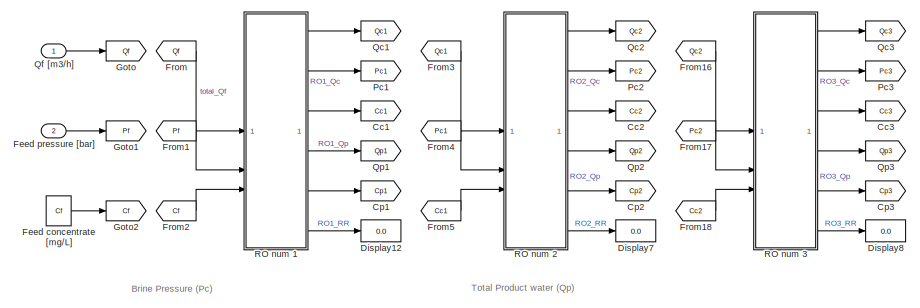
[diagram: RO/PV1 - part 1/3, top left region]
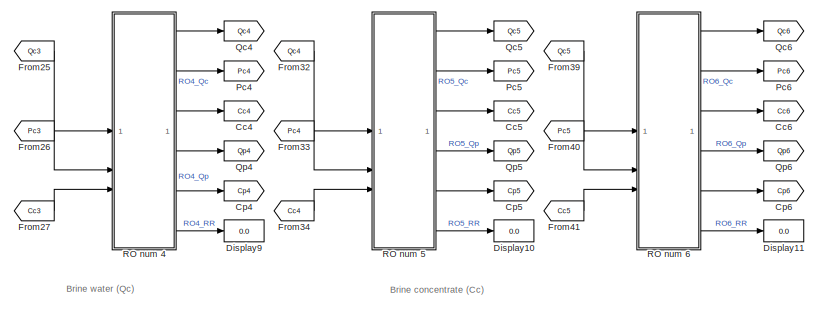
[diagram: RO/PV1 - part 2/3, top right region]
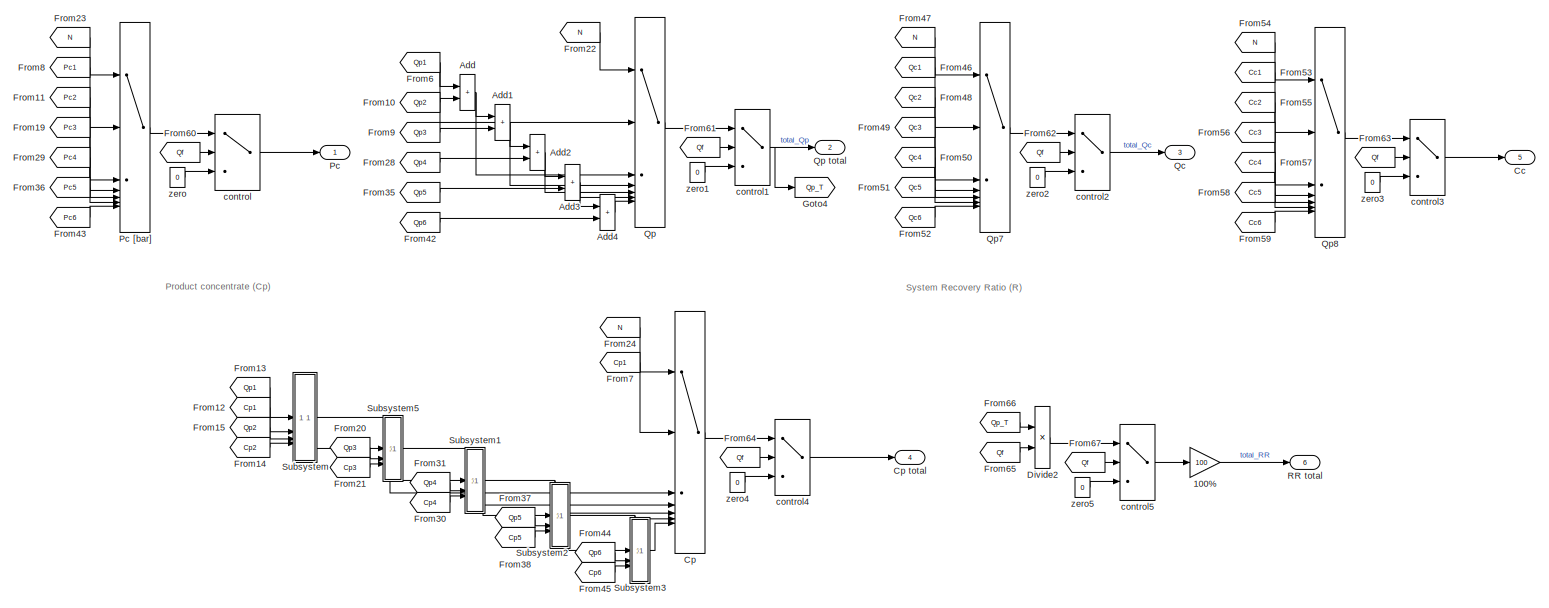
[diagram: RO/PV1 - part 3/3, full width, bottom band]
BLOCK [SubSystem] RO/PV1
  NameLocation = top
BLOCK [Gain] RO/PV1/100%
  Gain = 100
BLOCK [Sum] RO/PV1/Add
  IconShape = rectangular
BLOCK [Sum] RO/PV1/Add1
  IconShape = rectangular
BLOCK [Sum] RO/PV1/Add2
  IconShape = rectangular
BLOCK [Sum] RO/PV1/Add3
  IconShape = rectangular
BLOCK [Sum] RO/PV1/Add4
  IconShape = rectangular
BLOCK [Outport] RO/PV1/Cc
  Port = 5
BLOCK [Goto] RO/PV1/Cc1
  GotoTag = Cc1
BLOCK [Goto] RO/PV1/Cc2
  GotoTag = Cc2
BLOCK [Goto] RO/PV1/Cc3
  GotoTag = Cc3
BLOCK [Goto] RO/PV1/Cc4
  GotoTag = Cc4
BLOCK [Goto] RO/PV1/Cc5
  GotoTag = Cc5
BLOCK [Goto] RO/PV1/Cc6
  GotoTag = Cc6
BLOCK [MultiPortSwitch] RO/PV1/Cp
  InputSameDT = off
  Inputs = 6
  SaturateOnIntegerOverflow = off
BLOCK [Outport] RO/PV1/Cp total
  Port = 4
BLOCK [Goto] RO/PV1/Cp1
  GotoTag = Cp1
BLOCK [Goto] RO/PV1/Cp2
  GotoTag = Cp2
BLOCK [Goto] RO/PV1/Cp3
  GotoTag = Cp3
BLOCK [Goto] RO/PV1/Cp4
  GotoTag = Cp4
BLOCK [Goto] RO/PV1/Cp5
  GotoTag = Cp5
BLOCK [Goto] RO/PV1/Cp6
  GotoTag = Cp6
BLOCK [Display] RO/PV1/Display10
  Commented = on
  Decimation = 1
BLOCK [Display] RO/PV1/Display11
  Commented = on
  Decimation = 1
BLOCK [Display] RO/PV1/Display12
  Commented = on
  Decimation = 1
BLOCK [Display] RO/PV1/Display7
  Commented = on
  Decimation = 1
BLOCK [Display] RO/PV1/Display8
  Commented = on
  Decimation = 1
BLOCK [Display] RO/PV1/Display9
  Commented = on
  Decimation = 1
BLOCK [Product] RO/PV1/Divide2
  Inputs = */
BLOCK [Constant] RO/PV1/Feed concentrate [mg//L]
  Value = Cf
BLOCK [Inport] RO/PV1/Feed pressure [bar]
  Port = 2
BLOCK [From] RO/PV1/From
  GotoTag = Qf
BLOCK [From] RO/PV1/From1
  GotoTag = Pf
BLOCK [From] RO/PV1/From10
  GotoTag = Qp2
BLOCK [From] RO/PV1/From11
  GotoTag = Pc2
BLOCK [From] RO/PV1/From12
  GotoTag = Cp1
BLOCK [From] RO/PV1/From13
  GotoTag = Qp1
BLOCK [From] RO/PV1/From14
  GotoTag = Cp2
BLOCK [From] RO/PV1/From15
  GotoTag = Qp2
BLOCK [From] RO/PV1/From16
  GotoTag = Qc2
BLOCK [From] RO/PV1/From17
  GotoTag = Pc2
BLOCK [From] RO/PV1/From18
  GotoTag = Cc2
BLOCK [From] RO/PV1/From19
  GotoTag = Pc3
BLOCK [From] RO/PV1/From2
  GotoTag = Cf
BLOCK [From] RO/PV1/From20
  GotoTag = Qp3
BLOCK [From] RO/PV1/From21
  GotoTag = Cp3
BLOCK [From] RO/PV1/From22
  GotoTag = N
  TagVisibility = global
BLOCK [From] RO/PV1/From23
  GotoTag = N
  TagVisibility = global
BLOCK [From] RO/PV1/From24
  GotoTag = N
  TagVisibility = global
BLOCK [From] RO/PV1/From25
  GotoTag = Qc3
BLOCK [From] RO/PV1/From26
  GotoTag = Pc3
BLOCK [From] RO/PV1/From27
  GotoTag = Cc3
BLOCK [From] RO/PV1/From28
  GotoTag = Qp4
BLOCK [From] RO/PV1/From29
  GotoTag = Pc4
BLOCK [From] RO/PV1/From3
  GotoTag = Qc1
BLOCK [From] RO/PV1/From30
  GotoTag = Cp4
BLOCK [From] RO/PV1/From31
  GotoTag = Qp4
BLOCK [From] RO/PV1/From32
  GotoTag = Qc4
BLOCK [From] RO/PV1/From33
  GotoTag = Pc4
BLOCK [From] RO/PV1/From34
  GotoTag = Cc4
BLOCK [From] RO/PV1/From35
  GotoTag = Qp5
BLOCK [From] RO/PV1/From36
  GotoTag = Pc5
BLOCK [From] RO/PV1/From37
  GotoTag = Qp5
BLOCK [From] RO/PV1/From38
  GotoTag = Cp5
BLOCK [From] RO/PV1/From39
  GotoTag = Qc5
BLOCK [From] RO/PV1/From4
  GotoTag = Pc1
BLOCK [From] RO/PV1/From40
  GotoTag = Pc5
BLOCK [From] RO/PV1/From41
  GotoTag = Cc5
BLOCK [From] RO/PV1/From42
  GotoTag = Qp6
BLOCK [From] RO/PV1/From43
  GotoTag = Pc6
BLOCK [From] RO/PV1/From44
  GotoTag = Qp6
BLOCK [From] RO/PV1/From45
  GotoTag = Cp6
BLOCK [From] RO/PV1/From46
  GotoTag = Qc1
BLOCK [From] RO/PV1/From47
  GotoTag = N
  TagVisibility = global
BLOCK [From] RO/PV1/From48
  GotoTag = Qc2
BLOCK [From] RO/PV1/From49
  GotoTag = Qc3
BLOCK [From] RO/PV1/From5
  GotoTag = Cc1
BLOCK [From] RO/PV1/From50
  GotoTag = Qc4
BLOCK [From] RO/PV1/From51
  GotoTag = Qc5
BLOCK [From] RO/PV1/From52
  GotoTag = Qc6
BLOCK [From] RO/PV1/From53
  GotoTag = Cc1
BLOCK [From] RO/PV1/From54
  GotoTag = N
  TagVisibility = global
BLOCK [From] RO/PV1/From55
  GotoTag = Cc2
BLOCK [From] RO/PV1/From56
  GotoTag = Cc3
BLOCK [From] RO/PV1/From57
  GotoTag = Cc4
BLOCK [From] RO/PV1/From58
  GotoTag = Cc5
BLOCK [From] RO/PV1/From59
  GotoTag = Cc6
BLOCK [From] RO/PV1/From6
  GotoTag = Qp1
BLOCK [From] RO/PV1/From60
  GotoTag = Qf
BLOCK [From] RO/PV1/From61
  GotoTag = Qf
BLOCK [From] RO/PV1/From62
  GotoTag = Qf
BLOCK [From] RO/PV1/From63
  GotoTag = Qf
BLOCK [From] RO/PV1/From64
  GotoTag = Qf
BLOCK [From] RO/PV1/From65
  GotoTag = Qf
BLOCK [From] RO/PV1/From66
  GotoTag = Qp_T
BLOCK [From] RO/PV1/From67
  GotoTag = Qf
BLOCK [From] RO/PV1/From7
  GotoTag = Cp1
BLOCK [From] RO/PV1/From8
  GotoTag = Pc1
BLOCK [From] RO/PV1/From9
  GotoTag = Qp3
BLOCK [Goto] RO/PV1/Goto
  GotoTag = Qf
BLOCK [Goto] RO/PV1/Goto1
  GotoTag = Pf
BLOCK [Goto] RO/PV1/Goto2
  GotoTag = Cf
BLOCK [Goto] RO/PV1/Goto4
  GotoTag = Qp_T
BLOCK [Outport] RO/PV1/Pc
BLOCK [MultiPortSwitch] RO/PV1/Pc [bar]
  InputSameDT = off
  Inputs = 6
  SaturateOnIntegerOverflow = off
BLOCK [Goto] RO/PV1/Pc1
  GotoTag = Pc1
BLOCK [Goto] RO/PV1/Pc2
  GotoTag = Pc2
BLOCK [Goto] RO/PV1/Pc3
  GotoTag = Pc3
BLOCK [Goto] RO/PV1/Pc4
  GotoTag = Pc4
BLOCK [Goto] RO/PV1/Pc5
  GotoTag = Pc5
BLOCK [Goto] RO/PV1/Pc6
  GotoTag = Pc6
BLOCK [Outport] RO/PV1/Qc
  Port = 3
BLOCK [Goto] RO/PV1/Qc1
  GotoTag = Qc1
BLOCK [Goto] RO/PV1/Qc2
  GotoTag = Qc2
BLOCK [Goto] RO/PV1/Qc3
  GotoTag = Qc3
BLOCK [Goto] RO/PV1/Qc4
  GotoTag = Qc4
BLOCK [Goto] RO/PV1/Qc5
  GotoTag = Qc5
BLOCK [Goto] RO/PV1/Qc6
  GotoTag = Qc6
BLOCK [Inport] RO/PV1/Qf [m3//h]
BLOCK [MultiPortSwitch] RO/PV1/Qp
  InputSameDT = off
  Inputs = 6
  SaturateOnIntegerOverflow = off
BLOCK [Outport] RO/PV1/Qp total
  Port = 2
BLOCK [Goto] RO/PV1/Qp1
  GotoTag = Qp1
BLOCK [Goto] RO/PV1/Qp2
  GotoTag = Qp2
BLOCK [Goto] RO/PV1/Qp3
  GotoTag = Qp3
BLOCK [Goto] RO/PV1/Qp4
  GotoTag = Qp4
BLOCK [Goto] RO/PV1/Qp5
  GotoTag = Qp5
BLOCK [Goto] RO/PV1/Qp6
  GotoTag = Qp6
BLOCK [MultiPortSwitch] RO/PV1/Qp7
  InputSameDT = off
  Inputs = 6
  SaturateOnIntegerOverflow = off
BLOCK [MultiPortSwitch] RO/PV1/Qp8
  InputSameDT = off
  Inputs = 6
  SaturateOnIntegerOverflow = off
BLOCK [SubSystem] RO/PV1/RO num 1
BLOCK [Reference] RO/PV1/RO num 1/(Pc) RegressionNeuralNetwork Predict  REF=statsLibrary/Regression/RegressionNeuralNetwork Predict
  SourceBlock = statsLibrary/Regression/RegressionNeuralNetwork Predict
  SourceType = RegressionNeuralNetwork Predict
BLOCK [Reference] RO/PV1/RO num 1/(Qp) RegressionGP Predict  REF=statsLibrary/Regression/RegressionGP Predict
  SourceBlock = statsLibrary/Regression/RegressionGP Predict
  SourceType = RegressionGP Predict
BLOCK [Reference] RO/PV1/RO num 1/(TDSp) RegressionNeuralNetwork Predict  REF=statsLibrary/Regression/RegressionNeuralNetwork Predict
  SourceBlock = statsLibrary/Regression/RegressionNeuralNetwork Predict
  SourceType = RegressionNeuralNetwork Predict
BLOCK [Gain] RO/PV1/RO num 1/100%
  Gain = 100
BLOCK [Product] RO/PV1/RO num 1/Divide
  Inputs = /*
BLOCK [From] RO/PV1/RO num 1/From11
  GotoTag = TDSf
BLOCK [From] RO/PV1/RO num 1/From13
  GotoTag = Qf
BLOCK [From] RO/PV1/RO num 1/From14
  GotoTag = Qf
BLOCK [From] RO/PV1/RO num 1/From15
  GotoTag = Qp
BLOCK [From] RO/PV1/RO num 1/From16
  GotoTag = TDSp
BLOCK [From] RO/PV1/RO num 1/From5
  GotoTag = Qp
BLOCK [From] RO/PV1/RO num 1/From6
  GotoTag = Qp
BLOCK [From] RO/PV1/RO num 1/From7
  GotoTag = Qf
BLOCK [Goto] RO/PV1/RO num 1/Goto1
  GotoTag = Qf
BLOCK [Goto] RO/PV1/RO num 1/Goto6
  GotoTag = TDSf
BLOCK [Goto] RO/PV1/RO num 1/Goto7
  GotoTag = Qp
BLOCK [Goto] RO/PV1/RO num 1/Goto8
  GotoTag = TDSp
BLOCK [Mux] RO/PV1/RO num 1/Mux
  DisplayOption = bar
  Inputs = 3
BLOCK [Outport] RO/PV1/RO num 1/Pc [bar]
  Port = 2
BLOCK [Inport] RO/PV1/RO num 1/Pf [bar]
  Port = 2
BLOCK [Outport] RO/PV1/RO num 1/Qc [m3//h]
BLOCK [Inport] RO/PV1/RO num 1/Qf [m3//h]
BLOCK [Product] RO/PV1/RO num 1/Qf*TDSf
BLOCK [Outport] RO/PV1/RO num 1/Qp [m3//h]
  Port = 4
BLOCK [Product] RO/PV1/RO num 1/Qp*TDSp
BLOCK [Outport] RO/PV1/RO num 1/R [%]
  Port = 6
BLOCK [Sum] RO/PV1/RO num 1/Sum
  IconShape = rectangular
  Inputs = +-
BLOCK [Outport] RO/PV1/RO num 1/TDSc [mg//L]
  Port = 3
BLOCK [Inport] RO/PV1/RO num 1/TDSf [mg//L]
  Port = 3
BLOCK [Outport] RO/PV1/RO num 1/TDSp [mg//L]
  Port = 5
BLOCK [Sum] RO/PV1/RO num 1/add2
  IconShape = rectangular
  Inputs = +-
BLOCK [Product] RO/PV1/RO num 1/di2
  Inputs = /*
BLOCK [SubSystem] RO/PV1/RO num 2
BLOCK [Gain] RO/PV1/RO num 2/100%
  Gain = 100
BLOCK [Outport] RO/PV1/RO num 2/Cc
  Port = 3
BLOCK [Display] RO/PV1/RO num 2/Cc [mg//L]
  Commented = on
  Decimation = 1
  Format = bank
BLOCK [Inport] RO/PV1/RO num 2/Cf [mg//L]
  Port = 3
BLOCK [Outport] RO/PV1/RO num 2/Cp
  Port = 5
BLOCK [Reference] RO/PV1/RO num 2/Cp RegressionNeuralNetwork Predict  REF=statsLibrary/Regression/RegressionNeuralNetwork Predict
  SourceBlock = statsLibrary/Regression/RegressionNeuralNetwork Predict
  SourceType = RegressionNeuralNetwork Predict
BLOCK [Display] RO/PV1/RO num 2/Cp [mg//L]
  Commented = on
  Decimation = 1
BLOCK [Product] RO/PV1/RO num 2/Divide
  Inputs = /*
BLOCK [From] RO/PV1/RO num 2/From11
  GotoTag = Cf
BLOCK [From] RO/PV1/RO num 2/From13
  GotoTag = Qf
BLOCK [From] RO/PV1/RO num 2/From14
  GotoTag = Qf
BLOCK [From] RO/PV1/RO num 2/From15
  GotoTag = Qp
BLOCK [From] RO/PV1/RO num 2/From16
  GotoTag = Cp
BLOCK [From] RO/PV1/RO num 2/From5
  GotoTag = Qp
BLOCK [From] RO/PV1/RO num 2/From6
  GotoTag = Qp
BLOCK [From] RO/PV1/RO num 2/From7
  GotoTag = Qf
BLOCK [Goto] RO/PV1/RO num 2/Goto1
  GotoTag = Qf
BLOCK [Goto] RO/PV1/RO num 2/Goto6
  GotoTag = Cf
BLOCK [Goto] RO/PV1/RO num 2/Goto7
  GotoTag = Qp
BLOCK [Goto] RO/PV1/RO num 2/Goto8
  GotoTag = Cp
BLOCK [Mux] RO/PV1/RO num 2/Mux
  DisplayOption = bar
  Inputs = 3
BLOCK [Outport] RO/PV1/RO num 2/Pc
  Port = 2
BLOCK [Reference] RO/PV1/RO num 2/Pc RegressionNeuralNetwork Predict  REF=statsLibrary/Regression/RegressionNeuralNetwork Predict
  SourceBlock = statsLibrary/Regression/RegressionNeuralNetwork Predict
  SourceType = RegressionNeuralNetwork Predict
BLOCK [Display] RO/PV1/RO num 2/Pc [bar]
  Commented = on
  Decimation = 1
BLOCK [Inport] RO/PV1/RO num 2/Pf [bar]
  Port = 2
BLOCK [Outport] RO/PV1/RO num 2/Qc
BLOCK [Display] RO/PV1/RO num 2/Qc [m3//h]
  Commented = on
  Decimation = 1
BLOCK [Inport] RO/PV1/RO num 2/Qf [m3//h]
BLOCK [Product] RO/PV1/RO num 2/Qf*Cf
BLOCK [Outport] RO/PV1/RO num 2/Qp
  Port = 4
BLOCK [Reference] RO/PV1/RO num 2/Qp RegressionGP Predict  REF=statsLibrary/Regression/RegressionGP Predict
  SourceBlock = statsLibrary/Regression/RegressionGP Predict
  SourceType = RegressionGP Predict
BLOCK [Display] RO/PV1/RO num 2/Qp [m3//h]
  Commented = on
  Decimation = 1
BLOCK [Product] RO/PV1/RO num 2/Qp*Cp
BLOCK [Display] RO/PV1/RO num 2/R
  Commented = on
  Decimation = 1
BLOCK [Outport] RO/PV1/RO num 2/R [%]
  Port = 6
BLOCK [Sum] RO/PV1/RO num 2/Sum
  IconShape = rectangular
  Inputs = +-
BLOCK [Sum] RO/PV1/RO num 2/add2
  IconShape = rectangular
  Inputs = +-
BLOCK [Product] RO/PV1/RO num 2/di2
  Inputs = /*
BLOCK [SubSystem] RO/PV1/RO num 3
BLOCK [Gain] RO/PV1/RO num 3/100%
  Gain = 100
BLOCK [Outport] RO/PV1/RO num 3/Cc
  Port = 3
BLOCK [Display] RO/PV1/RO num 3/Cc [mg//L]
  Commented = on
  Decimation = 1
  Format = bank
BLOCK [Inport] RO/PV1/RO num 3/Cf [mg//L]
  Port = 3
BLOCK [Outport] RO/PV1/RO num 3/Cp
  Port = 5
BLOCK [Reference] RO/PV1/RO num 3/Cp RegressionNeuralNetwork Predict  REF=statsLibrary/Regression/RegressionNeuralNetwork Predict
  SourceBlock = statsLibrary/Regression/RegressionNeuralNetwork Predict
  SourceType = RegressionNeuralNetwork Predict
BLOCK [Display] RO/PV1/RO num 3/Cp [mg//L]
  Commented = on
  Decimation = 1
BLOCK [Product] RO/PV1/RO num 3/Divide
  Inputs = /*
BLOCK [From] RO/PV1/RO num 3/From11
  GotoTag = Cf
BLOCK [From] RO/PV1/RO num 3/From13
  GotoTag = Qf
BLOCK [From] RO/PV1/RO num 3/From14
  GotoTag = Qf
BLOCK [From] RO/PV1/RO num 3/From15
  GotoTag = Qp
BLOCK [From] RO/PV1/RO num 3/From16
  GotoTag = Cp
BLOCK [From] RO/PV1/RO num 3/From5
  GotoTag = Qp
BLOCK [From] RO/PV1/RO num 3/From6
  GotoTag = Qp
BLOCK [From] RO/PV1/RO num 3/From7
  GotoTag = Qf
BLOCK [Goto] RO/PV1/RO num 3/Goto1
  GotoTag = Qf
BLOCK [Goto] RO/PV1/RO num 3/Goto6
  GotoTag = Cf
BLOCK [Goto] RO/PV1/RO num 3/Goto7
  GotoTag = Qp
BLOCK [Goto] RO/PV1/RO num 3/Goto8
  GotoTag = Cp
BLOCK [Mux] RO/PV1/RO num 3/Mux
  DisplayOption = bar
  Inputs = 3
BLOCK [Outport] RO/PV1/RO num 3/Pc
  Port = 2
BLOCK [Reference] RO/PV1/RO num 3/Pc RegressionNeuralNetwork Predict  REF=statsLibrary/Regression/RegressionNeuralNetwork Predict
  SourceBlock = statsLibrary/Regression/RegressionNeuralNetwork Predict
  SourceType = RegressionNeuralNetwork Predict
BLOCK [Display] RO/PV1/RO num 3/Pc [bar]
  Commented = on
  Decimation = 1
BLOCK [Inport] RO/PV1/RO num 3/Pf [bar]
  Port = 2
BLOCK [Outport] RO/PV1/RO num 3/Qc
BLOCK [Display] RO/PV1/RO num 3/Qc [m3//h]
  Commented = on
  Decimation = 1
BLOCK [Inport] RO/PV1/RO num 3/Qf [m3//h]
BLOCK [Product] RO/PV1/RO num 3/Qf*Cf
BLOCK [Outport] RO/PV1/RO num 3/Qp
  Port = 4
BLOCK [Reference] RO/PV1/RO num 3/Qp RegressionGP Predict  REF=statsLibrary/Regression/RegressionGP Predict
  SourceBlock = statsLibrary/Regression/RegressionGP Predict
  SourceType = RegressionGP Predict
BLOCK [Display] RO/PV1/RO num 3/Qp [m3//h]
  Commented = on
  Decimation = 1
BLOCK [Product] RO/PV1/RO num 3/Qp*Cp
BLOCK [Display] RO/PV1/RO num 3/R
  Commented = on
  Decimation = 1
BLOCK [Outport] RO/PV1/RO num 3/R [%]
  Port = 6
BLOCK [Sum] RO/PV1/RO num 3/Sum
  IconShape = rectangular
  Inputs = +-
BLOCK [Sum] RO/PV1/RO num 3/add2
  IconShape = rectangular
  Inputs = +-
BLOCK [Product] RO/PV1/RO num 3/di2
  Inputs = /*
BLOCK [SubSystem] RO/PV1/RO num 4
BLOCK [Gain] RO/PV1/RO num 4/100%
  Gain = 100
BLOCK [Outport] RO/PV1/RO num 4/Cc
  Port = 3
BLOCK [Display] RO/PV1/RO num 4/Cc [mg//L]
  Commented = on
  Decimation = 1
  Format = bank
BLOCK [Inport] RO/PV1/RO num 4/Cf [mg//L]
  Port = 3
BLOCK [Outport] RO/PV1/RO num 4/Cp
  Port = 5
BLOCK [Reference] RO/PV1/RO num 4/Cp RegressionNeuralNetwork Predict  REF=statsLibrary/Regression/RegressionNeuralNetwork Predict
  SourceBlock = statsLibrary/Regression/RegressionNeuralNetwork Predict
  SourceType = RegressionNeuralNetwork Predict
BLOCK [Display] RO/PV1/RO num 4/Cp [mg//L]
  Commented = on
  Decimation = 1
BLOCK [Product] RO/PV1/RO num 4/Divide
  Inputs = /*
BLOCK [From] RO/PV1/RO num 4/From11
  GotoTag = Cf
BLOCK [From] RO/PV1/RO num 4/From13
  GotoTag = Qf
BLOCK [From] RO/PV1/RO num 4/From14
  GotoTag = Qf
BLOCK [From] RO/PV1/RO num 4/From15
  GotoTag = Qp
BLOCK [From] RO/PV1/RO num 4/From16
  GotoTag = Cp
BLOCK [From] RO/PV1/RO num 4/From5
  GotoTag = Qp
BLOCK [From] RO/PV1/RO num 4/From6
  GotoTag = Qp
BLOCK [From] RO/PV1/RO num 4/From7
  GotoTag = Qf
BLOCK [Goto] RO/PV1/RO num 4/Goto1
  GotoTag = Qf
BLOCK [Goto] RO/PV1/RO num 4/Goto6
  GotoTag = Cf
BLOCK [Goto] RO/PV1/RO num 4/Goto7
  GotoTag = Qp
BLOCK [Goto] RO/PV1/RO num 4/Goto8
  GotoTag = Cp
BLOCK [Mux] RO/PV1/RO num 4/Mux
  DisplayOption = bar
  Inputs = 3
BLOCK [Outport] RO/PV1/RO num 4/Pc
  Port = 2
BLOCK [Reference] RO/PV1/RO num 4/Pc RegressionNeuralNetwork Predict  REF=statsLibrary/Regression/RegressionNeuralNetwork Predict
  SourceBlock = statsLibrary/Regression/RegressionNeuralNetwork Predict
  SourceType = RegressionNeuralNetwork Predict
BLOCK [Display] RO/PV1/RO num 4/Pc [bar]
  Commented = on
  Decimation = 1
BLOCK [Inport] RO/PV1/RO num 4/Pf [bar]
  Port = 2
BLOCK [Outport] RO/PV1/RO num 4/Qc
BLOCK [Display] RO/PV1/RO num 4/Qc [m3//h]
  Commented = on
  Decimation = 1
BLOCK [Inport] RO/PV1/RO num 4/Qf [m3//h]
BLOCK [Display] RO/PV1/RO num 4/Qf [m3//h]1
  Commented = on
  Decimation = 1
BLOCK [Product] RO/PV1/RO num 4/Qf*Cf
BLOCK [Outport] RO/PV1/RO num 4/Qp
  Port = 4
BLOCK [Reference] RO/PV1/RO num 4/Qp RegressionGP Predict  REF=statsLibrary/Regression/RegressionGP Predict
  SourceBlock = statsLibrary/Regression/RegressionGP Predict
  SourceType = RegressionGP Predict
BLOCK [Display] RO/PV1/RO num 4/Qp [m3//h]
  Commented = on
  Decimation = 1
BLOCK [Product] RO/PV1/RO num 4/Qp*Cp
BLOCK [Display] RO/PV1/RO num 4/R
  Commented = on
  Decimation = 1
BLOCK [Outport] RO/PV1/RO num 4/R [%]
  Port = 6
BLOCK [Sum] RO/PV1/RO num 4/Sum
  IconShape = rectangular
  Inputs = +-
BLOCK [Sum] RO/PV1/RO num 4/add2
  IconShape = rectangular
  Inputs = +-
BLOCK [Product] RO/PV1/RO num 4/di2
  Inputs = /*
BLOCK [SubSystem] RO/PV1/RO num 5
BLOCK [Gain] RO/PV1/RO num 5/100%
  Gain = 100
BLOCK [Outport] RO/PV1/RO num 5/Cc
  Port = 3
BLOCK [Display] RO/PV1/RO num 5/Cc [mg//L]
  Commented = on
  Decimation = 1
  Format = bank
BLOCK [Inport] RO/PV1/RO num 5/Cf [mg//L]
  Port = 3
BLOCK [Outport] RO/PV1/RO num 5/Cp
  Port = 5
BLOCK [Reference] RO/PV1/RO num 5/Cp RegressionNeuralNetwork Predict  REF=statsLibrary/Regression/RegressionNeuralNetwork Predict
  SourceBlock = statsLibrary/Regression/RegressionNeuralNetwork Predict
  SourceType = RegressionNeuralNetwork Predict
BLOCK [Display] RO/PV1/RO num 5/Cp [mg//L]
  Commented = on
  Decimation = 1
BLOCK [Product] RO/PV1/RO num 5/Divide
  Inputs = /*
BLOCK [From] RO/PV1/RO num 5/From11
  GotoTag = Cf
BLOCK [From] RO/PV1/RO num 5/From13
  GotoTag = Qf
BLOCK [From] RO/PV1/RO num 5/From14
  GotoTag = Qf
BLOCK [From] RO/PV1/RO num 5/From15
  GotoTag = Qp
BLOCK [From] RO/PV1/RO num 5/From16
  GotoTag = Cp
BLOCK [From] RO/PV1/RO num 5/From5
  GotoTag = Qp
BLOCK [From] RO/PV1/RO num 5/From6
  GotoTag = Qp
BLOCK [From] RO/PV1/RO num 5/From7
  GotoTag = Qf
BLOCK [Goto] RO/PV1/RO num 5/Goto1
  GotoTag = Qf
BLOCK [Goto] RO/PV1/RO num 5/Goto6
  GotoTag = Cf
BLOCK [Goto] RO/PV1/RO num 5/Goto7
  GotoTag = Qp
BLOCK [Goto] RO/PV1/RO num 5/Goto8
  GotoTag = Cp
BLOCK [Mux] RO/PV1/RO num 5/Mux
  DisplayOption = bar
  Inputs = 3
BLOCK [Outport] RO/PV1/RO num 5/Pc
  Port = 2
BLOCK [Reference] RO/PV1/RO num 5/Pc RegressionNeuralNetwork Predict  REF=statsLibrary/Regression/RegressionNeuralNetwork Predict
  SourceBlock = statsLibrary/Regression/RegressionNeuralNetwork Predict
  SourceType = RegressionNeuralNetwork Predict
BLOCK [Display] RO/PV1/RO num 5/Pc [bar]
  Commented = on
  Decimation = 1
BLOCK [Inport] RO/PV1/RO num 5/Pf [bar]
  Port = 2
BLOCK [Outport] RO/PV1/RO num 5/Qc
BLOCK [Display] RO/PV1/RO num 5/Qc [m3//h]
  Commented = on
  Decimation = 1
BLOCK [Inport] RO/PV1/RO num 5/Qf [m3//h]
BLOCK [Display] RO/PV1/RO num 5/Qf [m3//h]1
  Commented = on
  Decimation = 1
BLOCK [Product] RO/PV1/RO num 5/Qf*Cf
BLOCK [Outport] RO/PV1/RO num 5/Qp
  Port = 4
BLOCK [Reference] RO/PV1/RO num 5/Qp RegressionGP Predict  REF=statsLibrary/Regression/RegressionGP Predict
  SourceBlock = statsLibrary/Regression/RegressionGP Predict
  SourceType = RegressionGP Predict
BLOCK [Display] RO/PV1/RO num 5/Qp [m3//h]
  Commented = on
  Decimation = 1
BLOCK [Product] RO/PV1/RO num 5/Qp*Cp
BLOCK [Display] RO/PV1/RO num 5/R
  Commented = on
  Decimation = 1
BLOCK [Outport] RO/PV1/RO num 5/R [%]
  Port = 6
BLOCK [Sum] RO/PV1/RO num 5/Sum
  IconShape = rectangular
  Inputs = +-
BLOCK [Sum] RO/PV1/RO num 5/add2
  IconShape = rectangular
  Inputs = +-
BLOCK [Product] RO/PV1/RO num 5/di2
  Inputs = /*
BLOCK [SubSystem] RO/PV1/RO num 6
BLOCK [Gain] RO/PV1/RO num 6/100%
  Gain = 100
BLOCK [Outport] RO/PV1/RO num 6/Cc
  Port = 3
BLOCK [Display] RO/PV1/RO num 6/Cc [mg//L]
  Commented = on
  Decimation = 1
  Format = bank
BLOCK [Inport] RO/PV1/RO num 6/Cf [mg//L]
  Port = 3
BLOCK [Outport] RO/PV1/RO num 6/Cp
  Port = 5
BLOCK [Reference] RO/PV1/RO num 6/Cp RegressionNeuralNetwork Predict  REF=statsLibrary/Regression/RegressionNeuralNetwork Predict
  SourceBlock = statsLibrary/Regression/RegressionNeuralNetwork Predict
  SourceType = RegressionNeuralNetwork Predict
BLOCK [Display] RO/PV1/RO num 6/Cp [mg//L]
  Commented = on
  Decimation = 1
BLOCK [Product] RO/PV1/RO num 6/Divide
  Inputs = /*
BLOCK [From] RO/PV1/RO num 6/From11
  GotoTag = Cf
BLOCK [From] RO/PV1/RO num 6/From13
  GotoTag = Qf
BLOCK [From] RO/PV1/RO num 6/From14
  GotoTag = Qf
BLOCK [From] RO/PV1/RO num 6/From15
  GotoTag = Qp
BLOCK [From] RO/PV1/RO num 6/From16
  GotoTag = Cp
BLOCK [From] RO/PV1/RO num 6/From5
  GotoTag = Qp
BLOCK [From] RO/PV1/RO num 6/From6
  GotoTag = Qp
BLOCK [From] RO/PV1/RO num 6/From7
  GotoTag = Qf
BLOCK [Goto] RO/PV1/RO num 6/Goto1
  GotoTag = Qf
BLOCK [Goto] RO/PV1/RO num 6/Goto6
  GotoTag = Cf
BLOCK [Goto] RO/PV1/RO num 6/Goto7
  GotoTag = Qp
BLOCK [Goto] RO/PV1/RO num 6/Goto8
  GotoTag = Cp
BLOCK [Mux] RO/PV1/RO num 6/Mux
  DisplayOption = bar
  Inputs = 3
BLOCK [Outport] RO/PV1/RO num 6/Pc
  Port = 2
BLOCK [Reference] RO/PV1/RO num 6/Pc RegressionNeuralNetwork Predict  REF=statsLibrary/Regression/RegressionNeuralNetwork Predict
  SourceBlock = statsLibrary/Regression/RegressionNeuralNetwork Predict
  SourceType = RegressionNeuralNetwork Predict
BLOCK [Display] RO/PV1/RO num 6/Pc [bar]
  Commented = on
  Decimation = 1
BLOCK [Inport] RO/PV1/RO num 6/Pf [bar]
  Port = 2
BLOCK [Outport] RO/PV1/RO num 6/Qc
BLOCK [Display] RO/PV1/RO num 6/Qc [m3//h]
  Commented = on
  Decimation = 1
BLOCK [Inport] RO/PV1/RO num 6/Qf [m3//h]
BLOCK [Product] RO/PV1/RO num 6/Qf*Cf
BLOCK [Outport] RO/PV1/RO num 6/Qp
  Port = 4
BLOCK [Reference] RO/PV1/RO num 6/Qp RegressionGP Predict  REF=statsLibrary/Regression/RegressionGP Predict
  SourceBlock = statsLibrary/Regression/RegressionGP Predict
  SourceType = RegressionGP Predict
BLOCK [Display] RO/PV1/RO num 6/Qp [m3//h]
  Commented = on
  Decimation = 1
BLOCK [Product] RO/PV1/RO num 6/Qp*Cp
BLOCK [Display] RO/PV1/RO num 6/R
  Commented = on
  Decimation = 1
BLOCK [Outport] RO/PV1/RO num 6/R [%]
  Port = 6
BLOCK [Sum] RO/PV1/RO num 6/Sum
  IconShape = rectangular
  Inputs = +-
BLOCK [Sum] RO/PV1/RO num 6/add2
  IconShape = rectangular
  Inputs = +-
BLOCK [Product] RO/PV1/RO num 6/di2
  Inputs = /*
BLOCK [Outport] RO/PV1/RR total
  Port = 6
BLOCK [SubSystem] RO/PV1/Subsystem
BLOCK [Sum] RO/PV1/Subsystem/Add1
  IconShape = rectangular
BLOCK [Inport] RO/PV1/Subsystem/In1
BLOCK [Inport] RO/PV1/Subsystem/In2
  Port = 2
BLOCK [Inport] RO/PV1/Subsystem/In3
  Port = 3
BLOCK [Inport] RO/PV1/Subsystem/In4
  Port = 4
BLOCK [Outport] RO/PV1/Subsystem/Out1
BLOCK [Outport] RO/PV1/Subsystem/Out2
  Port = 2
BLOCK [Product] RO/PV1/Subsystem/Q1*C1
BLOCK [Product] RO/PV1/Subsystem/Q2*C2
BLOCK [Sum] RO/PV1/Subsystem/add2
  IconShape = rectangular
BLOCK [Product] RO/PV1/Subsystem/di2
  Inputs = /*
BLOCK [SubSystem] RO/PV1/Subsystem1
  PortSchema = {"entries":[{"content":{"sides":[{"content":{"connectorIds":["In1","In2","In3"]},"type":"ConnectorPlacement.EquallySpacedRectSide","uuid":"d5ba013f-6078-4f30-8328-72ed2cb8129b"},{"content":{"connectorIds":["Out1","Out2"],"side":"RIGHT"},"type":"ConnectorPlacement.EquallySpacedRectSide","uuid":"ed7cb065-416c-47c0-a617-1717dea4ab53"},{"content":{"connectorIds":["In4"],"side":"TOP"},"type":"Connector...<+264ch>  <repeated x6 — deduplicated; at blocks: Subsystem1, Subsystem2, Subsystem5>
BLOCK [Sum] RO/PV1/Subsystem1/Add2
  IconShape = rectangular
BLOCK [Inport] RO/PV1/Subsystem1/In1
  Port = 4
BLOCK [Inport] RO/PV1/Subsystem1/In2
BLOCK [Inport] RO/PV1/Subsystem1/In3
  Port = 2
BLOCK [Inport] RO/PV1/Subsystem1/In4
  Port = 3
BLOCK [Outport] RO/PV1/Subsystem1/Out1
BLOCK [Outport] RO/PV1/Subsystem1/Out2
  Port = 2
BLOCK [Product] RO/PV1/Subsystem1/Q1*C1
BLOCK [Product] RO/PV1/Subsystem1/Q2*C2
BLOCK [Sum] RO/PV1/Subsystem1/add2
  IconShape = rectangular
BLOCK [Product] RO/PV1/Subsystem1/di2
  Inputs = /*
BLOCK [SubSystem] RO/PV1/Subsystem2
BLOCK [Sum] RO/PV1/Subsystem2/Add2
  IconShape = rectangular
BLOCK [Inport] RO/PV1/Subsystem2/In1
  Port = 4
BLOCK [Inport] RO/PV1/Subsystem2/In2
BLOCK [Inport] RO/PV1/Subsystem2/In3
  Port = 2
BLOCK [Inport] RO/PV1/Subsystem2/In4
  Port = 3
BLOCK [Outport] RO/PV1/Subsystem2/Out1
BLOCK [Outport] RO/PV1/Subsystem2/Out2
  Port = 2
BLOCK [Product] RO/PV1/Subsystem2/Q1*C1
BLOCK [Product] RO/PV1/Subsystem2/Q2*C2
BLOCK [Sum] RO/PV1/Subsystem2/add2
  IconShape = rectangular
BLOCK [Product] RO/PV1/Subsystem2/di2
  Inputs = /*
BLOCK [SubSystem] RO/PV1/Subsystem3
  PortSchema = {"entries":[{"content":{"sides":[{"content":{"connectorIds":["In1","In2","In3"]},"type":"ConnectorPlacement.EquallySpacedRectSide","uuid":"d5ba013f-6078-4f30-8328-72ed2cb8129b"},{"content":{"connectorIds":["Out1"],"side":"RIGHT"},"type":"ConnectorPlacement.EquallySpacedRectSide","uuid":"ed7cb065-416c-47c0-a617-1717dea4ab53"},{"content":{"connectorIds":["In4"],"side":"TOP"},"type":"ConnectorPlaceme...<+257ch>
BLOCK [Sum] RO/PV1/Subsystem3/Add2
  IconShape = rectangular
BLOCK [Inport] RO/PV1/Subsystem3/In1
  Port = 4
BLOCK [Inport] RO/PV1/Subsystem3/In2
BLOCK [Inport] RO/PV1/Subsystem3/In3
  Port = 2
BLOCK [Inport] RO/PV1/Subsystem3/In4
  Port = 3
BLOCK [Outport] RO/PV1/Subsystem3/Out1
BLOCK [Product] RO/PV1/Subsystem3/Q1*C1
BLOCK [Product] RO/PV1/Subsystem3/Q2*C2
BLOCK [Sum] RO/PV1/Subsystem3/add2
  IconShape = rectangular
BLOCK [Product] RO/PV1/Subsystem3/di2
  Inputs = /*
BLOCK [SubSystem] RO/PV1/Subsystem5
BLOCK [Sum] RO/PV1/Subsystem5/Add2
  IconShape = rectangular
BLOCK [Inport] RO/PV1/Subsystem5/In1
  Port = 4
BLOCK [Inport] RO/PV1/Subsystem5/In2
BLOCK [Inport] RO/PV1/Subsystem5/In3
  Port = 2
BLOCK [Inport] RO/PV1/Subsystem5/In4
  Port = 3
BLOCK [Outport] RO/PV1/Subsystem5/Out1
BLOCK [Outport] RO/PV1/Subsystem5/Out2
  Port = 2
BLOCK [Product] RO/PV1/Subsystem5/Q1*C1
BLOCK [Product] RO/PV1/Subsystem5/Q2*C2
BLOCK [Sum] RO/PV1/Subsystem5/add2
  IconShape = rectangular
BLOCK [Product] RO/PV1/Subsystem5/di2
  Inputs = /*
BLOCK [Switch] RO/PV1/control
  Criteria = u2 > Threshold
  InputSameDT = off
  SaturateOnIntegerOverflow = off
  ZeroCross = off
BLOCK [Switch] RO/PV1/control1
  Criteria = u2 > Threshold
  InputSameDT = off
  SaturateOnIntegerOverflow = off
  ZeroCross = off
BLOCK [Switch] RO/PV1/control2
  Criteria = u2 > Threshold
  InputSameDT = off
  SaturateOnIntegerOverflow = off
  ZeroCross = off
BLOCK [Switch] RO/PV1/control3
  Criteria = u2 > Threshold
  InputSameDT = off
  SaturateOnIntegerOverflow = off
  ZeroCross = off
BLOCK [Switch] RO/PV1/control4
  Criteria = u2 > Threshold
  InputSameDT = off
  SaturateOnIntegerOverflow = off
  ZeroCross = off
BLOCK [Switch] RO/PV1/control5
  Criteria = u2 > Threshold
  InputSameDT = off
  SaturateOnIntegerOverflow = off
  ZeroCross = off
BLOCK [Constant] RO/PV1/zero
  Value = 0
BLOCK [Constant] RO/PV1/zero1
  Value = 0
BLOCK [Constant] RO/PV1/zero2
  Value = 0
BLOCK [Constant] RO/PV1/zero3
  Value = 0
BLOCK [Constant] RO/PV1/zero4
  Value = 0
BLOCK [Constant] RO/PV1/zero5
  Value = 0
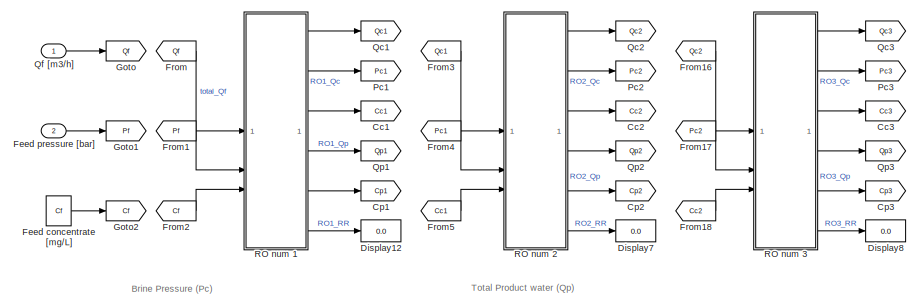
[diagram: RO/PV2 - part 1/3, top left region]
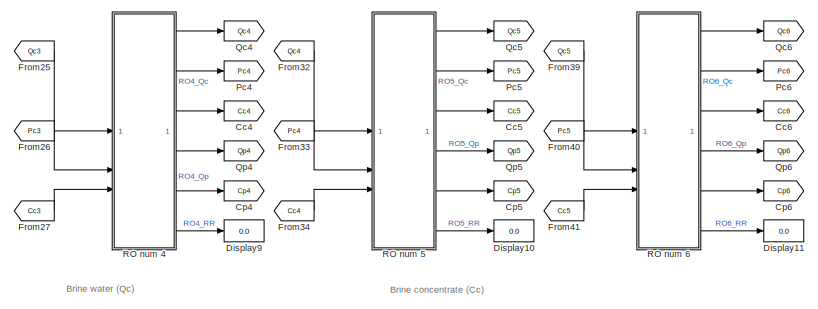
[diagram: RO/PV2 - part 2/3, top right region]
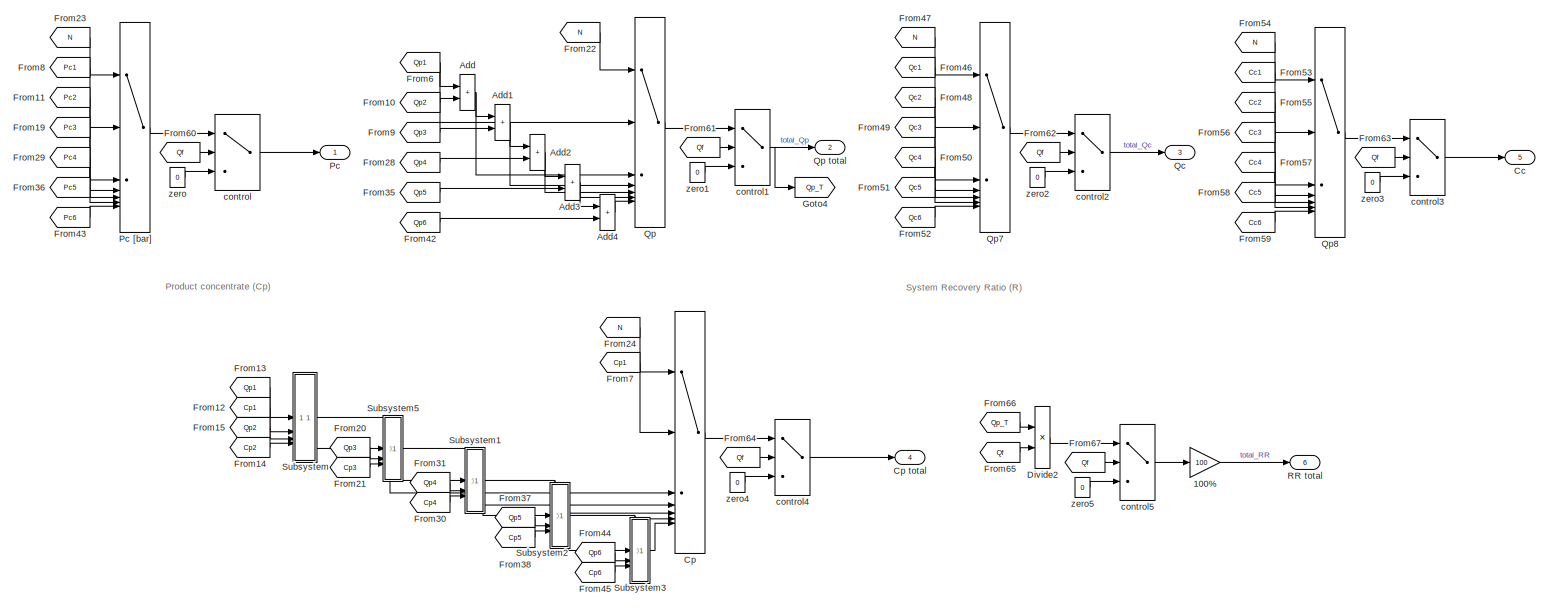
[diagram: RO/PV2 - part 3/3, full width, bottom band]
BLOCK [SubSystem] RO/PV2
  NameLocation = top
BLOCK [Gain] RO/PV2/100%
  Gain = 100
BLOCK [Sum] RO/PV2/Add
  IconShape = rectangular
BLOCK [Sum] RO/PV2/Add1
  IconShape = rectangular
BLOCK [Sum] RO/PV2/Add2
  IconShape = rectangular
BLOCK [Sum] RO/PV2/Add3
  IconShape = rectangular
BLOCK [Sum] RO/PV2/Add4
  IconShape = rectangular
BLOCK [Outport] RO/PV2/Cc
  Port = 5
BLOCK [Goto] RO/PV2/Cc1
  GotoTag = Cc1
BLOCK [Goto] RO/PV2/Cc2
  GotoTag = Cc2
BLOCK [Goto] RO/PV2/Cc3
  GotoTag = Cc3
BLOCK [Goto] RO/PV2/Cc4
  GotoTag = Cc4
BLOCK [Goto] RO/PV2/Cc5
  GotoTag = Cc5
BLOCK [Goto] RO/PV2/Cc6
  GotoTag = Cc6
BLOCK [MultiPortSwitch] RO/PV2/Cp
  InputSameDT = off
  Inputs = 6
  SaturateOnIntegerOverflow = off
BLOCK [Outport] RO/PV2/Cp total
  Port = 4
BLOCK [Goto] RO/PV2/Cp1
  GotoTag = Cp1
BLOCK [Goto] RO/PV2/Cp2
  GotoTag = Cp2
BLOCK [Goto] RO/PV2/Cp3
  GotoTag = Cp3
BLOCK [Goto] RO/PV2/Cp4
  GotoTag = Cp4
BLOCK [Goto] RO/PV2/Cp5
  GotoTag = Cp5
BLOCK [Goto] RO/PV2/Cp6
  GotoTag = Cp6
BLOCK [Display] RO/PV2/Display10
  Commented = on
  Decimation = 1
BLOCK [Display] RO/PV2/Display11
  Commented = on
  Decimation = 1
BLOCK [Display] RO/PV2/Display12
  Commented = on
  Decimation = 1
BLOCK [Display] RO/PV2/Display7
  Commented = on
  Decimation = 1
BLOCK [Display] RO/PV2/Display8
  Commented = on
  Decimation = 1
BLOCK [Display] RO/PV2/Display9
  Commented = on
  Decimation = 1
BLOCK [Product] RO/PV2/Divide2
  Inputs = */
BLOCK [Constant] RO/PV2/Feed concentrate [mg//L]
  Value = Cf
BLOCK [Inport] RO/PV2/Feed pressure [bar]
  Port = 2
BLOCK [From] RO/PV2/From
  GotoTag = Qf
BLOCK [From] RO/PV2/From1
  GotoTag = Pf
BLOCK [From] RO/PV2/From10
  GotoTag = Qp2
BLOCK [From] RO/PV2/From11
  GotoTag = Pc2
BLOCK [From] RO/PV2/From12
  GotoTag = Cp1
BLOCK [From] RO/PV2/From13
  GotoTag = Qp1
BLOCK [From] RO/PV2/From14
  GotoTag = Cp2
BLOCK [From] RO/PV2/From15
  GotoTag = Qp2
BLOCK [From] RO/PV2/From16
  GotoTag = Qc2
BLOCK [From] RO/PV2/From17
  GotoTag = Pc2
BLOCK [From] RO/PV2/From18
  GotoTag = Cc2
BLOCK [From] RO/PV2/From19
  GotoTag = Pc3
BLOCK [From] RO/PV2/From2
  GotoTag = Cf
BLOCK [From] RO/PV2/From20
  GotoTag = Qp3
BLOCK [From] RO/PV2/From21
  GotoTag = Cp3
BLOCK [From] RO/PV2/From22
  GotoTag = N
  TagVisibility = global
BLOCK [From] RO/PV2/From23
  GotoTag = N
  TagVisibility = global
BLOCK [From] RO/PV2/From24
  GotoTag = N
  TagVisibility = global
BLOCK [From] RO/PV2/From25
  GotoTag = Qc3
BLOCK [From] RO/PV2/From26
  GotoTag = Pc3
BLOCK [From] RO/PV2/From27
  GotoTag = Cc3
BLOCK [From] RO/PV2/From28
  GotoTag = Qp4
BLOCK [From] RO/PV2/From29
  GotoTag = Pc4
BLOCK [From] RO/PV2/From3
  GotoTag = Qc1
BLOCK [From] RO/PV2/From30
  GotoTag = Cp4
BLOCK [From] RO/PV2/From31
  GotoTag = Qp4
BLOCK [From] RO/PV2/From32
  GotoTag = Qc4
BLOCK [From] RO/PV2/From33
  GotoTag = Pc4
BLOCK [From] RO/PV2/From34
  GotoTag = Cc4
BLOCK [From] RO/PV2/From35
  GotoTag = Qp5
BLOCK [From] RO/PV2/From36
  GotoTag = Pc5
BLOCK [From] RO/PV2/From37
  GotoTag = Qp5
BLOCK [From] RO/PV2/From38
  GotoTag = Cp5
BLOCK [From] RO/PV2/From39
  GotoTag = Qc5
BLOCK [From] RO/PV2/From4
  GotoTag = Pc1
BLOCK [From] RO/PV2/From40
  GotoTag = Pc5
BLOCK [From] RO/PV2/From41
  GotoTag = Cc5
BLOCK [From] RO/PV2/From42
  GotoTag = Qp6
BLOCK [From] RO/PV2/From43
  GotoTag = Pc6
BLOCK [From] RO/PV2/From44
  GotoTag = Qp6
BLOCK [From] RO/PV2/From45
  GotoTag = Cp6
BLOCK [From] RO/PV2/From46
  GotoTag = Qc1
BLOCK [From] RO/PV2/From47
  GotoTag = N
  TagVisibility = global
BLOCK [From] RO/PV2/From48
  GotoTag = Qc2
BLOCK [From] RO/PV2/From49
  GotoTag = Qc3
BLOCK [From] RO/PV2/From5
  GotoTag = Cc1
BLOCK [From] RO/PV2/From50
  GotoTag = Qc4
BLOCK [From] RO/PV2/From51
  GotoTag = Qc5
BLOCK [From] RO/PV2/From52
  GotoTag = Qc6
BLOCK [From] RO/PV2/From53
  GotoTag = Cc1
BLOCK [From] RO/PV2/From54
  GotoTag = N
  TagVisibility = global
BLOCK [From] RO/PV2/From55
  GotoTag = Cc2
BLOCK [From] RO/PV2/From56
  GotoTag = Cc3
BLOCK [From] RO/PV2/From57
  GotoTag = Cc4
BLOCK [From] RO/PV2/From58
  GotoTag = Cc5
BLOCK [From] RO/PV2/From59
  GotoTag = Cc6
BLOCK [From] RO/PV2/From6
  GotoTag = Qp1
BLOCK [From] RO/PV2/From60
  GotoTag = Qf
BLOCK [From] RO/PV2/From61
  GotoTag = Qf
BLOCK [From] RO/PV2/From62
  GotoTag = Qf
BLOCK [From] RO/PV2/From63
  GotoTag = Qf
BLOCK [From] RO/PV2/From64
  GotoTag = Qf
BLOCK [From] RO/PV2/From65
  GotoTag = Qf
BLOCK [From] RO/PV2/From66
  GotoTag = Qp_T
BLOCK [From] RO/PV2/From67
  GotoTag = Qf
BLOCK [From] RO/PV2/From7
  GotoTag = Cp1
BLOCK [From] RO/PV2/From8
  GotoTag = Pc1
BLOCK [From] RO/PV2/From9
  GotoTag = Qp3
BLOCK [Goto] RO/PV2/Goto
  GotoTag = Qf
BLOCK [Goto] RO/PV2/Goto1
  GotoTag = Pf
BLOCK [Goto] RO/PV2/Goto2
  GotoTag = Cf
BLOCK [Goto] RO/PV2/Goto4
  GotoTag = Qp_T
BLOCK [Outport] RO/PV2/Pc
BLOCK [MultiPortSwitch] RO/PV2/Pc [bar]
  InputSameDT = off
  Inputs = 6
  SaturateOnIntegerOverflow = off
BLOCK [Goto] RO/PV2/Pc1
  GotoTag = Pc1
BLOCK [Goto] RO/PV2/Pc2
  GotoTag = Pc2
BLOCK [Goto] RO/PV2/Pc3
  GotoTag = Pc3
BLOCK [Goto] RO/PV2/Pc4
  GotoTag = Pc4
BLOCK [Goto] RO/PV2/Pc5
  GotoTag = Pc5
BLOCK [Goto] RO/PV2/Pc6
  GotoTag = Pc6
BLOCK [Outport] RO/PV2/Qc
  Port = 3
BLOCK [Goto] RO/PV2/Qc1
  GotoTag = Qc1
BLOCK [Goto] RO/PV2/Qc2
  GotoTag = Qc2
BLOCK [Goto] RO/PV2/Qc3
  GotoTag = Qc3
BLOCK [Goto] RO/PV2/Qc4
  GotoTag = Qc4
BLOCK [Goto] RO/PV2/Qc5
  GotoTag = Qc5
BLOCK [Goto] RO/PV2/Qc6
  GotoTag = Qc6
BLOCK [Inport] RO/PV2/Qf [m3//h]
BLOCK [MultiPortSwitch] RO/PV2/Qp
  InputSameDT = off
  Inputs = 6
  SaturateOnIntegerOverflow = off
BLOCK [Outport] RO/PV2/Qp total
  Port = 2
BLOCK [Goto] RO/PV2/Qp1
  GotoTag = Qp1
BLOCK [Goto] RO/PV2/Qp2
  GotoTag = Qp2
BLOCK [Goto] RO/PV2/Qp3
  GotoTag = Qp3
BLOCK [Goto] RO/PV2/Qp4
  GotoTag = Qp4
BLOCK [Goto] RO/PV2/Qp5
  GotoTag = Qp5
BLOCK [Goto] RO/PV2/Qp6
  GotoTag = Qp6
BLOCK [MultiPortSwitch] RO/PV2/Qp7
  InputSameDT = off
  Inputs = 6
  SaturateOnIntegerOverflow = off
BLOCK [MultiPortSwitch] RO/PV2/Qp8
  InputSameDT = off
  Inputs = 6
  SaturateOnIntegerOverflow = off
BLOCK [SubSystem] RO/PV2/RO num 1
BLOCK [Gain] RO/PV2/RO num 1/100%
  Gain = 100
BLOCK [Outport] RO/PV2/RO num 1/Cc
  Port = 3
BLOCK [Display] RO/PV2/RO num 1/Cc [mg//L]
  Commented = on
  Decimation = 1
  Format = bank
BLOCK [Inport] RO/PV2/RO num 1/Cf [mg//L]
  Port = 3
BLOCK [Outport] RO/PV2/RO num 1/Cp
  Port = 5
BLOCK [Reference] RO/PV2/RO num 1/Cp RegressionNeuralNetwork Predict  REF=statsLibrary/Regression/RegressionNeuralNetwork Predict
  SourceBlock = statsLibrary/Regression/RegressionNeuralNetwork Predict
  SourceType = RegressionNeuralNetwork Predict
BLOCK [Display] RO/PV2/RO num 1/Cp [mg//L]
  Commented = on
  Decimation = 1
BLOCK [Product] RO/PV2/RO num 1/Divide
  Inputs = /*
BLOCK [From] RO/PV2/RO num 1/From11
  GotoTag = Cf
BLOCK [From] RO/PV2/RO num 1/From13
  GotoTag = Qf
BLOCK [From] RO/PV2/RO num 1/From14
  GotoTag = Qf
BLOCK [From] RO/PV2/RO num 1/From15
  GotoTag = Qp
BLOCK [From] RO/PV2/RO num 1/From16
  GotoTag = Cp
BLOCK [From] RO/PV2/RO num 1/From5
  GotoTag = Qp
BLOCK [From] RO/PV2/RO num 1/From6
  GotoTag = Qp
BLOCK [From] RO/PV2/RO num 1/From7
  GotoTag = Qf
BLOCK [Goto] RO/PV2/RO num 1/Goto1
  GotoTag = Qf
BLOCK [Goto] RO/PV2/RO num 1/Goto6
  GotoTag = Cf
BLOCK [Goto] RO/PV2/RO num 1/Goto7
  GotoTag = Qp
BLOCK [Goto] RO/PV2/RO num 1/Goto8
  GotoTag = Cp
BLOCK [Mux] RO/PV2/RO num 1/Mux
  DisplayOption = bar
  Inputs = 3
BLOCK [Outport] RO/PV2/RO num 1/Pc
  Port = 2
BLOCK [Reference] RO/PV2/RO num 1/Pc RegressionNeuralNetwork Predict  REF=statsLibrary/Regression/RegressionNeuralNetwork Predict
  SourceBlock = statsLibrary/Regression/RegressionNeuralNetwork Predict
  SourceType = RegressionNeuralNetwork Predict
BLOCK [Display] RO/PV2/RO num 1/Pc [bar]
  Commented = on
  Decimation = 1
BLOCK [Inport] RO/PV2/RO num 1/Pf [bar]
  Port = 2
BLOCK [Outport] RO/PV2/RO num 1/Qc
BLOCK [Display] RO/PV2/RO num 1/Qc [m3//h]
  Commented = on
  Decimation = 1
BLOCK [Inport] RO/PV2/RO num 1/Qf [m3//h]
BLOCK [Product] RO/PV2/RO num 1/Qf*Cf
BLOCK [Outport] RO/PV2/RO num 1/Qp
  Port = 4
BLOCK [Reference] RO/PV2/RO num 1/Qp RegressionGP Predict  REF=statsLibrary/Regression/RegressionGP Predict
  SourceBlock = statsLibrary/Regression/RegressionGP Predict
  SourceType = RegressionGP Predict
BLOCK [Display] RO/PV2/RO num 1/Qp [m3//h]
  Commented = on
  Decimation = 1
BLOCK [Display] RO/PV2/RO num 1/Qp [m3//h]1
  Commented = on
  Decimation = 1
BLOCK [Product] RO/PV2/RO num 1/Qp*Cp
BLOCK [Display] RO/PV2/RO num 1/R
  Commented = on
  Decimation = 1
BLOCK [Outport] RO/PV2/RO num 1/R [%]
  Port = 6
BLOCK [Sum] RO/PV2/RO num 1/Sum
  IconShape = rectangular
  Inputs = +-
BLOCK [Sum] RO/PV2/RO num 1/add2
  IconShape = rectangular
  Inputs = +-
BLOCK [Product] RO/PV2/RO num 1/di2
  Inputs = /*
BLOCK [SubSystem] RO/PV2/RO num 2
BLOCK [Gain] RO/PV2/RO num 2/100%
  Gain = 100
BLOCK [Outport] RO/PV2/RO num 2/Cc
  Port = 3
BLOCK [Display] RO/PV2/RO num 2/Cc [mg//L]
  Commented = on
  Decimation = 1
  Format = bank
BLOCK [Inport] RO/PV2/RO num 2/Cf [mg//L]
  Port = 3
BLOCK [Outport] RO/PV2/RO num 2/Cp
  Port = 5
BLOCK [Reference] RO/PV2/RO num 2/Cp RegressionNeuralNetwork Predict  REF=statsLibrary/Regression/RegressionNeuralNetwork Predict
  SourceBlock = statsLibrary/Regression/RegressionNeuralNetwork Predict
  SourceType = RegressionNeuralNetwork Predict
BLOCK [Display] RO/PV2/RO num 2/Cp [mg//L]
  Commented = on
  Decimation = 1
BLOCK [Product] RO/PV2/RO num 2/Divide
  Inputs = /*
BLOCK [From] RO/PV2/RO num 2/From11
  GotoTag = Cf
BLOCK [From] RO/PV2/RO num 2/From13
  GotoTag = Qf
BLOCK [From] RO/PV2/RO num 2/From14
  GotoTag = Qf
BLOCK [From] RO/PV2/RO num 2/From15
  GotoTag = Qp
BLOCK [From] RO/PV2/RO num 2/From16
  GotoTag = Cp
BLOCK [From] RO/PV2/RO num 2/From5
  GotoTag = Qp
BLOCK [From] RO/PV2/RO num 2/From6
  GotoTag = Qp
BLOCK [From] RO/PV2/RO num 2/From7
  GotoTag = Qf
BLOCK [Goto] RO/PV2/RO num 2/Goto1
  GotoTag = Qf
BLOCK [Goto] RO/PV2/RO num 2/Goto6
  GotoTag = Cf
BLOCK [Goto] RO/PV2/RO num 2/Goto7
  GotoTag = Qp
BLOCK [Goto] RO/PV2/RO num 2/Goto8
  GotoTag = Cp
BLOCK [Mux] RO/PV2/RO num 2/Mux
  DisplayOption = bar
  Inputs = 3
BLOCK [Outport] RO/PV2/RO num 2/Pc
  Port = 2
BLOCK [Reference] RO/PV2/RO num 2/Pc RegressionNeuralNetwork Predict  REF=statsLibrary/Regression/RegressionNeuralNetwork Predict
  SourceBlock = statsLibrary/Regression/RegressionNeuralNetwork Predict
  SourceType = RegressionNeuralNetwork Predict
BLOCK [Display] RO/PV2/RO num 2/Pc [bar]
  Commented = on
  Decimation = 1
BLOCK [Inport] RO/PV2/RO num 2/Pf [bar]
  Port = 2
BLOCK [Outport] RO/PV2/RO num 2/Qc
BLOCK [Display] RO/PV2/RO num 2/Qc [m3//h]
  Commented = on
  Decimation = 1
BLOCK [Inport] RO/PV2/RO num 2/Qf [m3//h]
BLOCK [Product] RO/PV2/RO num 2/Qf*Cf
BLOCK [Outport] RO/PV2/RO num 2/Qp
  Port = 4
BLOCK [Reference] RO/PV2/RO num 2/Qp RegressionGP Predict  REF=statsLibrary/Regression/RegressionGP Predict
  SourceBlock = statsLibrary/Regression/RegressionGP Predict
  SourceType = RegressionGP Predict
BLOCK [Display] RO/PV2/RO num 2/Qp [m3//h]
  Commented = on
  Decimation = 1
BLOCK [Product] RO/PV2/RO num 2/Qp*Cp
BLOCK [Display] RO/PV2/RO num 2/R
  Commented = on
  Decimation = 1
BLOCK [Outport] RO/PV2/RO num 2/R [%]
  Port = 6
BLOCK [Sum] RO/PV2/RO num 2/Sum
  IconShape = rectangular
  Inputs = +-
BLOCK [Sum] RO/PV2/RO num 2/add2
  IconShape = rectangular
  Inputs = +-
BLOCK [Product] RO/PV2/RO num 2/di2
  Inputs = /*
BLOCK [SubSystem] RO/PV2/RO num 3
BLOCK [Gain] RO/PV2/RO num 3/100%
  Gain = 100
BLOCK [Outport] RO/PV2/RO num 3/Cc
  Port = 3
BLOCK [Display] RO/PV2/RO num 3/Cc [mg//L]
  Commented = on
  Decimation = 1
  Format = bank
BLOCK [Inport] RO/PV2/RO num 3/Cf [mg//L]
  Port = 3
BLOCK [Outport] RO/PV2/RO num 3/Cp
  Port = 5
BLOCK [Reference] RO/PV2/RO num 3/Cp RegressionNeuralNetwork Predict  REF=statsLibrary/Regression/RegressionNeuralNetwork Predict
  SourceBlock = statsLibrary/Regression/RegressionNeuralNetwork Predict
  SourceType = RegressionNeuralNetwork Predict
BLOCK [Display] RO/PV2/RO num 3/Cp [mg//L]
  Commented = on
  Decimation = 1
BLOCK [Product] RO/PV2/RO num 3/Divide
  Inputs = /*
BLOCK [From] RO/PV2/RO num 3/From11
  GotoTag = Cf
BLOCK [From] RO/PV2/RO num 3/From13
  GotoTag = Qf
BLOCK [From] RO/PV2/RO num 3/From14
  GotoTag = Qf
BLOCK [From] RO/PV2/RO num 3/From15
  GotoTag = Qp
BLOCK [From] RO/PV2/RO num 3/From16
  GotoTag = Cp
BLOCK [From] RO/PV2/RO num 3/From5
  GotoTag = Qp
BLOCK [From] RO/PV2/RO num 3/From6
  GotoTag = Qp
BLOCK [From] RO/PV2/RO num 3/From7
  GotoTag = Qf
BLOCK [Goto] RO/PV2/RO num 3/Goto1
  GotoTag = Qf
BLOCK [Goto] RO/PV2/RO num 3/Goto6
  GotoTag = Cf
BLOCK [Goto] RO/PV2/RO num 3/Goto7
  GotoTag = Qp
BLOCK [Goto] RO/PV2/RO num 3/Goto8
  GotoTag = Cp
BLOCK [Mux] RO/PV2/RO num 3/Mux
  DisplayOption = bar
  Inputs = 3
BLOCK [Outport] RO/PV2/RO num 3/Pc
  Port = 2
BLOCK [Reference] RO/PV2/RO num 3/Pc RegressionNeuralNetwork Predict  REF=statsLibrary/Regression/RegressionNeuralNetwork Predict
  SourceBlock = statsLibrary/Regression/RegressionNeuralNetwork Predict
  SourceType = RegressionNeuralNetwork Predict
BLOCK [Display] RO/PV2/RO num 3/Pc [bar]
  Commented = on
  Decimation = 1
BLOCK [Inport] RO/PV2/RO num 3/Pf [bar]
  Port = 2
BLOCK [Outport] RO/PV2/RO num 3/Qc
BLOCK [Display] RO/PV2/RO num 3/Qc [m3//h]
  Commented = on
  Decimation = 1
BLOCK [Inport] RO/PV2/RO num 3/Qf [m3//h]
BLOCK [Product] RO/PV2/RO num 3/Qf*Cf
BLOCK [Outport] RO/PV2/RO num 3/Qp
  Port = 4
BLOCK [Reference] RO/PV2/RO num 3/Qp RegressionGP Predict  REF=statsLibrary/Regression/RegressionGP Predict
  SourceBlock = statsLibrary/Regression/RegressionGP Predict
  SourceType = RegressionGP Predict
BLOCK [Display] RO/PV2/RO num 3/Qp [m3//h]
  Commented = on
  Decimation = 1
BLOCK [Product] RO/PV2/RO num 3/Qp*Cp
BLOCK [Display] RO/PV2/RO num 3/R
  Commented = on
  Decimation = 1
BLOCK [Outport] RO/PV2/RO num 3/R [%]
  Port = 6
BLOCK [Sum] RO/PV2/RO num 3/Sum
  IconShape = rectangular
  Inputs = +-
BLOCK [Sum] RO/PV2/RO num 3/add2
  IconShape = rectangular
  Inputs = +-
BLOCK [Product] RO/PV2/RO num 3/di2
  Inputs = /*
BLOCK [SubSystem] RO/PV2/RO num 4
BLOCK [Gain] RO/PV2/RO num 4/100%
  Gain = 100
BLOCK [Outport] RO/PV2/RO num 4/Cc
  Port = 3
BLOCK [Display] RO/PV2/RO num 4/Cc [mg//L]
  Commented = on
  Decimation = 1
  Format = bank
BLOCK [Inport] RO/PV2/RO num 4/Cf [mg//L]
  Port = 3
BLOCK [Outport] RO/PV2/RO num 4/Cp
  Port = 5
BLOCK [Reference] RO/PV2/RO num 4/Cp RegressionNeuralNetwork Predict  REF=statsLibrary/Regression/RegressionNeuralNetwork Predict
  SourceBlock = statsLibrary/Regression/RegressionNeuralNetwork Predict
  SourceType = RegressionNeuralNetwork Predict
BLOCK [Display] RO/PV2/RO num 4/Cp [mg//L]
  Commented = on
  Decimation = 1
BLOCK [Product] RO/PV2/RO num 4/Divide
  Inputs = /*
BLOCK [From] RO/PV2/RO num 4/From11
  GotoTag = Cf
BLOCK [From] RO/PV2/RO num 4/From13
  GotoTag = Qf
BLOCK [From] RO/PV2/RO num 4/From14
  GotoTag = Qf
BLOCK [From] RO/PV2/RO num 4/From15
  GotoTag = Qp
BLOCK [From] RO/PV2/RO num 4/From16
  GotoTag = Cp
BLOCK [From] RO/PV2/RO num 4/From5
  GotoTag = Qp
BLOCK [From] RO/PV2/RO num 4/From6
  GotoTag = Qp
BLOCK [From] RO/PV2/RO num 4/From7
  GotoTag = Qf
BLOCK [Goto] RO/PV2/RO num 4/Goto1
  GotoTag = Qf
BLOCK [Goto] RO/PV2/RO num 4/Goto6
  GotoTag = Cf
BLOCK [Goto] RO/PV2/RO num 4/Goto7
  GotoTag = Qp
BLOCK [Goto] RO/PV2/RO num 4/Goto8
  GotoTag = Cp
BLOCK [Mux] RO/PV2/RO num 4/Mux
  DisplayOption = bar
  Inputs = 3
BLOCK [Outport] RO/PV2/RO num 4/Pc
  Port = 2
BLOCK [Reference] RO/PV2/RO num 4/Pc RegressionNeuralNetwork Predict  REF=statsLibrary/Regression/RegressionNeuralNetwork Predict
  SourceBlock = statsLibrary/Regression/RegressionNeuralNetwork Predict
  SourceType = RegressionNeuralNetwork Predict
BLOCK [Display] RO/PV2/RO num 4/Pc [bar]
  Commented = on
  Decimation = 1
BLOCK [Inport] RO/PV2/RO num 4/Pf [bar]
  Port = 2
BLOCK [Outport] RO/PV2/RO num 4/Qc
BLOCK [Display] RO/PV2/RO num 4/Qc [m3//h]
  Commented = on
  Decimation = 1
BLOCK [Inport] RO/PV2/RO num 4/Qf [m3//h]
BLOCK [Display] RO/PV2/RO num 4/Qf [m3//h]1
  Commented = on
  Decimation = 1
BLOCK [Product] RO/PV2/RO num 4/Qf*Cf
BLOCK [Outport] RO/PV2/RO num 4/Qp
  Port = 4
BLOCK [Reference] RO/PV2/RO num 4/Qp RegressionGP Predict  REF=statsLibrary/Regression/RegressionGP Predict
  SourceBlock = statsLibrary/Regression/RegressionGP Predict
  SourceType = RegressionGP Predict
BLOCK [Display] RO/PV2/RO num 4/Qp [m3//h]
  Commented = on
  Decimation = 1
BLOCK [Product] RO/PV2/RO num 4/Qp*Cp
BLOCK [Display] RO/PV2/RO num 4/R
  Commented = on
  Decimation = 1
BLOCK [Outport] RO/PV2/RO num 4/R [%]
  Port = 6
BLOCK [Sum] RO/PV2/RO num 4/Sum
  IconShape = rectangular
  Inputs = +-
BLOCK [Sum] RO/PV2/RO num 4/add2
  IconShape = rectangular
  Inputs = +-
BLOCK [Product] RO/PV2/RO num 4/di2
  Inputs = /*
BLOCK [SubSystem] RO/PV2/RO num 5
BLOCK [Gain] RO/PV2/RO num 5/100%
  Gain = 100
BLOCK [Outport] RO/PV2/RO num 5/Cc
  Port = 3
BLOCK [Display] RO/PV2/RO num 5/Cc [mg//L]
  Commented = on
  Decimation = 1
  Format = bank
BLOCK [Inport] RO/PV2/RO num 5/Cf [mg//L]
  Port = 3
BLOCK [Outport] RO/PV2/RO num 5/Cp
  Port = 5
BLOCK [Reference] RO/PV2/RO num 5/Cp RegressionNeuralNetwork Predict  REF=statsLibrary/Regression/RegressionNeuralNetwork Predict
  SourceBlock = statsLibrary/Regression/RegressionNeuralNetwork Predict
  SourceType = RegressionNeuralNetwork Predict
BLOCK [Display] RO/PV2/RO num 5/Cp [mg//L]
  Commented = on
  Decimation = 1
BLOCK [Product] RO/PV2/RO num 5/Divide
  Inputs = /*
BLOCK [From] RO/PV2/RO num 5/From11
  GotoTag = Cf
BLOCK [From] RO/PV2/RO num 5/From13
  GotoTag = Qf
BLOCK [From] RO/PV2/RO num 5/From14
  GotoTag = Qf
BLOCK [From] RO/PV2/RO num 5/From15
  GotoTag = Qp
BLOCK [From] RO/PV2/RO num 5/From16
  GotoTag = Cp
BLOCK [From] RO/PV2/RO num 5/From5
  GotoTag = Qp
BLOCK [From] RO/PV2/RO num 5/From6
  GotoTag = Qp
BLOCK [From] RO/PV2/RO num 5/From7
  GotoTag = Qf
BLOCK [Goto] RO/PV2/RO num 5/Goto1
  GotoTag = Qf
BLOCK [Goto] RO/PV2/RO num 5/Goto6
  GotoTag = Cf
BLOCK [Goto] RO/PV2/RO num 5/Goto7
  GotoTag = Qp
BLOCK [Goto] RO/PV2/RO num 5/Goto8
  GotoTag = Cp
BLOCK [Mux] RO/PV2/RO num 5/Mux
  DisplayOption = bar
  Inputs = 3
BLOCK [Outport] RO/PV2/RO num 5/Pc
  Port = 2
BLOCK [Reference] RO/PV2/RO num 5/Pc RegressionNeuralNetwork Predict  REF=statsLibrary/Regression/RegressionNeuralNetwork Predict
  SourceBlock = statsLibrary/Regression/RegressionNeuralNetwork Predict
  SourceType = RegressionNeuralNetwork Predict
BLOCK [Display] RO/PV2/RO num 5/Pc [bar]
  Commented = on
  Decimation = 1
BLOCK [Inport] RO/PV2/RO num 5/Pf [bar]
  Port = 2
BLOCK [Outport] RO/PV2/RO num 5/Qc
BLOCK [Display] RO/PV2/RO num 5/Qc [m3//h]
  Commented = on
  Decimation = 1
BLOCK [Inport] RO/PV2/RO num 5/Qf [m3//h]
BLOCK [Display] RO/PV2/RO num 5/Qf [m3//h]1
  Commented = on
  Decimation = 1
BLOCK [Product] RO/PV2/RO num 5/Qf*Cf
BLOCK [Outport] RO/PV2/RO num 5/Qp
  Port = 4
BLOCK [Reference] RO/PV2/RO num 5/Qp RegressionGP Predict  REF=statsLibrary/Regression/RegressionGP Predict
  SourceBlock = statsLibrary/Regression/RegressionGP Predict
  SourceType = RegressionGP Predict
BLOCK [Display] RO/PV2/RO num 5/Qp [m3//h]
  Commented = on
  Decimation = 1
BLOCK [Product] RO/PV2/RO num 5/Qp*Cp
BLOCK [Display] RO/PV2/RO num 5/R
  Commented = on
  Decimation = 1
BLOCK [Outport] RO/PV2/RO num 5/R [%]
  Port = 6
BLOCK [Sum] RO/PV2/RO num 5/Sum
  IconShape = rectangular
  Inputs = +-
BLOCK [Sum] RO/PV2/RO num 5/add2
  IconShape = rectangular
  Inputs = +-
BLOCK [Product] RO/PV2/RO num 5/di2
  Inputs = /*
BLOCK [SubSystem] RO/PV2/RO num 6
BLOCK [Gain] RO/PV2/RO num 6/100%
  Gain = 100
BLOCK [Outport] RO/PV2/RO num 6/Cc
  Port = 3
BLOCK [Display] RO/PV2/RO num 6/Cc [mg//L]
  Commented = on
  Decimation = 1
  Format = bank
BLOCK [Inport] RO/PV2/RO num 6/Cf [mg//L]
  Port = 3
BLOCK [Outport] RO/PV2/RO num 6/Cp
  Port = 5
BLOCK [Reference] RO/PV2/RO num 6/Cp RegressionNeuralNetwork Predict  REF=statsLibrary/Regression/RegressionNeuralNetwork Predict
  SourceBlock = statsLibrary/Regression/RegressionNeuralNetwork Predict
  SourceType = RegressionNeuralNetwork Predict
BLOCK [Display] RO/PV2/RO num 6/Cp [mg//L]
  Commented = on
  Decimation = 1
BLOCK [Product] RO/PV2/RO num 6/Divide
  Inputs = /*
BLOCK [From] RO/PV2/RO num 6/From11
  GotoTag = Cf
BLOCK [From] RO/PV2/RO num 6/From13
  GotoTag = Qf
BLOCK [From] RO/PV2/RO num 6/From14
  GotoTag = Qf
BLOCK [From] RO/PV2/RO num 6/From15
  GotoTag = Qp
BLOCK [From] RO/PV2/RO num 6/From16
  GotoTag = Cp
BLOCK [From] RO/PV2/RO num 6/From5
  GotoTag = Qp
BLOCK [From] RO/PV2/RO num 6/From6
  GotoTag = Qp
BLOCK [From] RO/PV2/RO num 6/From7
  GotoTag = Qf
BLOCK [Goto] RO/PV2/RO num 6/Goto1
  GotoTag = Qf
BLOCK [Goto] RO/PV2/RO num 6/Goto6
  GotoTag = Cf
BLOCK [Goto] RO/PV2/RO num 6/Goto7
  GotoTag = Qp
BLOCK [Goto] RO/PV2/RO num 6/Goto8
  GotoTag = Cp
BLOCK [Mux] RO/PV2/RO num 6/Mux
  DisplayOption = bar
  Inputs = 3
BLOCK [Outport] RO/PV2/RO num 6/Pc
  Port = 2
BLOCK [Reference] RO/PV2/RO num 6/Pc RegressionNeuralNetwork Predict  REF=statsLibrary/Regression/RegressionNeuralNetwork Predict
  SourceBlock = statsLibrary/Regression/RegressionNeuralNetwork Predict
  SourceType = RegressionNeuralNetwork Predict
BLOCK [Display] RO/PV2/RO num 6/Pc [bar]
  Commented = on
  Decimation = 1
BLOCK [Inport] RO/PV2/RO num 6/Pf [bar]
  Port = 2
BLOCK [Outport] RO/PV2/RO num 6/Qc
BLOCK [Display] RO/PV2/RO num 6/Qc [m3//h]
  Commented = on
  Decimation = 1
BLOCK [Inport] RO/PV2/RO num 6/Qf [m3//h]
BLOCK [Product] RO/PV2/RO num 6/Qf*Cf
BLOCK [Outport] RO/PV2/RO num 6/Qp
  Port = 4
BLOCK [Reference] RO/PV2/RO num 6/Qp RegressionGP Predict  REF=statsLibrary/Regression/RegressionGP Predict
  SourceBlock = statsLibrary/Regression/RegressionGP Predict
  SourceType = RegressionGP Predict
BLOCK [Display] RO/PV2/RO num 6/Qp [m3//h]
  Commented = on
  Decimation = 1
BLOCK [Product] RO/PV2/RO num 6/Qp*Cp
BLOCK [Display] RO/PV2/RO num 6/R
  Commented = on
  Decimation = 1
BLOCK [Outport] RO/PV2/RO num 6/R [%]
  Port = 6
BLOCK [Sum] RO/PV2/RO num 6/Sum
  IconShape = rectangular
  Inputs = +-
BLOCK [Sum] RO/PV2/RO num 6/add2
  IconShape = rectangular
  Inputs = +-
BLOCK [Product] RO/PV2/RO num 6/di2
  Inputs = /*
BLOCK [Outport] RO/PV2/RR total
  Port = 6
BLOCK [SubSystem] RO/PV2/Subsystem
BLOCK [Sum] RO/PV2/Subsystem/Add1
  IconShape = rectangular
BLOCK [Inport] RO/PV2/Subsystem/In1
BLOCK [Inport] RO/PV2/Subsystem/In2
  Port = 2
BLOCK [Inport] RO/PV2/Subsystem/In3
  Port = 3
BLOCK [Inport] RO/PV2/Subsystem/In4
  Port = 4
BLOCK [Outport] RO/PV2/Subsystem/Out1
BLOCK [Outport] RO/PV2/Subsystem/Out2
  Port = 2
BLOCK [Product] RO/PV2/Subsystem/Q1*C1
BLOCK [Product] RO/PV2/Subsystem/Q2*C2
BLOCK [Sum] RO/PV2/Subsystem/add2
  IconShape = rectangular
BLOCK [Product] RO/PV2/Subsystem/di2
  Inputs = /*
BLOCK [SubSystem] RO/PV2/Subsystem1
BLOCK [Sum] RO/PV2/Subsystem1/Add2
  IconShape = rectangular
BLOCK [Inport] RO/PV2/Subsystem1/In1
  Port = 4
BLOCK [Inport] RO/PV2/Subsystem1/In2
BLOCK [Inport] RO/PV2/Subsystem1/In3
  Port = 2
BLOCK [Inport] RO/PV2/Subsystem1/In4
  Port = 3
BLOCK [Outport] RO/PV2/Subsystem1/Out1
BLOCK [Outport] RO/PV2/Subsystem1/Out2
  Port = 2
BLOCK [Product] RO/PV2/Subsystem1/Q1*C1
BLOCK [Product] RO/PV2/Subsystem1/Q2*C2
BLOCK [Sum] RO/PV2/Subsystem1/add2
  IconShape = rectangular
BLOCK [Product] RO/PV2/Subsystem1/di2
  Inputs = /*
BLOCK [SubSystem] RO/PV2/Subsystem2
BLOCK [Sum] RO/PV2/Subsystem2/Add2
  IconShape = rectangular
BLOCK [Inport] RO/PV2/Subsystem2/In1
  Port = 4
BLOCK [Inport] RO/PV2/Subsystem2/In2
BLOCK [Inport] RO/PV2/Subsystem2/In3
  Port = 2
BLOCK [Inport] RO/PV2/Subsystem2/In4
  Port = 3
BLOCK [Outport] RO/PV2/Subsystem2/Out1
BLOCK [Outport] RO/PV2/Subsystem2/Out2
  Port = 2
BLOCK [Product] RO/PV2/Subsystem2/Q1*C1
BLOCK [Product] RO/PV2/Subsystem2/Q2*C2
BLOCK [Sum] RO/PV2/Subsystem2/add2
  IconShape = rectangular
BLOCK [Product] RO/PV2/Subsystem2/di2
  Inputs = /*
BLOCK [SubSystem] RO/PV2/Subsystem3
  PortSchema = {"entries":[{"content":{"sides":[{"content":{"connectorIds":["In1","In2","In3"]},"type":"ConnectorPlacement.EquallySpacedRectSide","uuid":"d5ba013f-6078-4f30-8328-72ed2cb8129b"},{"content":{"connectorIds":["Out1"],"side":"RIGHT"},"type":"ConnectorPlacement.EquallySpacedRectSide","uuid":"ed7cb065-416c-47c0-a617-1717dea4ab53"},{"content":{"connectorIds":["In4"],"side":"TOP"},"type":"ConnectorPlaceme...<+257ch>
BLOCK [Sum] RO/PV2/Subsystem3/Add2
  IconShape = rectangular
BLOCK [Inport] RO/PV2/Subsystem3/In1
  Port = 4
BLOCK [Inport] RO/PV2/Subsystem3/In2
BLOCK [Inport] RO/PV2/Subsystem3/In3
  Port = 2
BLOCK [Inport] RO/PV2/Subsystem3/In4
  Port = 3
BLOCK [Outport] RO/PV2/Subsystem3/Out1
BLOCK [Product] RO/PV2/Subsystem3/Q1*C1
BLOCK [Product] RO/PV2/Subsystem3/Q2*C2
BLOCK [Sum] RO/PV2/Subsystem3/add2
  IconShape = rectangular
BLOCK [Product] RO/PV2/Subsystem3/di2
  Inputs = /*
BLOCK [SubSystem] RO/PV2/Subsystem5
BLOCK [Sum] RO/PV2/Subsystem5/Add2
  IconShape = rectangular
BLOCK [Inport] RO/PV2/Subsystem5/In1
  Port = 4
BLOCK [Inport] RO/PV2/Subsystem5/In2
BLOCK [Inport] RO/PV2/Subsystem5/In3
  Port = 2
BLOCK [Inport] RO/PV2/Subsystem5/In4
  Port = 3
BLOCK [Outport] RO/PV2/Subsystem5/Out1
BLOCK [Outport] RO/PV2/Subsystem5/Out2
  Port = 2
BLOCK [Product] RO/PV2/Subsystem5/Q1*C1
BLOCK [Product] RO/PV2/Subsystem5/Q2*C2
BLOCK [Sum] RO/PV2/Subsystem5/add2
  IconShape = rectangular
BLOCK [Product] RO/PV2/Subsystem5/di2
  Inputs = /*
BLOCK [Switch] RO/PV2/control
  Criteria = u2 > Threshold
  InputSameDT = off
  SaturateOnIntegerOverflow = off
  ZeroCross = off
BLOCK [Switch] RO/PV2/control1
  Criteria = u2 > Threshold
  InputSameDT = off
  SaturateOnIntegerOverflow = off
  ZeroCross = off
BLOCK [Switch] RO/PV2/control2
  Criteria = u2 > Threshold
  InputSameDT = off
  SaturateOnIntegerOverflow = off
  ZeroCross = off
BLOCK [Switch] RO/PV2/control3
  Criteria = u2 > Threshold
  InputSameDT = off
  SaturateOnIntegerOverflow = off
  ZeroCross = off
BLOCK [Switch] RO/PV2/control4
  Criteria = u2 > Threshold
  InputSameDT = off
  SaturateOnIntegerOverflow = off
  ZeroCross = off
BLOCK [Switch] RO/PV2/control5
  Criteria = u2 > Threshold
  InputSameDT = off
  SaturateOnIntegerOverflow = off
  ZeroCross = off
BLOCK [Constant] RO/PV2/zero
  Value = 0
BLOCK [Constant] RO/PV2/zero1
  Value = 0
BLOCK [Constant] RO/PV2/zero2
  Value = 0
BLOCK [Constant] RO/PV2/zero3
  Value = 0
BLOCK [Constant] RO/PV2/zero4
  Value = 0
BLOCK [Constant] RO/PV2/zero5
  Value = 0
BLOCK [Outport] RO/Pc
  NameLocation = top
BLOCK [Outport] RO/Qc
  NameLocation = top
  Port = 3
BLOCK [Goto] RO/Qc 1
  GotoTag = Qc1
BLOCK [Goto] RO/Qc 2
  GotoTag = Qc2
BLOCK [Inport] RO/Qf [m3//h]
  NameLocation = top
BLOCK [MultiPortSwitch] RO/Qp
  InputSameDT = off
  Inputs = 2
  SaturateOnIntegerOverflow = off
BLOCK [Goto] RO/Qp 1
  GotoTag = Qp1
BLOCK [Goto] RO/Qp 2
  GotoTag = Qp2
BLOCK [Outport] RO/Qp total
  NameLocation = top
  Port = 2
BLOCK [MultiPortSwitch] RO/Qp1
  InputSameDT = off
  Inputs = 2
  SaturateOnIntegerOverflow = off
BLOCK [Outport] RO/RR total
  Port = 6
BLOCK [Reference] Ramp Wind Speed  REF=simulink/Sources/Ramp
  Commented = on
  SourceBlock = simulink/Sources/Ramp
  SourceType = Ramp
BLOCK [Scope] Scope1
  ActiveDisplayYMaximum = 2.37839
  ActiveDisplayYMinimum = -0.26427
  Commented = on
  DataLoggingVariableName = ScopeData19
  Floating = off
  GraphicalSettings = {"GraphicalSettings":{"LegacySettings":true,"Style":{"AxesScalingProperties":{"ScaleAxesLimitsAtStop":false},"Style":{"AxesColor":"[0 0 0]","ChannelNames":[""],"ColorOrder":"[1 1 0.0666666666666667;0.0745098039215686 0.623529411764706 1;1 0.411764705882353 0.16078431372549;0.392156862745098 0.831372549019608 0.0745098039215686;0.717647058823529 0.274509803921569 1;0.0588235294117647 1 1;1 0.074509...<+465ch>
  MultipleDisplayCache = [{"MaxYLimMag":2.37839,"MaxYLimReal":2.37839,"MinYLimMag":0,"MinYLimReal":-0.26427,"PlotAsMagnitudePhase":false,"ShowGrid":true,"ShowLegend":false,"Title":"%<SignalLabel>","YLabel":""}]
  NameLocation = top
  NumInputPorts = 1
  WasSavedAsWebScope = on
  WindowPosition = [877.8 359.4 560 412]
BLOCK [Scope] Scope10
  ActiveDisplayYMaximum = 23795.4869600652
  ActiveDisplayYMinimum = -1627.2921760391182
  Commented = on
  DataLoggingVariableName = ScopeData22
  Floating = off
  GraphicalSettings = {"AxesScalingProperties":{"AlignXAxis":"Center","AlignYAxis":"Center","AutoScaleXAxisLimits":false,"AxesScaling":"Manual","AxesScalingNumUpdates":10,"ExpandOnly":true,"ScaleAxesLimitsAtStop":false,"XAxisDataRange":100,"YAxisDataRange":80},"DisplayProperties":{"ColorOrder":["auto","auto","auto","auto","auto","auto","auto","auto","auto","auto","auto","auto","auto","auto","auto","auto","auto","auto",...<+1996ch>
  MultipleDisplayCache = [{"MaxYLimMag":25875,"MaxYLimReal":23795.4869600652,"MinYLimMag":0,"MinYLimReal":-1627.2921760391182,"PlotAsMagnitudePhase":false,"ShowGrid":true,"ShowLegend":false,"Title":"%<SignalLabel>","YLabel":""}]
  NumInputPorts = 1
  ScopeFrameLocation = window
  WasSavedAsWebScope = on
  WindowPosition = [1.000000,49.000000,2048.000000,1080.000000,]
BLOCK [Scope] Scope3
  ActiveDisplayYMaximum = 58.500602427315691
  ActiveDisplayYMinimum = -6.500066936368408
  Commented = on
  DataLoggingVariableName = ScopeData32
  Floating = off
  GraphicalSettings = {"Style":{"BackgroundColor":[0.12941176470588237,0.12941176470588237,0.12941176470588237],"AxesColor":[0.07058823529411765,0.07058823529411765,0.07058823529411765],"LabelsColor":[0.8509803921568627,0.8509803921568627,0.8509803921568627],"PreserveColors":false,"Visible":[true],"LineStyle":["-"],"LineWidth":[1.5],"BarWidth":[0.9],"LineColor":["auto"],"LineFaceAlpha":[1],"LineEdgeAlpha":[1],"Marker":...<+2007ch>
  MultipleDisplayCache = [{"MaxYLimMag":58.500602427315691,"MaxYLimReal":58.500602427315691,"MinYLimMag":0,"MinYLimReal":-6.500066936368408,"PlotAsMagnitudePhase":false,"ShowGrid":true,"ShowLegend":false,"Title":"%<SignalLabel>","YLabel":""}]
  NameLocation = top
  NumInputPorts = 1
  ScopeFrameLocation = window
  WasSavedAsWebScope = on
  WindowPosition = [2113.000000,365.000000,1427.000000,515.000000,]
BLOCK [Scope] Scope4
  ActiveDisplayYMaximum = 60.740007263636365
  ActiveDisplayYMinimum = 40.740007263636365
  Commented = on
  DataLoggingVariableName = ScopeData34
  Floating = off
  GraphicalSettings = {"Style":{"BackgroundColor":[0.12941176470588237,0.12941176470588237,0.12941176470588237],"AxesColor":[0.07058823529411765,0.07058823529411765,0.07058823529411765],"LabelsColor":[0.8509803921568627,0.8509803921568627,0.8509803921568627],"PreserveColors":false,"Visible":[true],"LineStyle":["-"],"LineWidth":[1.5],"BarWidth":[0.9],"LineColor":["auto"],"LineFaceAlpha":[1],"LineEdgeAlpha":[1],"Marker":...<+1975ch>
  MultipleDisplayCache = [{"MaxYLimMag":60.740007263636365,"MaxYLimReal":60.740007263636365,"MinYLimMag":40.740007263636365,"MinYLimReal":40.740007263636365,"PlotAsMagnitudePhase":false,"ShowGrid":true,"ShowLegend":false,"Title":"%<SignalLabel>","YLabel":""}]
  NumInputPorts = 1
  ScopeFrameLocation = window
  WasSavedAsWebScope = on
  WindowPosition = [680.000000,82.000000,560.000000,412.000000,]
BLOCK [Step] Step Wind Speed
  After = 6
  Commented = on
  SampleTime = 1
BLOCK [SubSystem] Subsystem2
BLOCK [Clock] Subsystem2/Clock2
  Decimation = 1
  DisplayTime = on
BLOCK [Lookup_n-D] Subsystem2/Wind data per hour
  BreakpointsForDimension1 = [1;2;3;4;5;6;7;8;9;10;11;12;13;14;15;16;17;18;19;20;21;22;23;24;25;26;27;28;29;30;31;32;33;34;35;36;37;38;39;40;41;42;43;44;45;46;47;48;49;50;51;52;53;54;55;56;57;58;59;60;61;62;63;64;65;66;67;68;69;70;71;72;73;74;75;76;77;78;79;80;81;82;83;84;85;86;87;88;89;90;91;92;93;94;95;96;97;98;99;100;101;102;103;104;105;106;107;108;109;110;111;112;113;114;115;116;117;118;119;120;121;122;123;124;125;126;127...<+42414ch>
  InputPortMap = u0
  InternalRulePriority = Speed
  NumberOfTableDimensions = 1
  RndMeth = Simplest
  Table = [5.93;5.52;5.59;5.72;5.72;5.72;5.59;5.79;5.93;6.07;6.28;6.62;6.83;6.83;6.69;6.34;6.14;6;5.86;5.03;4.62;4.21;4.14;3.93;3.93;4;4.21;4.28;4.28;4.28;4.69;4.14;4.55;4.69;4.55;4.28;4.28;4.21;4.21;4.07;3.72;3.45;3.45;3.03;3.45;3.93;4.41;4.55;4.07;3.17;2.41;1.93;1.45;1.31;1.1;0.97;0.76;1.17;1.79;2.21;2.21;2.14;2.14;1.79;1.45;2.62;3.93;4.14;4;3.93;3.66;3.03;2.28;1.59;1.24;0.69;0.28;0.55;0.9;0.07;0.28;0.62;...<+41999ch>
BLOCK [Outport] Subsystem2/Wind profile
BLOCK [Sum] Sum2
  Inputs = +-|
BLOCK [Sum] Sum5
  Inputs = ++|
BLOCK [Display] Total Product-Concentration [mg//L]
  Commented = on
  Decimation = 1
BLOCK [Display] Total RO-Recovery [-]
  Decimation = 1
BLOCK [Display] Total product-flow [m^3//h]
  Commented = on
  Decimation = 1
BLOCK [SubSystem] Transmission
  NameLocation = top
  PortSchema = {"entries":[{"content":{"sides":[{"content":{"connectorIds":["In1","In2"]},"type":"ConnectorPlacement.EquallySpacedRectSide","uuid":"fe7cb8fe-c3d1-4fc2-abbc-e62d8a30f932"},{"content":{"connectorIds":["Out1"],"side":"RIGHT"},"type":"ConnectorPlacement.EquallySpacedRectSide","uuid":"d080c485-0a77-4f06-83bb-92ab059c673f"},{"content":{"connectorIds":[],"side":"TOP"},"type":"ConnectorPlacement.EquallyS...<+396ch>
BLOCK [Product] Transmission/Divide
  Inputs = /*
  RndMeth = Zero
  SaturateOnIntegerOverflow = on
BLOCK [Product] Transmission/Product
BLOCK [Outport] Transmission/Q_trans
  Port = 2
BLOCK [Inport] Transmission/Torque
  Port = 2
BLOCK [Outport] Transmission/W_Trans
BLOCK [Inport] Transmission/W_rotor
BLOCK [Gain] Transmission/losses_trans
  Gain = 1-0.12
BLOCK [Constant] Transmission/trans_ratio
  Value = TR
BLOCK [Constant] Transmission/trans_ratio1
  Value = TR
BLOCK [SubSystem] Wind Turbine
  NameLocation = top
  PortSchema = {"entries":[{"content":{"sides":[{"content":{"connectorIds":["In1"]},"type":"ConnectorPlacement.EquallySpacedRectSide","uuid":"fe7cb8fe-c3d1-4fc2-abbc-e62d8a30f932"},{"content":{"connectorIds":["Out1","Out2"],"side":"RIGHT"},"type":"ConnectorPlacement.EquallySpacedRectSide","uuid":"d080c485-0a77-4f06-83bb-92ab059c673f"},{"content":{"connectorIds":[],"side":"TOP"},"type":"ConnectorPlacement.Equally...<+396ch>
BLOCK [Constant] Wind Turbine/Air Density2
  Value = 1.225
BLOCK [Constant] Wind Turbine/Constant1
  Value = 0
BLOCK [Constant] Wind Turbine/Constant2
  Value = 0
BLOCK [Constant] Wind Turbine/Constant3
  Value = 0
BLOCK [Constant] Wind Turbine/Constant5
  Value = 0.000001
BLOCK [Lookup_n-D] Wind Turbine/Cp(TSR) VAWT
  BreakpointsForDimension1 = [1.439502;1.679111;2.035892;2.329388;2.509915;2.636906;3.080976;3.291367]
  InputPortMap = u0
  InternalRulePriority = Speed
  NumberOfTableDimensions = 1
  RndMeth = Simplest
  Table = [0.01305;0.045283;0.137264;0.259906;0.301179;0.312972;0.285063;0.25283]
BLOCK [Inport] Wind Turbine/Delta_W [rad//s]
  Port = 2
BLOCK [Product] Wind Turbine/Divide1
  Inputs = */
BLOCK [Product] Wind Turbine/Divide2
  Inputs = */
BLOCK [Product] Wind Turbine/Divide3
  Inputs = */
BLOCK [Product] Wind Turbine/Divide4
  Inputs = **
BLOCK [Product] Wind Turbine/Divide5
  Inputs = **
BLOCK [Gain] Wind Turbine/Gain
  Gain = -1
BLOCK [Gain] Wind Turbine/Gain1
  Gain = 1/2
BLOCK [Goto] Wind Turbine/Goto
BLOCK [Integrator] Wind Turbine/Integrator2
  LowerSaturationLimit = -3
  NameLocation = top
BLOCK [Math] Wind Turbine/Math Function1
  Operator = magnitude^2
BLOCK [Product] Wind Turbine/Product1
  Inputs = 5
BLOCK [Gain] Wind Turbine/Radius
  Gain = R
BLOCK [Display] Wind Turbine/Rotor Power
  Commented = on
  Decimation = 1
BLOCK [Saturate] Wind Turbine/Saturation1
  LowerLimit = 0
  UpperLimit = inf
BLOCK [Saturate] Wind Turbine/Saturation2
  LowerLimit = 0
  UpperLimit = inf
BLOCK [Saturate] Wind Turbine/Saturation3
  LowerLimit = 0.000001
  UpperLimit = inf
BLOCK [Saturate] Wind Turbine/Saturation4
  LowerLimit = 0.000001
  UpperLimit = 6
BLOCK [Saturate] Wind Turbine/Saturation5
  LowerLimit = 0.000001
  NameLocation = right
  UpperLimit = inf
BLOCK [Sum] Wind Turbine/Sum
  IconShape = rectangular
BLOCK [Constant] Wind Turbine/Swept Area A = D*H
  Value = A
BLOCK [Lookup_n-D] Wind Turbine/TSR(V) VAWT Baseline
  BreakpointsForDimension1 = [1;2;4;6;8;10;12]
  InputPortMap = u0
  InternalRulePriority = Speed
  NumberOfTableDimensions = 1
  RndMeth = Simplest
  Table = [0;1;2.4;2.85;3.57;3.96;4.22]
BLOCK [Outport] Wind Turbine/Torqure_T [Nm]
  Port = 2
BLOCK [Constant] Wind Turbine/Turbine_Radius (D)
  Value = R
BLOCK [Constant] Wind Turbine/Turbine_Radius (D)2
  Value = R
BLOCK [Outport] Wind Turbine/W_rotor [rpm]
BLOCK [From] Wind Turbine/Wind speed
  NameLocation = left
BLOCK [From] Wind Turbine/Wind speed1
BLOCK [From] Wind Turbine/Wind speed2
BLOCK [From] Wind Turbine/Wind speed3
BLOCK [From] Wind Turbine/Wind speed4
BLOCK [Switch] Wind Turbine/cut-in speed
  Criteria = u2 > Threshold
  InputSameDT = off
  SaturateOnIntegerOverflow = off
  Threshold = CutIn
BLOCK [Switch] Wind Turbine/cut-in speed1
  Criteria = u2 > Threshold
  InputSameDT = off
  SaturateOnIntegerOverflow = off
  Threshold = CutIn
BLOCK [Switch] Wind Turbine/cut-in speed2
  Criteria = u2 > Threshold
  InputSameDT = off
  SaturateOnIntegerOverflow = off
  Threshold = CutIn
BLOCK [Switch] Wind Turbine/cut-in speed3
  Criteria = u2 > Threshold
  InputSameDT = off
  SaturateOnIntegerOverflow = off
  Threshold = CutIn
BLOCK [Switch] Wind Turbine/flip W
  Criteria = u2 > Threshold
  InputSameDT = off
  SaturateOnIntegerOverflow = off
  Threshold = 2.64
BLOCK [Gain] Wind Turbine/rad//s to rpm
  Gain = 9.5492965838197
BLOCK [Inport] Wind Turbine/wind Speed [m//s]
BLOCK [Constant] Wind speed
  Commented = on
  Value = 10
BLOCK [Display] backpressure [bar]
  Commented = on
  Decimation = 1
BLOCK [Constant] control input
  Value = 4
BLOCK [Display] total_Qc
  Decimation = 1
  Format = bank
BLOCK [Display] total_Qp
  Decimation = 1
  Format = bank
ANNOTATION (root): Khalid Alzahrani <email> VAWT-CASE-RO Simulink model 30/07/25
ANNOTATION (root): VAWT-CAES-RO
ANNOTATION (root): Wind speed input
ANNOTATION Compressor and Air tank: Outlet valve
ANNOTATION Compressor and Air tank: Pt Vt = Pi Vi Pi = 8 bar Vi ~~ Vt = 2000 litre Pt=PiVi / Vt
ANNOTATION Compressor and Air tank: Tank control
ANNOTATION RO: Number of RO
ANNOTATION RO/PV1: Brine Pressure (Pc)
ANNOTATION RO/PV1: Brine concentrate (Cc)
ANNOTATION RO/PV1: Brine water (Qc)
ANNOTATION RO/PV1: Product concentrate (Cp)
ANNOTATION RO/PV1: System Recovery Ratio (R)
ANNOTATION RO/PV1: Total Product water (Qp)
ANNOTATION RO/PV1/RO num 1: Concentrate flow rate (Qc) $Qc=Qf-Qp$
ANNOTATION RO/PV1/RO num 1: Recovery ratio (R) $R=Q_p/Q_f$
ANNOTATION RO/PV1/RO num 1: Concentrate total dissolved solids (TDSc) $TDS_c=(Q_f*TDS_f-Q_P*TDS_p)/Q_c$
ANNOTATION RO/PV1/RO num 2: Brine concentrate (Cc) $C_c=(Q_f*C_f-Q_P*C_p)/Q_c$
ANNOTATION RO/PV1/RO num 2: Concentrate flow rate (Qc) $Qc=Qf-Qp$
ANNOTATION RO/PV1/RO num 2: Recovery ratio (R) $R=Q_p/Q_f$
ANNOTATION RO/PV1/RO num 3: Brine concentrate (Cc) $C_c=(Q_f*C_f-Q_P*C_p)/Q_c$
ANNOTATION RO/PV1/RO num 3: Concentrate flow rate (Qc) $Qc=Qf-Qp$
ANNOTATION RO/PV1/RO num 3: Recovery ratio (R) $R=Q_p/Q_f$
ANNOTATION RO/PV1/RO num 4: Brine concentrate (Cc) $C_c=(Q_f*C_f-Q_P*C_p)/Q_c$
ANNOTATION RO/PV1/RO num 4: Concentrate flow rate (Qc) $Qc=Qf-Qp$
ANNOTATION RO/PV1/RO num 4: Recovery ratio (R) $R=Q_p/Q_f$
ANNOTATION RO/PV1/RO num 5: Brine concentrate (Cc) $C_c=(Q_f*C_f-Q_P*C_p)/Q_c$
ANNOTATION RO/PV1/RO num 5: Concentrate flow rate (Qc) $Qc=Qf-Qp$
ANNOTATION RO/PV1/RO num 5: Recovery ratio (R) $R=Q_p/Q_f$
ANNOTATION RO/PV1/RO num 6: Brine concentrate (Cc) $C_c=(Q_f*C_f-Q_P*C_p)/Q_c$
ANNOTATION RO/PV1/RO num 6: Concentrate flow rate (Qc) $Qc=Qf-Qp$
ANNOTATION RO/PV1/RO num 6: Recovery ratio (R) $R=Q_p/Q_f$
ANNOTATION RO/PV1/Subsystem: product concentrate (Cp) $C_3=(Q_1*C_1+Q_2*C_2)/Q_3$
ANNOTATION RO/PV1/Subsystem1: product concentrate (Cp) $C_3=(Q_1*C_1+Q_2*C_2)/Q_3$
ANNOTATION RO/PV1/Subsystem2: product concentrate (Cp) $C_3=(Q_1*C_1+Q_2*C_2)/Q_3$
ANNOTATION RO/PV1/Subsystem3: product concentrate (Cp) $C_3=(Q_1*C_1+Q_2*C_2)/Q_3$
ANNOTATION RO/PV1/Subsystem5: product concentrate (Cp) $C_3=(Q_1*C_1+Q_2*C_2)/Q_3$
ANNOTATION RO/PV2: Brine Pressure (Pc)
ANNOTATION RO/PV2: Brine concentrate (Cc)
ANNOTATION RO/PV2: Brine water (Qc)
ANNOTATION RO/PV2: Product concentrate (Cp)
ANNOTATION RO/PV2: System Recovery Ratio (R)
ANNOTATION RO/PV2: Total Product water (Qp)
ANNOTATION RO/PV2/RO num 1: Brine concentrate (Cc) $C_c=(Q_f*C_f-Q_P*C_p)/Q_c$
ANNOTATION RO/PV2/RO num 1: Concentrate flow rate (Qc) $Qc=Qf-Qp$
ANNOTATION RO/PV2/RO num 1: Recovery ratio (R) $R=Q_p/Q_f$
ANNOTATION RO/PV2/RO num 2: Brine concentrate (Cc) $C_c=(Q_f*C_f-Q_P*C_p)/Q_c$
ANNOTATION RO/PV2/RO num 2: Concentrate flow rate (Qc) $Qc=Qf-Qp$
ANNOTATION RO/PV2/RO num 2: Recovery ratio (R) $R=Q_p/Q_f$
ANNOTATION RO/PV2/RO num 3: Brine concentrate (Cc) $C_c=(Q_f*C_f-Q_P*C_p)/Q_c$
ANNOTATION RO/PV2/RO num 3: Concentrate flow rate (Qc) $Qc=Qf-Qp$
ANNOTATION RO/PV2/RO num 3: Recovery ratio (R) $R=Q_p/Q_f$
ANNOTATION RO/PV2/RO num 4: Brine concentrate (Cc) $C_c=(Q_f*C_f-Q_P*C_p)/Q_c$
ANNOTATION RO/PV2/RO num 4: Concentrate flow rate (Qc) $Qc=Qf-Qp$
ANNOTATION RO/PV2/RO num 4: Recovery ratio (R) $R=Q_p/Q_f$
ANNOTATION RO/PV2/RO num 5: Brine concentrate (Cc) $C_c=(Q_f*C_f-Q_P*C_p)/Q_c$
ANNOTATION RO/PV2/RO num 5: Concentrate flow rate (Qc) $Qc=Qf-Qp$
ANNOTATION RO/PV2/RO num 5: Recovery ratio (R) $R=Q_p/Q_f$
ANNOTATION RO/PV2/RO num 6: Brine concentrate (Cc) $C_c=(Q_f*C_f-Q_P*C_p)/Q_c$
ANNOTATION RO/PV2/RO num 6: Concentrate flow rate (Qc) $Qc=Qf-Qp$
ANNOTATION RO/PV2/RO num 6: Recovery ratio (R) $R=Q_p/Q_f$
ANNOTATION RO/PV2/Subsystem: product concentrate (Cp) $C_3=(Q_1*C_1+Q_2*C_2)/Q_3$
ANNOTATION RO/PV2/Subsystem1: product concentrate (Cp) $C_3=(Q_1*C_1+Q_2*C_2)/Q_3$
ANNOTATION RO/PV2/Subsystem2: product concentrate (Cp) $C_3=(Q_1*C_1+Q_2*C_2)/Q_3$
ANNOTATION RO/PV2/Subsystem3: product concentrate (Cp) $C_3=(Q_1*C_1+Q_2*C_2)/Q_3$
ANNOTATION RO/PV2/Subsystem5: product concentrate (Cp) $C_3=(Q_1*C_1+Q_2*C_2)/Q_3$
ANNOTATION Transmission: Q_pump = Q_rotor (1- losses_trans )*i
ANNOTATION Transmission: W_pump = W_rotor*i
ANNOTATION Transmission: Transmission ratios and lossws on the system
ANNOTATION Transmission: Transmission ratios of rotaional speed
LINE Compressor and Air tank/1 or 2 valve:1 -> Compressor and Air tank/Sum5:1
LINE Compressor and Air tank/1-D Lookup Table:1 -> Compressor and Air tank/l//s to l//hour2:1
LINE Compressor and Air tank/Air Pressure [bar]:1 -> Compressor and Air tank/Product2:2
LINE Compressor and Air tank/Close Level:1 -> Compressor and Air tank/MATLAB Function:3
LINE Compressor and Air tank/Close Valve3:1 -> Compressor and Air tank/Feed flow2:3
LINE Compressor and Air tank/Close Valve4:1 -> Compressor and Air tank/Feed pressure1:3
LINE Compressor and Air tank/Constant1:1 -> Compressor and Air tank/Product:2
NET Compressor and Air tank/Constant2:1 -> Compressor and Air tank/Sum1:2, Compressor and Air tank/req. Torque:1
LINE Compressor and Air tank/Constant4:1 -> Compressor and Air tank/limit W:3
LINE Compressor and Air tank/Constant:1 -> Compressor and Air tank/Product1:1
NET Compressor and Air tank/Divide1:1 -> Compressor and Air tank/Scope3:1, Compressor and Air tank/Torque req. [Nm]:1
NET Compressor and Air tank/Divide2:1 -> Compressor and Air tank/Pt:1, Compressor and Air tank/Scope12:1
NET Compressor and Air tank/Divide:1 -> Compressor and Air tank/Divide1:1, Compressor and Air tank/Power req. [W]:1, Compressor and Air tank/Scope5:1
LINE Compressor and Air tank/Feed P [bar]1:1 -> Compressor and Air tank/Feed pressure1:1
NET Compressor and Air tank/Feed flow2:1 -> Compressor and Air tank/1 or 2 valve:1, Compressor and Air tank/LP Pump:1, Compressor and Air tank/Sum:2
LINE Compressor and Air tank/Feed pressure1:1 -> Compressor and Air tank/Gain4:1
LINE Compressor and Air tank/From6:1 -> Compressor and Air tank/MATLAB Function:1
LINE Compressor and Air tank/From74:1 -> Compressor and Air tank/1-D Lookup Table:1
LINE Compressor and Air tank/Gain1:1 -> Compressor and Air tank/Divide:1
LINE Compressor and Air tank/Gain4:1 -> Compressor and Air tank/P_in:1
LINE Compressor and Air tank/Gain:1 -> Compressor and Air tank/Product:1
NET Compressor and Air tank/Integrator1:1 -> Compressor and Air tank/Scope1:1, Compressor and Air tank/exceed air  [L]:1
NET Compressor and Air tank/Integrator4:1 -> Compressor and Air tank/Saturation:1, Compressor and Air tank/Sum2:1
LINE Compressor and Air tank/LP Pump:1 -> Compressor and Air tank/Sum:1
NET Compressor and Air tank/MATLAB Function:1 -> Compressor and Air tank/Feed flow2:2, Compressor and Air tank/Feed pressure1:2
LINE Compressor and Air tank/Open Level:1 -> Compressor and Air tank/MATLAB Function:2
LINE Compressor and Air tank/Product1:1 -> Compressor and Air tank/number of turbine:1
LINE Compressor and Air tank/Product2:1 -> Compressor and Air tank/Divide2:1
NET Compressor and Air tank/Product:1 -> Compressor and Air tank/Gain1:1, Compressor and Air tank/Product1:2
LINE Compressor and Air tank/Q_trans:1 -> Compressor and Air tank/Sum1:1
NET Compressor and Air tank/Saturation:1 -> Compressor and Air tank/Air Tank [L]:1, Compressor and Air tank/Product2:1, Compressor and Air tank/Sum2:2, Compressor and Air tank/Tank V [L]:1
LINE Compressor and Air tank/Sum1:1 -> Compressor and Air tank/limit W:2
LINE Compressor and Air tank/Sum2:1 -> Compressor and Air tank/Integrator1:1
LINE Compressor and Air tank/Sum5:1 -> Compressor and Air tank/Integrator4:1
LINE Compressor and Air tank/Sum:1 -> Compressor and Air tank/Air_in:1
LINE Compressor and Air tank/Trans. speed [rpm]:1 -> Compressor and Air tank/limit W:1
LINE Compressor and Air tank/Vt (Tank valume):1 -> Compressor and Air tank/Divide2:2
LINE Compressor and Air tank/l//s to l//hour1:1 -> Compressor and Air tank/Sum5:2
LINE Compressor and Air tank/l//s to l//hour2:1 -> Compressor and Air tank/Feed flow2:1
NET Compressor and Air tank/limit W:1 -> Compressor and Air tank/Gain:1, Compressor and Air tank/rpm to rad//s:1
LINE Compressor and Air tank/mechanical eff.:1 -> Compressor and Air tank/Divide:2
LINE Compressor and Air tank/number of turbine:1 -> Compressor and Air tank/l//s to l//hour1:1
LINE Compressor and Air tank/rpm to rad//s:1 -> Compressor and Air tank/Divide1:2
LINE Compressor and Air tank:1 -> Pumps:1
LINE Compressor and Air tank:2 -> Pumps:2
NET Compressor and Air tank:3 -> Air Tank [L]:1, Scope10:1
LINE Compressor and Air tank:4 -> Sum2:2
LINE Gain1:1 -> Wind Turbine:2
LINE Integrator1:1 -> total_Qp:1
LINE Integrator:1 -> total_Qc:1
LINE Multiport Switch2:1 -> Wind Turbine:1
NET Pressure Exchanger/1-D Lookup Table:1 -> Pressure Exchanger/Display9:1, Pressure Exchanger/Switch3:1
LINE Pressure Exchanger/Con-Pressure [bar]:1 -> Pressure Exchanger/eff pressure:1
LINE Pressure Exchanger/Constant3:1 -> Pressure Exchanger/Switch3:3
LINE Pressure Exchanger/Memory:1 -> Pressure Exchanger/eff flow rate3:1
NET Pressure Exchanger/Qc:1 -> Pressure Exchanger/Display2:1, Pressure Exchanger/Saturation:1, Pressure Exchanger/Scope1:1
LINE Pressure Exchanger/Saturation:1 -> Pressure Exchanger/Memory:1
LINE Pressure Exchanger/Switch3:1 -> Pressure Exchanger/eff flow rate1:1
NET Pressure Exchanger/eff flow rate1:1 -> Pressure Exchanger/Display11:1, Pressure Exchanger/PX Flow rate:1
LINE Pressure Exchanger/eff flow rate3:1 -> Pressure Exchanger/Display1:1
LINE Pressure Exchanger/eff pressure:1 -> Pressure Exchanger/PX preesure:1
NET Pressure Exchanger/feed-flow:1 -> Pressure Exchanger/1-D Lookup Table:1, Pressure Exchanger/Display10:1, Pressure Exchanger/Switch3:2
NET Pressure Exchanger:1 -> PX pressure [bar]:1, Scope1:1
NET Pressure Exchanger:2 -> Feed Water [m3//h]:1, Scope3:1, Sum5:1
LINE Pumps/Air operated pump/Air [l//s] to water buckup1:1 -> Pumps/Air operated pump/Saturation2:1
LINE Pumps/Air operated pump/Air_in:1 -> Pumps/Air operated pump/Gain1:1
LINE Pumps/Air operated pump/Gain1:1 -> Pumps/Air operated pump/Air [l//s] to water buckup1:1
NET Pumps/Air operated pump/P_in:1 -> Pumps/Air operated pump/Air [l//s] to water buckup1:2, Pumps/Air operated pump/buckup1:2
NET Pumps/Air operated pump/Saturation2:1 -> Pumps/Air operated pump/buckup1:1, Pumps/Air operated pump/l//m to m3//h:1
LINE Pumps/Air operated pump/Saturation:1 -> Pumps/Air operated pump/Backpressure [bar]:1
LINE Pumps/Air operated pump/buckup1:1 -> Pumps/Air operated pump/Saturation:1
LINE Pumps/Air operated pump/l//m to m3//h:1 -> Pumps/Air operated pump/Feed flow m3//h:1
LINE Pumps/Air operated pump:1 -> Pumps/q_f:1
LINE Pumps/Air operated pump:2 -> Pumps/Backpressure [bar]:1
LINE Pumps/Air_in:1 -> Pumps/Air operated pump:1
LINE Pumps/P_in:1 -> Pumps/Air operated pump:2
NET Pumps:1 -> Pressure Exchanger:3, Sum5:2
NET Pumps:2 -> RO:2, Scope4:1, backpressure [bar]:1
LINE RO/Add1:1 -> RO/Qp1:3
LINE RO/Add4:1 -> RO/Qp:3
LINE RO/Constant1:1 -> RO/Qp1:1
LINE RO/Constant2:1 -> RO/Goto3:1
LINE RO/Constant:1 -> RO/Qp:1
NET RO/Feed pressure [bar]:1 -> RO/PV1:2, RO/PV2:2
LINE RO/From1:1 -> RO/Add4:2
LINE RO/From2:1 -> RO/Add1:1
LINE RO/From3:1 -> RO/Add1:2
LINE RO/From4:1 -> RO/Qp:2
LINE RO/From5:1 -> RO/Qp1:2
LINE RO/From:1 -> RO/Add4:1
LINE RO/Gain:1 -> RO/Integrator:1
LINE RO/Integrator:1 -> RO/Display6:1
LINE RO/PV1/100%:1 -> RO/PV1/RR total:1
NET RO/PV1/Add1:1 -> RO/PV1/Add2:1, RO/PV1/Qp:4
NET RO/PV1/Add2:1 -> RO/PV1/Add3:1, RO/PV1/Qp:5
NET RO/PV1/Add3:1 -> RO/PV1/Add4:1, RO/PV1/Qp:6
LINE RO/PV1/Add4:1 -> RO/PV1/Qp:7
NET RO/PV1/Add:1 -> RO/PV1/Add1:1, RO/PV1/Qp:3
LINE RO/PV1/Cp:1 -> RO/PV1/control4:1
LINE RO/PV1/Divide2:1 -> RO/PV1/control5:1
LINE RO/PV1/Feed concentrate [mg//L]:1 -> RO/PV1/Goto2:1
LINE RO/PV1/Feed pressure [bar]:1 -> RO/PV1/Goto1:1
LINE RO/PV1/From10:1 -> RO/PV1/Add:2
LINE RO/PV1/From11:1 -> RO/PV1/Pc [bar]:3
LINE RO/PV1/From12:1 -> RO/PV1/Subsystem:2
LINE RO/PV1/From13:1 -> RO/PV1/Subsystem:1
LINE RO/PV1/From14:1 -> RO/PV1/Subsystem:4
LINE RO/PV1/From15:1 -> RO/PV1/Subsystem:3
LINE RO/PV1/From16:1 -> RO/PV1/RO num 3:1
LINE RO/PV1/From17:1 -> RO/PV1/RO num 3:2
LINE RO/PV1/From18:1 -> RO/PV1/RO num 3:3
LINE RO/PV1/From19:1 -> RO/PV1/Pc [bar]:4
LINE RO/PV1/From1:1 -> RO/PV1/RO num 1:2
LINE RO/PV1/From20:1 -> RO/PV1/Subsystem5:2
LINE RO/PV1/From21:1 -> RO/PV1/Subsystem5:3
LINE RO/PV1/From22:1 -> RO/PV1/Qp:1
LINE RO/PV1/From23:1 -> RO/PV1/Pc [bar]:1
LINE RO/PV1/From24:1 -> RO/PV1/Cp:1
LINE RO/PV1/From25:1 -> RO/PV1/RO num 4:1
LINE RO/PV1/From26:1 -> RO/PV1/RO num 4:2
LINE RO/PV1/From27:1 -> RO/PV1/RO num 4:3
LINE RO/PV1/From28:1 -> RO/PV1/Add2:2
LINE RO/PV1/From29:1 -> RO/PV1/Pc [bar]:5
LINE RO/PV1/From2:1 -> RO/PV1/RO num 1:3
LINE RO/PV1/From30:1 -> RO/PV1/Subsystem1:3
LINE RO/PV1/From31:1 -> RO/PV1/Subsystem1:2
LINE RO/PV1/From32:1 -> RO/PV1/RO num 5:1
LINE RO/PV1/From33:1 -> RO/PV1/RO num 5:2
LINE RO/PV1/From34:1 -> RO/PV1/RO num 5:3
LINE RO/PV1/From35:1 -> RO/PV1/Add3:2
LINE RO/PV1/From36:1 -> RO/PV1/Pc [bar]:6
LINE RO/PV1/From37:1 -> RO/PV1/Subsystem2:2
LINE RO/PV1/From38:1 -> RO/PV1/Subsystem2:3
LINE RO/PV1/From39:1 -> RO/PV1/RO num 6:1
LINE RO/PV1/From3:1 -> RO/PV1/RO num 2:1
LINE RO/PV1/From40:1 -> RO/PV1/RO num 6:2
LINE RO/PV1/From41:1 -> RO/PV1/RO num 6:3
LINE RO/PV1/From42:1 -> RO/PV1/Add4:2
LINE RO/PV1/From43:1 -> RO/PV1/Pc [bar]:7
LINE RO/PV1/From44:1 -> RO/PV1/Subsystem3:2
LINE RO/PV1/From45:1 -> RO/PV1/Subsystem3:3
LINE RO/PV1/From46:1 -> RO/PV1/Qp7:2
LINE RO/PV1/From47:1 -> RO/PV1/Qp7:1
LINE RO/PV1/From48:1 -> RO/PV1/Qp7:3
LINE RO/PV1/From49:1 -> RO/PV1/Qp7:4
LINE RO/PV1/From4:1 -> RO/PV1/RO num 2:2
LINE RO/PV1/From50:1 -> RO/PV1/Qp7:5
LINE RO/PV1/From51:1 -> RO/PV1/Qp7:6
LINE RO/PV1/From52:1 -> RO/PV1/Qp7:7
LINE RO/PV1/From53:1 -> RO/PV1/Qp8:2
LINE RO/PV1/From54:1 -> RO/PV1/Qp8:1
LINE RO/PV1/From55:1 -> RO/PV1/Qp8:3
LINE RO/PV1/From56:1 -> RO/PV1/Qp8:4
LINE RO/PV1/From57:1 -> RO/PV1/Qp8:5
LINE RO/PV1/From58:1 -> RO/PV1/Qp8:6
LINE RO/PV1/From59:1 -> RO/PV1/Qp8:7
LINE RO/PV1/From5:1 -> RO/PV1/RO num 2:3
LINE RO/PV1/From60:1 -> RO/PV1/control:2
LINE RO/PV1/From61:1 -> RO/PV1/control1:2
LINE RO/PV1/From62:1 -> RO/PV1/control2:2
LINE RO/PV1/From63:1 -> RO/PV1/control3:2
LINE RO/PV1/From64:1 -> RO/PV1/control4:2
LINE RO/PV1/From65:1 -> RO/PV1/Divide2:2
LINE RO/PV1/From66:1 -> RO/PV1/Divide2:1
LINE RO/PV1/From67:1 -> RO/PV1/control5:2
NET RO/PV1/From6:1 -> RO/PV1/Add:1, RO/PV1/Qp:2
LINE RO/PV1/From7:1 -> RO/PV1/Cp:2
LINE RO/PV1/From8:1 -> RO/PV1/Pc [bar]:2
LINE RO/PV1/From9:1 -> RO/PV1/Add1:2
LINE RO/PV1/From:1 -> RO/PV1/RO num 1:1
LINE RO/PV1/Pc [bar]:1 -> RO/PV1/control:1
LINE RO/PV1/Qf [m3//h]:1 -> RO/PV1/Goto:1
LINE RO/PV1/Qp7:1 -> RO/PV1/control2:1
LINE RO/PV1/Qp8:1 -> RO/PV1/control3:1
LINE RO/PV1/Qp:1 -> RO/PV1/control1:1
LINE RO/PV1/RO num 1/(Pc) RegressionNeuralNetwork Predict:1 -> RO/PV1/RO num 1/Pc [bar]:1
NET RO/PV1/RO num 1/(Qp) RegressionGP Predict:1 -> RO/PV1/RO num 1/Goto7:1, RO/PV1/RO num 1/Qp [m3//h]:1
NET RO/PV1/RO num 1/(TDSp) RegressionNeuralNetwork Predict:1 -> RO/PV1/RO num 1/Goto8:1, RO/PV1/RO num 1/TDSp [mg//L]:1
LINE RO/PV1/RO num 1/100%:1 -> RO/PV1/RO num 1/R [%]:1
LINE RO/PV1/RO num 1/Divide:1 -> RO/PV1/RO num 1/100%:1
LINE RO/PV1/RO num 1/From11:1 -> RO/PV1/RO num 1/Qf*TDSf:2
LINE RO/PV1/RO num 1/From13:1 -> RO/PV1/RO num 1/Divide:1
LINE RO/PV1/RO num 1/From14:1 -> RO/PV1/RO num 1/Sum:1
LINE RO/PV1/RO num 1/From15:1 -> RO/PV1/RO num 1/Qp*TDSp:1
LINE RO/PV1/RO num 1/From16:1 -> RO/PV1/RO num 1/Qp*TDSp:2
LINE RO/PV1/RO num 1/From5:1 -> RO/PV1/RO num 1/Divide:2
LINE RO/PV1/RO num 1/From6:1 -> RO/PV1/RO num 1/Sum:2
LINE RO/PV1/RO num 1/From7:1 -> RO/PV1/RO num 1/Qf*TDSf:1
NET RO/PV1/RO num 1/Mux:1 -> RO/PV1/RO num 1/(Pc) RegressionNeuralNetwork Predict:1, RO/PV1/RO num 1/(Qp) RegressionGP Predict:1, RO/PV1/RO num 1/(TDSp) RegressionNeuralNetwork Predict:1
LINE RO/PV1/RO num 1/Pf [bar]:1 -> RO/PV1/RO num 1/Mux:2
NET RO/PV1/RO num 1/Qf [m3//h]:1 -> RO/PV1/RO num 1/Goto1:1, RO/PV1/RO num 1/Mux:1
LINE RO/PV1/RO num 1/Qf*TDSf:1 -> RO/PV1/RO num 1/add2:1
LINE RO/PV1/RO num 1/Qp*TDSp:1 -> RO/PV1/RO num 1/add2:2
NET RO/PV1/RO num 1/Sum:1 -> RO/PV1/RO num 1/Qc [m3//h]:1, RO/PV1/RO num 1/di2:1
NET RO/PV1/RO num 1/TDSf [mg//L]:1 -> RO/PV1/RO num 1/Goto6:1, RO/PV1/RO num 1/Mux:3
LINE RO/PV1/RO num 1/add2:1 -> RO/PV1/RO num 1/di2:2
LINE RO/PV1/RO num 1/di2:1 -> RO/PV1/RO num 1/TDSc [mg//L]:1
LINE RO/PV1/RO num 1:1 -> RO/PV1/Qc1:1
LINE RO/PV1/RO num 1:2 -> RO/PV1/Pc1:1
LINE RO/PV1/RO num 1:3 -> RO/PV1/Cc1:1
LINE RO/PV1/RO num 1:4 -> RO/PV1/Qp1:1
LINE RO/PV1/RO num 1:5 -> RO/PV1/Cp1:1
LINE RO/PV1/RO num 1:6 -> RO/PV1/Display12:1
NET RO/PV1/RO num 2/100%:1 -> RO/PV1/RO num 2/R [%]:1, RO/PV1/RO num 2/R:1
NET RO/PV1/RO num 2/Cf [mg//L]:1 -> RO/PV1/RO num 2/Goto6:1, RO/PV1/RO num 2/Mux:3
NET RO/PV1/RO num 2/Cp RegressionNeuralNetwork Predict:1 -> RO/PV1/RO num 2/Cp [mg//L]:1, RO/PV1/RO num 2/Cp:1, RO/PV1/RO num 2/Goto8:1
LINE RO/PV1/RO num 2/Divide:1 -> RO/PV1/RO num 2/100%:1
LINE RO/PV1/RO num 2/From11:1 -> RO/PV1/RO num 2/Qf*Cf:2
LINE RO/PV1/RO num 2/From13:1 -> RO/PV1/RO num 2/Divide:1
LINE RO/PV1/RO num 2/From14:1 -> RO/PV1/RO num 2/Sum:1
LINE RO/PV1/RO num 2/From15:1 -> RO/PV1/RO num 2/Qp*Cp:1
LINE RO/PV1/RO num 2/From16:1 -> RO/PV1/RO num 2/Qp*Cp:2
LINE RO/PV1/RO num 2/From5:1 -> RO/PV1/RO num 2/Divide:2
LINE RO/PV1/RO num 2/From6:1 -> RO/PV1/RO num 2/Sum:2
LINE RO/PV1/RO num 2/From7:1 -> RO/PV1/RO num 2/Qf*Cf:1
NET RO/PV1/RO num 2/Mux:1 -> RO/PV1/RO num 2/Cp RegressionNeuralNetwork Predict:1, RO/PV1/RO num 2/Pc RegressionNeuralNetwork Predict:1, RO/PV1/RO num 2/Qp RegressionGP Predict:1
NET RO/PV1/RO num 2/Pc RegressionNeuralNetwork Predict:1 -> RO/PV1/RO num 2/Pc [bar]:1, RO/PV1/RO num 2/Pc:1
LINE RO/PV1/RO num 2/Pf [bar]:1 -> RO/PV1/RO num 2/Mux:2
NET RO/PV1/RO num 2/Qf [m3//h]:1 -> RO/PV1/RO num 2/Goto1:1, RO/PV1/RO num 2/Mux:1
LINE RO/PV1/RO num 2/Qf*Cf:1 -> RO/PV1/RO num 2/add2:1
NET RO/PV1/RO num 2/Qp RegressionGP Predict:1 -> RO/PV1/RO num 2/Goto7:1, RO/PV1/RO num 2/Qp [m3//h]:1, RO/PV1/RO num 2/Qp:1
LINE RO/PV1/RO num 2/Qp*Cp:1 -> RO/PV1/RO num 2/add2:2
NET RO/PV1/RO num 2/Sum:1 -> RO/PV1/RO num 2/Qc [m3//h]:1, RO/PV1/RO num 2/Qc:1, RO/PV1/RO num 2/di2:1
LINE RO/PV1/RO num 2/add2:1 -> RO/PV1/RO num 2/di2:2
NET RO/PV1/RO num 2/di2:1 -> RO/PV1/RO num 2/Cc [mg//L]:1, RO/PV1/RO num 2/Cc:1
LINE RO/PV1/RO num 2:1 -> RO/PV1/Qc2:1
LINE RO/PV1/RO num 2:2 -> RO/PV1/Pc2:1
LINE RO/PV1/RO num 2:3 -> RO/PV1/Cc2:1
LINE RO/PV1/RO num 2:4 -> RO/PV1/Qp2:1
LINE RO/PV1/RO num 2:5 -> RO/PV1/Cp2:1
LINE RO/PV1/RO num 2:6 -> RO/PV1/Display7:1
NET RO/PV1/RO num 3/100%:1 -> RO/PV1/RO num 3/R [%]:1, RO/PV1/RO num 3/R:1
NET RO/PV1/RO num 3/Cf [mg//L]:1 -> RO/PV1/RO num 3/Goto6:1, RO/PV1/RO num 3/Mux:3
NET RO/PV1/RO num 3/Cp RegressionNeuralNetwork Predict:1 -> RO/PV1/RO num 3/Cp [mg//L]:1, RO/PV1/RO num 3/Cp:1, RO/PV1/RO num 3/Goto8:1
LINE RO/PV1/RO num 3/Divide:1 -> RO/PV1/RO num 3/100%:1
LINE RO/PV1/RO num 3/From11:1 -> RO/PV1/RO num 3/Qf*Cf:2
LINE RO/PV1/RO num 3/From13:1 -> RO/PV1/RO num 3/Divide:1
LINE RO/PV1/RO num 3/From14:1 -> RO/PV1/RO num 3/Sum:1
LINE RO/PV1/RO num 3/From15:1 -> RO/PV1/RO num 3/Qp*Cp:1
LINE RO/PV1/RO num 3/From16:1 -> RO/PV1/RO num 3/Qp*Cp:2
LINE RO/PV1/RO num 3/From5:1 -> RO/PV1/RO num 3/Divide:2
LINE RO/PV1/RO num 3/From6:1 -> RO/PV1/RO num 3/Sum:2
LINE RO/PV1/RO num 3/From7:1 -> RO/PV1/RO num 3/Qf*Cf:1
NET RO/PV1/RO num 3/Mux:1 -> RO/PV1/RO num 3/Cp RegressionNeuralNetwork Predict:1, RO/PV1/RO num 3/Pc RegressionNeuralNetwork Predict:1, RO/PV1/RO num 3/Qp RegressionGP Predict:1
NET RO/PV1/RO num 3/Pc RegressionNeuralNetwork Predict:1 -> RO/PV1/RO num 3/Pc [bar]:1, RO/PV1/RO num 3/Pc:1
LINE RO/PV1/RO num 3/Pf [bar]:1 -> RO/PV1/RO num 3/Mux:2
NET RO/PV1/RO num 3/Qf [m3//h]:1 -> RO/PV1/RO num 3/Goto1:1, RO/PV1/RO num 3/Mux:1
LINE RO/PV1/RO num 3/Qf*Cf:1 -> RO/PV1/RO num 3/add2:1
NET RO/PV1/RO num 3/Qp RegressionGP Predict:1 -> RO/PV1/RO num 3/Goto7:1, RO/PV1/RO num 3/Qp [m3//h]:1, RO/PV1/RO num 3/Qp:1
LINE RO/PV1/RO num 3/Qp*Cp:1 -> RO/PV1/RO num 3/add2:2
NET RO/PV1/RO num 3/Sum:1 -> RO/PV1/RO num 3/Qc [m3//h]:1, RO/PV1/RO num 3/Qc:1, RO/PV1/RO num 3/di2:1
LINE RO/PV1/RO num 3/add2:1 -> RO/PV1/RO num 3/di2:2
NET RO/PV1/RO num 3/di2:1 -> RO/PV1/RO num 3/Cc [mg//L]:1, RO/PV1/RO num 3/Cc:1
LINE RO/PV1/RO num 3:1 -> RO/PV1/Qc3:1
LINE RO/PV1/RO num 3:2 -> RO/PV1/Pc3:1
LINE RO/PV1/RO num 3:3 -> RO/PV1/Cc3:1
LINE RO/PV1/RO num 3:4 -> RO/PV1/Qp3:1
LINE RO/PV1/RO num 3:5 -> RO/PV1/Cp3:1
LINE RO/PV1/RO num 3:6 -> RO/PV1/Display8:1
NET RO/PV1/RO num 4/100%:1 -> RO/PV1/RO num 4/R [%]:1, RO/PV1/RO num 4/R:1
NET RO/PV1/RO num 4/Cf [mg//L]:1 -> RO/PV1/RO num 4/Goto6:1, RO/PV1/RO num 4/Mux:3
NET RO/PV1/RO num 4/Cp RegressionNeuralNetwork Predict:1 -> RO/PV1/RO num 4/Cp [mg//L]:1, RO/PV1/RO num 4/Cp:1, RO/PV1/RO num 4/Goto8:1
LINE RO/PV1/RO num 4/Divide:1 -> RO/PV1/RO num 4/100%:1
LINE RO/PV1/RO num 4/From11:1 -> RO/PV1/RO num 4/Qf*Cf:2
LINE RO/PV1/RO num 4/From13:1 -> RO/PV1/RO num 4/Divide:1
LINE RO/PV1/RO num 4/From14:1 -> RO/PV1/RO num 4/Sum:1
LINE RO/PV1/RO num 4/From15:1 -> RO/PV1/RO num 4/Qp*Cp:1
LINE RO/PV1/RO num 4/From16:1 -> RO/PV1/RO num 4/Qp*Cp:2
LINE RO/PV1/RO num 4/From5:1 -> RO/PV1/RO num 4/Divide:2
LINE RO/PV1/RO num 4/From6:1 -> RO/PV1/RO num 4/Sum:2
LINE RO/PV1/RO num 4/From7:1 -> RO/PV1/RO num 4/Qf*Cf:1
NET RO/PV1/RO num 4/Mux:1 -> RO/PV1/RO num 4/Cp RegressionNeuralNetwork Predict:1, RO/PV1/RO num 4/Pc RegressionNeuralNetwork Predict:1, RO/PV1/RO num 4/Qp RegressionGP Predict:1
NET RO/PV1/RO num 4/Pc RegressionNeuralNetwork Predict:1 -> RO/PV1/RO num 4/Pc [bar]:1, RO/PV1/RO num 4/Pc:1
LINE RO/PV1/RO num 4/Pf [bar]:1 -> RO/PV1/RO num 4/Mux:2
NET RO/PV1/RO num 4/Qf [m3//h]:1 -> RO/PV1/RO num 4/Goto1:1, RO/PV1/RO num 4/Mux:1, RO/PV1/RO num 4/Qf [m3//h]1:1
LINE RO/PV1/RO num 4/Qf*Cf:1 -> RO/PV1/RO num 4/add2:1
NET RO/PV1/RO num 4/Qp RegressionGP Predict:1 -> RO/PV1/RO num 4/Goto7:1, RO/PV1/RO num 4/Qp [m3//h]:1, RO/PV1/RO num 4/Qp:1
LINE RO/PV1/RO num 4/Qp*Cp:1 -> RO/PV1/RO num 4/add2:2
NET RO/PV1/RO num 4/Sum:1 -> RO/PV1/RO num 4/Qc [m3//h]:1, RO/PV1/RO num 4/Qc:1, RO/PV1/RO num 4/di2:1
LINE RO/PV1/RO num 4/add2:1 -> RO/PV1/RO num 4/di2:2
NET RO/PV1/RO num 4/di2:1 -> RO/PV1/RO num 4/Cc [mg//L]:1, RO/PV1/RO num 4/Cc:1
LINE RO/PV1/RO num 4:1 -> RO/PV1/Qc4:1
LINE RO/PV1/RO num 4:2 -> RO/PV1/Pc4:1
LINE RO/PV1/RO num 4:3 -> RO/PV1/Cc4:1
LINE RO/PV1/RO num 4:4 -> RO/PV1/Qp4:1
LINE RO/PV1/RO num 4:5 -> RO/PV1/Cp4:1
LINE RO/PV1/RO num 4:6 -> RO/PV1/Display9:1
NET RO/PV1/RO num 5/100%:1 -> RO/PV1/RO num 5/R [%]:1, RO/PV1/RO num 5/R:1
NET RO/PV1/RO num 5/Cf [mg//L]:1 -> RO/PV1/RO num 5/Goto6:1, RO/PV1/RO num 5/Mux:3
NET RO/PV1/RO num 5/Cp RegressionNeuralNetwork Predict:1 -> RO/PV1/RO num 5/Cp [mg//L]:1, RO/PV1/RO num 5/Cp:1, RO/PV1/RO num 5/Goto8:1
LINE RO/PV1/RO num 5/Divide:1 -> RO/PV1/RO num 5/100%:1
LINE RO/PV1/RO num 5/From11:1 -> RO/PV1/RO num 5/Qf*Cf:2
LINE RO/PV1/RO num 5/From13:1 -> RO/PV1/RO num 5/Divide:1
LINE RO/PV1/RO num 5/From14:1 -> RO/PV1/RO num 5/Sum:1
LINE RO/PV1/RO num 5/From15:1 -> RO/PV1/RO num 5/Qp*Cp:1
LINE RO/PV1/RO num 5/From16:1 -> RO/PV1/RO num 5/Qp*Cp:2
LINE RO/PV1/RO num 5/From5:1 -> RO/PV1/RO num 5/Divide:2
LINE RO/PV1/RO num 5/From6:1 -> RO/PV1/RO num 5/Sum:2
LINE RO/PV1/RO num 5/From7:1 -> RO/PV1/RO num 5/Qf*Cf:1
NET RO/PV1/RO num 5/Mux:1 -> RO/PV1/RO num 5/Cp RegressionNeuralNetwork Predict:1, RO/PV1/RO num 5/Pc RegressionNeuralNetwork Predict:1, RO/PV1/RO num 5/Qp RegressionGP Predict:1
NET RO/PV1/RO num 5/Pc RegressionNeuralNetwork Predict:1 -> RO/PV1/RO num 5/Pc [bar]:1, RO/PV1/RO num 5/Pc:1
LINE RO/PV1/RO num 5/Pf [bar]:1 -> RO/PV1/RO num 5/Mux:2
NET RO/PV1/RO num 5/Qf [m3//h]:1 -> RO/PV1/RO num 5/Goto1:1, RO/PV1/RO num 5/Mux:1, RO/PV1/RO num 5/Qf [m3//h]1:1
LINE RO/PV1/RO num 5/Qf*Cf:1 -> RO/PV1/RO num 5/add2:1
NET RO/PV1/RO num 5/Qp RegressionGP Predict:1 -> RO/PV1/RO num 5/Goto7:1, RO/PV1/RO num 5/Qp [m3//h]:1, RO/PV1/RO num 5/Qp:1
LINE RO/PV1/RO num 5/Qp*Cp:1 -> RO/PV1/RO num 5/add2:2
NET RO/PV1/RO num 5/Sum:1 -> RO/PV1/RO num 5/Qc [m3//h]:1, RO/PV1/RO num 5/Qc:1, RO/PV1/RO num 5/di2:1
LINE RO/PV1/RO num 5/add2:1 -> RO/PV1/RO num 5/di2:2
NET RO/PV1/RO num 5/di2:1 -> RO/PV1/RO num 5/Cc [mg//L]:1, RO/PV1/RO num 5/Cc:1
LINE RO/PV1/RO num 5:1 -> RO/PV1/Qc5:1
LINE RO/PV1/RO num 5:2 -> RO/PV1/Pc5:1
LINE RO/PV1/RO num 5:3 -> RO/PV1/Cc5:1
LINE RO/PV1/RO num 5:4 -> RO/PV1/Qp5:1
LINE RO/PV1/RO num 5:5 -> RO/PV1/Cp5:1
LINE RO/PV1/RO num 5:6 -> RO/PV1/Display10:1
NET RO/PV1/RO num 6/100%:1 -> RO/PV1/RO num 6/R [%]:1, RO/PV1/RO num 6/R:1
NET RO/PV1/RO num 6/Cf [mg//L]:1 -> RO/PV1/RO num 6/Goto6:1, RO/PV1/RO num 6/Mux:3
NET RO/PV1/RO num 6/Cp RegressionNeuralNetwork Predict:1 -> RO/PV1/RO num 6/Cp [mg//L]:1, RO/PV1/RO num 6/Cp:1, RO/PV1/RO num 6/Goto8:1
LINE RO/PV1/RO num 6/Divide:1 -> RO/PV1/RO num 6/100%:1
LINE RO/PV1/RO num 6/From11:1 -> RO/PV1/RO num 6/Qf*Cf:2
LINE RO/PV1/RO num 6/From13:1 -> RO/PV1/RO num 6/Divide:1
LINE RO/PV1/RO num 6/From14:1 -> RO/PV1/RO num 6/Sum:1
LINE RO/PV1/RO num 6/From15:1 -> RO/PV1/RO num 6/Qp*Cp:1
LINE RO/PV1/RO num 6/From16:1 -> RO/PV1/RO num 6/Qp*Cp:2
LINE RO/PV1/RO num 6/From5:1 -> RO/PV1/RO num 6/Divide:2
LINE RO/PV1/RO num 6/From6:1 -> RO/PV1/RO num 6/Sum:2
LINE RO/PV1/RO num 6/From7:1 -> RO/PV1/RO num 6/Qf*Cf:1
NET RO/PV1/RO num 6/Mux:1 -> RO/PV1/RO num 6/Cp RegressionNeuralNetwork Predict:1, RO/PV1/RO num 6/Pc RegressionNeuralNetwork Predict:1, RO/PV1/RO num 6/Qp RegressionGP Predict:1
NET RO/PV1/RO num 6/Pc RegressionNeuralNetwork Predict:1 -> RO/PV1/RO num 6/Pc [bar]:1, RO/PV1/RO num 6/Pc:1
LINE RO/PV1/RO num 6/Pf [bar]:1 -> RO/PV1/RO num 6/Mux:2
NET RO/PV1/RO num 6/Qf [m3//h]:1 -> RO/PV1/RO num 6/Goto1:1, RO/PV1/RO num 6/Mux:1
LINE RO/PV1/RO num 6/Qf*Cf:1 -> RO/PV1/RO num 6/add2:1
NET RO/PV1/RO num 6/Qp RegressionGP Predict:1 -> RO/PV1/RO num 6/Goto7:1, RO/PV1/RO num 6/Qp [m3//h]:1, RO/PV1/RO num 6/Qp:1
LINE RO/PV1/RO num 6/Qp*Cp:1 -> RO/PV1/RO num 6/add2:2
NET RO/PV1/RO num 6/Sum:1 -> RO/PV1/RO num 6/Qc [m3//h]:1, RO/PV1/RO num 6/Qc:1, RO/PV1/RO num 6/di2:1
LINE RO/PV1/RO num 6/add2:1 -> RO/PV1/RO num 6/di2:2
NET RO/PV1/RO num 6/di2:1 -> RO/PV1/RO num 6/Cc [mg//L]:1, RO/PV1/RO num 6/Cc:1
LINE RO/PV1/RO num 6:1 -> RO/PV1/Qc6:1
LINE RO/PV1/RO num 6:2 -> RO/PV1/Pc6:1
LINE RO/PV1/RO num 6:3 -> RO/PV1/Cc6:1
LINE RO/PV1/RO num 6:4 -> RO/PV1/Qp6:1
LINE RO/PV1/RO num 6:5 -> RO/PV1/Cp6:1
LINE RO/PV1/RO num 6:6 -> RO/PV1/Display11:1
NET RO/PV1/Subsystem/Add1:1 -> RO/PV1/Subsystem/Out2:1, RO/PV1/Subsystem/di2:1
NET RO/PV1/Subsystem/In1:1 -> RO/PV1/Subsystem/Add1:1, RO/PV1/Subsystem/Q1*C1:1
LINE RO/PV1/Subsystem/In2:1 -> RO/PV1/Subsystem/Q1*C1:2
NET RO/PV1/Subsystem/In3:1 -> RO/PV1/Subsystem/Add1:2, RO/PV1/Subsystem/Q2*C2:1
LINE RO/PV1/Subsystem/In4:1 -> RO/PV1/Subsystem/Q2*C2:2
LINE RO/PV1/Subsystem/Q1*C1:1 -> RO/PV1/Subsystem/add2:1
LINE RO/PV1/Subsystem/Q2*C2:1 -> RO/PV1/Subsystem/add2:2
LINE RO/PV1/Subsystem/add2:1 -> RO/PV1/Subsystem/di2:2
LINE RO/PV1/Subsystem/di2:1 -> RO/PV1/Subsystem/Out1:1
NET RO/PV1/Subsystem1/Add2:1 -> RO/PV1/Subsystem1/Out2:1, RO/PV1/Subsystem1/di2:1
LINE RO/PV1/Subsystem1/In1:1 -> RO/PV1/Subsystem1/Q1*C1:1
NET RO/PV1/Subsystem1/In2:1 -> RO/PV1/Subsystem1/Add2:1, RO/PV1/Subsystem1/Q1*C1:2
NET RO/PV1/Subsystem1/In3:1 -> RO/PV1/Subsystem1/Add2:2, RO/PV1/Subsystem1/Q2*C2:1
LINE RO/PV1/Subsystem1/In4:1 -> RO/PV1/Subsystem1/Q2*C2:2
LINE RO/PV1/Subsystem1/Q1*C1:1 -> RO/PV1/Subsystem1/add2:1
LINE RO/PV1/Subsystem1/Q2*C2:1 -> RO/PV1/Subsystem1/add2:2
LINE RO/PV1/Subsystem1/add2:1 -> RO/PV1/Subsystem1/di2:2
LINE RO/PV1/Subsystem1/di2:1 -> RO/PV1/Subsystem1/Out1:1
NET RO/PV1/Subsystem1:1 -> RO/PV1/Cp:5, RO/PV1/Subsystem2:4
LINE RO/PV1/Subsystem1:2 -> RO/PV1/Subsystem2:1
NET RO/PV1/Subsystem2/Add2:1 -> RO/PV1/Subsystem2/Out2:1, RO/PV1/Subsystem2/di2:1
LINE RO/PV1/Subsystem2/In1:1 -> RO/PV1/Subsystem2/Q1*C1:1
NET RO/PV1/Subsystem2/In2:1 -> RO/PV1/Subsystem2/Add2:1, RO/PV1/Subsystem2/Q1*C1:2
NET RO/PV1/Subsystem2/In3:1 -> RO/PV1/Subsystem2/Add2:2, RO/PV1/Subsystem2/Q2*C2:1
LINE RO/PV1/Subsystem2/In4:1 -> RO/PV1/Subsystem2/Q2*C2:2
LINE RO/PV1/Subsystem2/Q1*C1:1 -> RO/PV1/Subsystem2/add2:1
LINE RO/PV1/Subsystem2/Q2*C2:1 -> RO/PV1/Subsystem2/add2:2
LINE RO/PV1/Subsystem2/add2:1 -> RO/PV1/Subsystem2/di2:2
LINE RO/PV1/Subsystem2/di2:1 -> RO/PV1/Subsystem2/Out1:1
NET RO/PV1/Subsystem2:1 -> RO/PV1/Cp:6, RO/PV1/Subsystem3:4
LINE RO/PV1/Subsystem2:2 -> RO/PV1/Subsystem3:1
LINE RO/PV1/Subsystem3/Add2:1 -> RO/PV1/Subsystem3/di2:1
LINE RO/PV1/Subsystem3/In1:1 -> RO/PV1/Subsystem3/Q1*C1:1
NET RO/PV1/Subsystem3/In2:1 -> RO/PV1/Subsystem3/Add2:1, RO/PV1/Subsystem3/Q1*C1:2
NET RO/PV1/Subsystem3/In3:1 -> RO/PV1/Subsystem3/Add2:2, RO/PV1/Subsystem3/Q2*C2:1
LINE RO/PV1/Subsystem3/In4:1 -> RO/PV1/Subsystem3/Q2*C2:2
LINE RO/PV1/Subsystem3/Q1*C1:1 -> RO/PV1/Subsystem3/add2:1
LINE RO/PV1/Subsystem3/Q2*C2:1 -> RO/PV1/Subsystem3/add2:2
LINE RO/PV1/Subsystem3/add2:1 -> RO/PV1/Subsystem3/di2:2
LINE RO/PV1/Subsystem3/di2:1 -> RO/PV1/Subsystem3/Out1:1
LINE RO/PV1/Subsystem3:1 -> RO/PV1/Cp:7
NET RO/PV1/Subsystem5/Add2:1 -> RO/PV1/Subsystem5/Out2:1, RO/PV1/Subsystem5/di2:1
LINE RO/PV1/Subsystem5/In1:1 -> RO/PV1/Subsystem5/Q1*C1:1
NET RO/PV1/Subsystem5/In2:1 -> RO/PV1/Subsystem5/Add2:1, RO/PV1/Subsystem5/Q1*C1:2
NET RO/PV1/Subsystem5/In3:1 -> RO/PV1/Subsystem5/Add2:2, RO/PV1/Subsystem5/Q2*C2:1
LINE RO/PV1/Subsystem5/In4:1 -> RO/PV1/Subsystem5/Q2*C2:2
LINE RO/PV1/Subsystem5/Q1*C1:1 -> RO/PV1/Subsystem5/add2:1
LINE RO/PV1/Subsystem5/Q2*C2:1 -> RO/PV1/Subsystem5/add2:2
LINE RO/PV1/Subsystem5/add2:1 -> RO/PV1/Subsystem5/di2:2
LINE RO/PV1/Subsystem5/di2:1 -> RO/PV1/Subsystem5/Out1:1
NET RO/PV1/Subsystem5:1 -> RO/PV1/Cp:4, RO/PV1/Subsystem1:4
LINE RO/PV1/Subsystem5:2 -> RO/PV1/Subsystem1:1
NET RO/PV1/Subsystem:1 -> RO/PV1/Cp:3, RO/PV1/Subsystem5:4
LINE RO/PV1/Subsystem:2 -> RO/PV1/Subsystem5:1
NET RO/PV1/control1:1 -> RO/PV1/Goto4:1, RO/PV1/Qp total:1
LINE RO/PV1/control2:1 -> RO/PV1/Qc:1
LINE RO/PV1/control3:1 -> RO/PV1/Cc:1
LINE RO/PV1/control4:1 -> RO/PV1/Cp total:1
LINE RO/PV1/control5:1 -> RO/PV1/100%:1
LINE RO/PV1/control:1 -> RO/PV1/Pc:1
LINE RO/PV1/zero1:1 -> RO/PV1/control1:3
LINE RO/PV1/zero2:1 -> RO/PV1/control2:3
LINE RO/PV1/zero3:1 -> RO/PV1/control3:3
LINE RO/PV1/zero4:1 -> RO/PV1/control4:3
LINE RO/PV1/zero5:1 -> RO/PV1/control5:3
LINE RO/PV1/zero:1 -> RO/PV1/control:3
LINE RO/PV1:1 -> RO/Pc:1
LINE RO/PV1:2 -> RO/Qp 1:1
LINE RO/PV1:3 -> RO/Qc 1:1
LINE RO/PV1:4 -> RO/Cp total:1
LINE RO/PV1:5 -> RO/Cc:1
LINE RO/PV1:6 -> RO/RR total:1
LINE RO/PV2/100%:1 -> RO/PV2/RR total:1
NET RO/PV2/Add1:1 -> RO/PV2/Add2:1, RO/PV2/Qp:4
NET RO/PV2/Add2:1 -> RO/PV2/Add3:1, RO/PV2/Qp:5
NET RO/PV2/Add3:1 -> RO/PV2/Add4:1, RO/PV2/Qp:6
LINE RO/PV2/Add4:1 -> RO/PV2/Qp:7
NET RO/PV2/Add:1 -> RO/PV2/Add1:1, RO/PV2/Qp:3
LINE RO/PV2/Cp:1 -> RO/PV2/control4:1
LINE RO/PV2/Divide2:1 -> RO/PV2/control5:1
LINE RO/PV2/Feed concentrate [mg//L]:1 -> RO/PV2/Goto2:1
LINE RO/PV2/Feed pressure [bar]:1 -> RO/PV2/Goto1:1
LINE RO/PV2/From10:1 -> RO/PV2/Add:2
LINE RO/PV2/From11:1 -> RO/PV2/Pc [bar]:3
LINE RO/PV2/From12:1 -> RO/PV2/Subsystem:2
LINE RO/PV2/From13:1 -> RO/PV2/Subsystem:1
LINE RO/PV2/From14:1 -> RO/PV2/Subsystem:4
LINE RO/PV2/From15:1 -> RO/PV2/Subsystem:3
LINE RO/PV2/From16:1 -> RO/PV2/RO num 3:1
LINE RO/PV2/From17:1 -> RO/PV2/RO num 3:2
LINE RO/PV2/From18:1 -> RO/PV2/RO num 3:3
LINE RO/PV2/From19:1 -> RO/PV2/Pc [bar]:4
LINE RO/PV2/From1:1 -> RO/PV2/RO num 1:2
LINE RO/PV2/From20:1 -> RO/PV2/Subsystem5:2
LINE RO/PV2/From21:1 -> RO/PV2/Subsystem5:3
LINE RO/PV2/From22:1 -> RO/PV2/Qp:1
LINE RO/PV2/From23:1 -> RO/PV2/Pc [bar]:1
LINE RO/PV2/From24:1 -> RO/PV2/Cp:1
LINE RO/PV2/From25:1 -> RO/PV2/RO num 4:1
LINE RO/PV2/From26:1 -> RO/PV2/RO num 4:2
LINE RO/PV2/From27:1 -> RO/PV2/RO num 4:3
LINE RO/PV2/From28:1 -> RO/PV2/Add2:2
LINE RO/PV2/From29:1 -> RO/PV2/Pc [bar]:5
LINE RO/PV2/From2:1 -> RO/PV2/RO num 1:3
LINE RO/PV2/From30:1 -> RO/PV2/Subsystem1:3
LINE RO/PV2/From31:1 -> RO/PV2/Subsystem1:2
LINE RO/PV2/From32:1 -> RO/PV2/RO num 5:1
LINE RO/PV2/From33:1 -> RO/PV2/RO num 5:2
LINE RO/PV2/From34:1 -> RO/PV2/RO num 5:3
LINE RO/PV2/From35:1 -> RO/PV2/Add3:2
LINE RO/PV2/From36:1 -> RO/PV2/Pc [bar]:6
LINE RO/PV2/From37:1 -> RO/PV2/Subsystem2:2
LINE RO/PV2/From38:1 -> RO/PV2/Subsystem2:3
LINE RO/PV2/From39:1 -> RO/PV2/RO num 6:1
LINE RO/PV2/From3:1 -> RO/PV2/RO num 2:1
LINE RO/PV2/From40:1 -> RO/PV2/RO num 6:2
LINE RO/PV2/From41:1 -> RO/PV2/RO num 6:3
LINE RO/PV2/From42:1 -> RO/PV2/Add4:2
LINE RO/PV2/From43:1 -> RO/PV2/Pc [bar]:7
LINE RO/PV2/From44:1 -> RO/PV2/Subsystem3:2
LINE RO/PV2/From45:1 -> RO/PV2/Subsystem3:3
LINE RO/PV2/From46:1 -> RO/PV2/Qp7:2
LINE RO/PV2/From47:1 -> RO/PV2/Qp7:1
LINE RO/PV2/From48:1 -> RO/PV2/Qp7:3
LINE RO/PV2/From49:1 -> RO/PV2/Qp7:4
LINE RO/PV2/From4:1 -> RO/PV2/RO num 2:2
LINE RO/PV2/From50:1 -> RO/PV2/Qp7:5
LINE RO/PV2/From51:1 -> RO/PV2/Qp7:6
LINE RO/PV2/From52:1 -> RO/PV2/Qp7:7
LINE RO/PV2/From53:1 -> RO/PV2/Qp8:2
LINE RO/PV2/From54:1 -> RO/PV2/Qp8:1
LINE RO/PV2/From55:1 -> RO/PV2/Qp8:3
LINE RO/PV2/From56:1 -> RO/PV2/Qp8:4
LINE RO/PV2/From57:1 -> RO/PV2/Qp8:5
LINE RO/PV2/From58:1 -> RO/PV2/Qp8:6
LINE RO/PV2/From59:1 -> RO/PV2/Qp8:7
LINE RO/PV2/From5:1 -> RO/PV2/RO num 2:3
LINE RO/PV2/From60:1 -> RO/PV2/control:2
LINE RO/PV2/From61:1 -> RO/PV2/control1:2
LINE RO/PV2/From62:1 -> RO/PV2/control2:2
LINE RO/PV2/From63:1 -> RO/PV2/control3:2
LINE RO/PV2/From64:1 -> RO/PV2/control4:2
LINE RO/PV2/From65:1 -> RO/PV2/Divide2:2
LINE RO/PV2/From66:1 -> RO/PV2/Divide2:1
LINE RO/PV2/From67:1 -> RO/PV2/control5:2
NET RO/PV2/From6:1 -> RO/PV2/Add:1, RO/PV2/Qp:2
LINE RO/PV2/From7:1 -> RO/PV2/Cp:2
LINE RO/PV2/From8:1 -> RO/PV2/Pc [bar]:2
LINE RO/PV2/From9:1 -> RO/PV2/Add1:2
LINE RO/PV2/From:1 -> RO/PV2/RO num 1:1
LINE RO/PV2/Pc [bar]:1 -> RO/PV2/control:1
LINE RO/PV2/Qf [m3//h]:1 -> RO/PV2/Goto:1
LINE RO/PV2/Qp7:1 -> RO/PV2/control2:1
LINE RO/PV2/Qp8:1 -> RO/PV2/control3:1
LINE RO/PV2/Qp:1 -> RO/PV2/control1:1
NET RO/PV2/RO num 1/100%:1 -> RO/PV2/RO num 1/R [%]:1, RO/PV2/RO num 1/R:1
NET RO/PV2/RO num 1/Cf [mg//L]:1 -> RO/PV2/RO num 1/Goto6:1, RO/PV2/RO num 1/Mux:3
NET RO/PV2/RO num 1/Cp RegressionNeuralNetwork Predict:1 -> RO/PV2/RO num 1/Cp [mg//L]:1, RO/PV2/RO num 1/Cp:1, RO/PV2/RO num 1/Goto8:1
LINE RO/PV2/RO num 1/Divide:1 -> RO/PV2/RO num 1/100%:1
LINE RO/PV2/RO num 1/From11:1 -> RO/PV2/RO num 1/Qf*Cf:2
LINE RO/PV2/RO num 1/From13:1 -> RO/PV2/RO num 1/Divide:1
LINE RO/PV2/RO num 1/From14:1 -> RO/PV2/RO num 1/Sum:1
LINE RO/PV2/RO num 1/From15:1 -> RO/PV2/RO num 1/Qp*Cp:1
LINE RO/PV2/RO num 1/From16:1 -> RO/PV2/RO num 1/Qp*Cp:2
LINE RO/PV2/RO num 1/From5:1 -> RO/PV2/RO num 1/Divide:2
LINE RO/PV2/RO num 1/From6:1 -> RO/PV2/RO num 1/Sum:2
LINE RO/PV2/RO num 1/From7:1 -> RO/PV2/RO num 1/Qf*Cf:1
NET RO/PV2/RO num 1/Mux:1 -> RO/PV2/RO num 1/Cp RegressionNeuralNetwork Predict:1, RO/PV2/RO num 1/Pc RegressionNeuralNetwork Predict:1, RO/PV2/RO num 1/Qp RegressionGP Predict:1
NET RO/PV2/RO num 1/Pc RegressionNeuralNetwork Predict:1 -> RO/PV2/RO num 1/Pc [bar]:1, RO/PV2/RO num 1/Pc:1
LINE RO/PV2/RO num 1/Pf [bar]:1 -> RO/PV2/RO num 1/Mux:2
NET RO/PV2/RO num 1/Qf [m3//h]:1 -> RO/PV2/RO num 1/Goto1:1, RO/PV2/RO num 1/Mux:1, RO/PV2/RO num 1/Qp [m3//h]1:1
LINE RO/PV2/RO num 1/Qf*Cf:1 -> RO/PV2/RO num 1/add2:1
NET RO/PV2/RO num 1/Qp RegressionGP Predict:1 -> RO/PV2/RO num 1/Goto7:1, RO/PV2/RO num 1/Qp [m3//h]:1, RO/PV2/RO num 1/Qp:1
LINE RO/PV2/RO num 1/Qp*Cp:1 -> RO/PV2/RO num 1/add2:2
NET RO/PV2/RO num 1/Sum:1 -> RO/PV2/RO num 1/Qc [m3//h]:1, RO/PV2/RO num 1/Qc:1, RO/PV2/RO num 1/di2:1
LINE RO/PV2/RO num 1/add2:1 -> RO/PV2/RO num 1/di2:2
NET RO/PV2/RO num 1/di2:1 -> RO/PV2/RO num 1/Cc [mg//L]:1, RO/PV2/RO num 1/Cc:1
LINE RO/PV2/RO num 1:1 -> RO/PV2/Qc1:1
LINE RO/PV2/RO num 1:2 -> RO/PV2/Pc1:1
LINE RO/PV2/RO num 1:3 -> RO/PV2/Cc1:1
LINE RO/PV2/RO num 1:4 -> RO/PV2/Qp1:1
LINE RO/PV2/RO num 1:5 -> RO/PV2/Cp1:1
LINE RO/PV2/RO num 1:6 -> RO/PV2/Display12:1
NET RO/PV2/RO num 2/100%:1 -> RO/PV2/RO num 2/R [%]:1, RO/PV2/RO num 2/R:1
NET RO/PV2/RO num 2/Cf [mg//L]:1 -> RO/PV2/RO num 2/Goto6:1, RO/PV2/RO num 2/Mux:3
NET RO/PV2/RO num 2/Cp RegressionNeuralNetwork Predict:1 -> RO/PV2/RO num 2/Cp [mg//L]:1, RO/PV2/RO num 2/Cp:1, RO/PV2/RO num 2/Goto8:1
LINE RO/PV2/RO num 2/Divide:1 -> RO/PV2/RO num 2/100%:1
LINE RO/PV2/RO num 2/From11:1 -> RO/PV2/RO num 2/Qf*Cf:2
LINE RO/PV2/RO num 2/From13:1 -> RO/PV2/RO num 2/Divide:1
LINE RO/PV2/RO num 2/From14:1 -> RO/PV2/RO num 2/Sum:1
LINE RO/PV2/RO num 2/From15:1 -> RO/PV2/RO num 2/Qp*Cp:1
LINE RO/PV2/RO num 2/From16:1 -> RO/PV2/RO num 2/Qp*Cp:2
LINE RO/PV2/RO num 2/From5:1 -> RO/PV2/RO num 2/Divide:2
LINE RO/PV2/RO num 2/From6:1 -> RO/PV2/RO num 2/Sum:2
LINE RO/PV2/RO num 2/From7:1 -> RO/PV2/RO num 2/Qf*Cf:1
NET RO/PV2/RO num 2/Mux:1 -> RO/PV2/RO num 2/Cp RegressionNeuralNetwork Predict:1, RO/PV2/RO num 2/Pc RegressionNeuralNetwork Predict:1, RO/PV2/RO num 2/Qp RegressionGP Predict:1
NET RO/PV2/RO num 2/Pc RegressionNeuralNetwork Predict:1 -> RO/PV2/RO num 2/Pc [bar]:1, RO/PV2/RO num 2/Pc:1
LINE RO/PV2/RO num 2/Pf [bar]:1 -> RO/PV2/RO num 2/Mux:2
NET RO/PV2/RO num 2/Qf [m3//h]:1 -> RO/PV2/RO num 2/Goto1:1, RO/PV2/RO num 2/Mux:1
LINE RO/PV2/RO num 2/Qf*Cf:1 -> RO/PV2/RO num 2/add2:1
NET RO/PV2/RO num 2/Qp RegressionGP Predict:1 -> RO/PV2/RO num 2/Goto7:1, RO/PV2/RO num 2/Qp [m3//h]:1, RO/PV2/RO num 2/Qp:1
LINE RO/PV2/RO num 2/Qp*Cp:1 -> RO/PV2/RO num 2/add2:2
NET RO/PV2/RO num 2/Sum:1 -> RO/PV2/RO num 2/Qc [m3//h]:1, RO/PV2/RO num 2/Qc:1, RO/PV2/RO num 2/di2:1
LINE RO/PV2/RO num 2/add2:1 -> RO/PV2/RO num 2/di2:2
NET RO/PV2/RO num 2/di2:1 -> RO/PV2/RO num 2/Cc [mg//L]:1, RO/PV2/RO num 2/Cc:1
LINE RO/PV2/RO num 2:1 -> RO/PV2/Qc2:1
LINE RO/PV2/RO num 2:2 -> RO/PV2/Pc2:1
LINE RO/PV2/RO num 2:3 -> RO/PV2/Cc2:1
LINE RO/PV2/RO num 2:4 -> RO/PV2/Qp2:1
LINE RO/PV2/RO num 2:5 -> RO/PV2/Cp2:1
LINE RO/PV2/RO num 2:6 -> RO/PV2/Display7:1
NET RO/PV2/RO num 3/100%:1 -> RO/PV2/RO num 3/R [%]:1, RO/PV2/RO num 3/R:1
NET RO/PV2/RO num 3/Cf [mg//L]:1 -> RO/PV2/RO num 3/Goto6:1, RO/PV2/RO num 3/Mux:3
NET RO/PV2/RO num 3/Cp RegressionNeuralNetwork Predict:1 -> RO/PV2/RO num 3/Cp [mg//L]:1, RO/PV2/RO num 3/Cp:1, RO/PV2/RO num 3/Goto8:1
LINE RO/PV2/RO num 3/Divide:1 -> RO/PV2/RO num 3/100%:1
LINE RO/PV2/RO num 3/From11:1 -> RO/PV2/RO num 3/Qf*Cf:2
LINE RO/PV2/RO num 3/From13:1 -> RO/PV2/RO num 3/Divide:1
LINE RO/PV2/RO num 3/From14:1 -> RO/PV2/RO num 3/Sum:1
LINE RO/PV2/RO num 3/From15:1 -> RO/PV2/RO num 3/Qp*Cp:1
LINE RO/PV2/RO num 3/From16:1 -> RO/PV2/RO num 3/Qp*Cp:2
LINE RO/PV2/RO num 3/From5:1 -> RO/PV2/RO num 3/Divide:2
LINE RO/PV2/RO num 3/From6:1 -> RO/PV2/RO num 3/Sum:2
LINE RO/PV2/RO num 3/From7:1 -> RO/PV2/RO num 3/Qf*Cf:1
NET RO/PV2/RO num 3/Mux:1 -> RO/PV2/RO num 3/Cp RegressionNeuralNetwork Predict:1, RO/PV2/RO num 3/Pc RegressionNeuralNetwork Predict:1, RO/PV2/RO num 3/Qp RegressionGP Predict:1
NET RO/PV2/RO num 3/Pc RegressionNeuralNetwork Predict:1 -> RO/PV2/RO num 3/Pc [bar]:1, RO/PV2/RO num 3/Pc:1
LINE RO/PV2/RO num 3/Pf [bar]:1 -> RO/PV2/RO num 3/Mux:2
NET RO/PV2/RO num 3/Qf [m3//h]:1 -> RO/PV2/RO num 3/Goto1:1, RO/PV2/RO num 3/Mux:1
LINE RO/PV2/RO num 3/Qf*Cf:1 -> RO/PV2/RO num 3/add2:1
NET RO/PV2/RO num 3/Qp RegressionGP Predict:1 -> RO/PV2/RO num 3/Goto7:1, RO/PV2/RO num 3/Qp [m3//h]:1, RO/PV2/RO num 3/Qp:1
LINE RO/PV2/RO num 3/Qp*Cp:1 -> RO/PV2/RO num 3/add2:2
NET RO/PV2/RO num 3/Sum:1 -> RO/PV2/RO num 3/Qc [m3//h]:1, RO/PV2/RO num 3/Qc:1, RO/PV2/RO num 3/di2:1
LINE RO/PV2/RO num 3/add2:1 -> RO/PV2/RO num 3/di2:2
NET RO/PV2/RO num 3/di2:1 -> RO/PV2/RO num 3/Cc [mg//L]:1, RO/PV2/RO num 3/Cc:1
LINE RO/PV2/RO num 3:1 -> RO/PV2/Qc3:1
LINE RO/PV2/RO num 3:2 -> RO/PV2/Pc3:1
LINE RO/PV2/RO num 3:3 -> RO/PV2/Cc3:1
LINE RO/PV2/RO num 3:4 -> RO/PV2/Qp3:1
LINE RO/PV2/RO num 3:5 -> RO/PV2/Cp3:1
LINE RO/PV2/RO num 3:6 -> RO/PV2/Display8:1
NET RO/PV2/RO num 4/100%:1 -> RO/PV2/RO num 4/R [%]:1, RO/PV2/RO num 4/R:1
NET RO/PV2/RO num 4/Cf [mg//L]:1 -> RO/PV2/RO num 4/Goto6:1, RO/PV2/RO num 4/Mux:3
NET RO/PV2/RO num 4/Cp RegressionNeuralNetwork Predict:1 -> RO/PV2/RO num 4/Cp [mg//L]:1, RO/PV2/RO num 4/Cp:1, RO/PV2/RO num 4/Goto8:1
LINE RO/PV2/RO num 4/Divide:1 -> RO/PV2/RO num 4/100%:1
LINE RO/PV2/RO num 4/From11:1 -> RO/PV2/RO num 4/Qf*Cf:2
LINE RO/PV2/RO num 4/From13:1 -> RO/PV2/RO num 4/Divide:1
LINE RO/PV2/RO num 4/From14:1 -> RO/PV2/RO num 4/Sum:1
LINE RO/PV2/RO num 4/From15:1 -> RO/PV2/RO num 4/Qp*Cp:1
LINE RO/PV2/RO num 4/From16:1 -> RO/PV2/RO num 4/Qp*Cp:2
LINE RO/PV2/RO num 4/From5:1 -> RO/PV2/RO num 4/Divide:2
LINE RO/PV2/RO num 4/From6:1 -> RO/PV2/RO num 4/Sum:2
LINE RO/PV2/RO num 4/From7:1 -> RO/PV2/RO num 4/Qf*Cf:1
NET RO/PV2/RO num 4/Mux:1 -> RO/PV2/RO num 4/Cp RegressionNeuralNetwork Predict:1, RO/PV2/RO num 4/Pc RegressionNeuralNetwork Predict:1, RO/PV2/RO num 4/Qp RegressionGP Predict:1
NET RO/PV2/RO num 4/Pc RegressionNeuralNetwork Predict:1 -> RO/PV2/RO num 4/Pc [bar]:1, RO/PV2/RO num 4/Pc:1
LINE RO/PV2/RO num 4/Pf [bar]:1 -> RO/PV2/RO num 4/Mux:2
NET RO/PV2/RO num 4/Qf [m3//h]:1 -> RO/PV2/RO num 4/Goto1:1, RO/PV2/RO num 4/Mux:1, RO/PV2/RO num 4/Qf [m3//h]1:1
LINE RO/PV2/RO num 4/Qf*Cf:1 -> RO/PV2/RO num 4/add2:1
NET RO/PV2/RO num 4/Qp RegressionGP Predict:1 -> RO/PV2/RO num 4/Goto7:1, RO/PV2/RO num 4/Qp [m3//h]:1, RO/PV2/RO num 4/Qp:1
LINE RO/PV2/RO num 4/Qp*Cp:1 -> RO/PV2/RO num 4/add2:2
NET RO/PV2/RO num 4/Sum:1 -> RO/PV2/RO num 4/Qc [m3//h]:1, RO/PV2/RO num 4/Qc:1, RO/PV2/RO num 4/di2:1
LINE RO/PV2/RO num 4/add2:1 -> RO/PV2/RO num 4/di2:2
NET RO/PV2/RO num 4/di2:1 -> RO/PV2/RO num 4/Cc [mg//L]:1, RO/PV2/RO num 4/Cc:1
LINE RO/PV2/RO num 4:1 -> RO/PV2/Qc4:1
LINE RO/PV2/RO num 4:2 -> RO/PV2/Pc4:1
LINE RO/PV2/RO num 4:3 -> RO/PV2/Cc4:1
LINE RO/PV2/RO num 4:4 -> RO/PV2/Qp4:1
LINE RO/PV2/RO num 4:5 -> RO/PV2/Cp4:1
LINE RO/PV2/RO num 4:6 -> RO/PV2/Display9:1
NET RO/PV2/RO num 5/100%:1 -> RO/PV2/RO num 5/R [%]:1, RO/PV2/RO num 5/R:1
NET RO/PV2/RO num 5/Cf [mg//L]:1 -> RO/PV2/RO num 5/Goto6:1, RO/PV2/RO num 5/Mux:3
NET RO/PV2/RO num 5/Cp RegressionNeuralNetwork Predict:1 -> RO/PV2/RO num 5/Cp [mg//L]:1, RO/PV2/RO num 5/Cp:1, RO/PV2/RO num 5/Goto8:1
LINE RO/PV2/RO num 5/Divide:1 -> RO/PV2/RO num 5/100%:1
LINE RO/PV2/RO num 5/From11:1 -> RO/PV2/RO num 5/Qf*Cf:2
LINE RO/PV2/RO num 5/From13:1 -> RO/PV2/RO num 5/Divide:1
LINE RO/PV2/RO num 5/From14:1 -> RO/PV2/RO num 5/Sum:1
LINE RO/PV2/RO num 5/From15:1 -> RO/PV2/RO num 5/Qp*Cp:1
LINE RO/PV2/RO num 5/From16:1 -> RO/PV2/RO num 5/Qp*Cp:2
LINE RO/PV2/RO num 5/From5:1 -> RO/PV2/RO num 5/Divide:2
LINE RO/PV2/RO num 5/From6:1 -> RO/PV2/RO num 5/Sum:2
LINE RO/PV2/RO num 5/From7:1 -> RO/PV2/RO num 5/Qf*Cf:1
NET RO/PV2/RO num 5/Mux:1 -> RO/PV2/RO num 5/Cp RegressionNeuralNetwork Predict:1, RO/PV2/RO num 5/Pc RegressionNeuralNetwork Predict:1, RO/PV2/RO num 5/Qp RegressionGP Predict:1
NET RO/PV2/RO num 5/Pc RegressionNeuralNetwork Predict:1 -> RO/PV2/RO num 5/Pc [bar]:1, RO/PV2/RO num 5/Pc:1
LINE RO/PV2/RO num 5/Pf [bar]:1 -> RO/PV2/RO num 5/Mux:2
NET RO/PV2/RO num 5/Qf [m3//h]:1 -> RO/PV2/RO num 5/Goto1:1, RO/PV2/RO num 5/Mux:1, RO/PV2/RO num 5/Qf [m3//h]1:1
LINE RO/PV2/RO num 5/Qf*Cf:1 -> RO/PV2/RO num 5/add2:1
NET RO/PV2/RO num 5/Qp RegressionGP Predict:1 -> RO/PV2/RO num 5/Goto7:1, RO/PV2/RO num 5/Qp [m3//h]:1, RO/PV2/RO num 5/Qp:1
LINE RO/PV2/RO num 5/Qp*Cp:1 -> RO/PV2/RO num 5/add2:2
NET RO/PV2/RO num 5/Sum:1 -> RO/PV2/RO num 5/Qc [m3//h]:1, RO/PV2/RO num 5/Qc:1, RO/PV2/RO num 5/di2:1
LINE RO/PV2/RO num 5/add2:1 -> RO/PV2/RO num 5/di2:2
NET RO/PV2/RO num 5/di2:1 -> RO/PV2/RO num 5/Cc [mg//L]:1, RO/PV2/RO num 5/Cc:1
LINE RO/PV2/RO num 5:1 -> RO/PV2/Qc5:1
LINE RO/PV2/RO num 5:2 -> RO/PV2/Pc5:1
LINE RO/PV2/RO num 5:3 -> RO/PV2/Cc5:1
LINE RO/PV2/RO num 5:4 -> RO/PV2/Qp5:1
LINE RO/PV2/RO num 5:5 -> RO/PV2/Cp5:1
LINE RO/PV2/RO num 5:6 -> RO/PV2/Display10:1
NET RO/PV2/RO num 6/100%:1 -> RO/PV2/RO num 6/R [%]:1, RO/PV2/RO num 6/R:1
NET RO/PV2/RO num 6/Cf [mg//L]:1 -> RO/PV2/RO num 6/Goto6:1, RO/PV2/RO num 6/Mux:3
NET RO/PV2/RO num 6/Cp RegressionNeuralNetwork Predict:1 -> RO/PV2/RO num 6/Cp [mg//L]:1, RO/PV2/RO num 6/Cp:1, RO/PV2/RO num 6/Goto8:1
LINE RO/PV2/RO num 6/Divide:1 -> RO/PV2/RO num 6/100%:1
LINE RO/PV2/RO num 6/From11:1 -> RO/PV2/RO num 6/Qf*Cf:2
LINE RO/PV2/RO num 6/From13:1 -> RO/PV2/RO num 6/Divide:1
LINE RO/PV2/RO num 6/From14:1 -> RO/PV2/RO num 6/Sum:1
LINE RO/PV2/RO num 6/From15:1 -> RO/PV2/RO num 6/Qp*Cp:1
LINE RO/PV2/RO num 6/From16:1 -> RO/PV2/RO num 6/Qp*Cp:2
LINE RO/PV2/RO num 6/From5:1 -> RO/PV2/RO num 6/Divide:2
LINE RO/PV2/RO num 6/From6:1 -> RO/PV2/RO num 6/Sum:2
LINE RO/PV2/RO num 6/From7:1 -> RO/PV2/RO num 6/Qf*Cf:1
NET RO/PV2/RO num 6/Mux:1 -> RO/PV2/RO num 6/Cp RegressionNeuralNetwork Predict:1, RO/PV2/RO num 6/Pc RegressionNeuralNetwork Predict:1, RO/PV2/RO num 6/Qp RegressionGP Predict:1
NET RO/PV2/RO num 6/Pc RegressionNeuralNetwork Predict:1 -> RO/PV2/RO num 6/Pc [bar]:1, RO/PV2/RO num 6/Pc:1
LINE RO/PV2/RO num 6/Pf [bar]:1 -> RO/PV2/RO num 6/Mux:2
NET RO/PV2/RO num 6/Qf [m3//h]:1 -> RO/PV2/RO num 6/Goto1:1, RO/PV2/RO num 6/Mux:1
LINE RO/PV2/RO num 6/Qf*Cf:1 -> RO/PV2/RO num 6/add2:1
NET RO/PV2/RO num 6/Qp RegressionGP Predict:1 -> RO/PV2/RO num 6/Goto7:1, RO/PV2/RO num 6/Qp [m3//h]:1, RO/PV2/RO num 6/Qp:1
LINE RO/PV2/RO num 6/Qp*Cp:1 -> RO/PV2/RO num 6/add2:2
NET RO/PV2/RO num 6/Sum:1 -> RO/PV2/RO num 6/Qc [m3//h]:1, RO/PV2/RO num 6/Qc:1, RO/PV2/RO num 6/di2:1
LINE RO/PV2/RO num 6/add2:1 -> RO/PV2/RO num 6/di2:2
NET RO/PV2/RO num 6/di2:1 -> RO/PV2/RO num 6/Cc [mg//L]:1, RO/PV2/RO num 6/Cc:1
LINE RO/PV2/RO num 6:1 -> RO/PV2/Qc6:1
LINE RO/PV2/RO num 6:2 -> RO/PV2/Pc6:1
LINE RO/PV2/RO num 6:3 -> RO/PV2/Cc6:1
LINE RO/PV2/RO num 6:4 -> RO/PV2/Qp6:1
LINE RO/PV2/RO num 6:5 -> RO/PV2/Cp6:1
LINE RO/PV2/RO num 6:6 -> RO/PV2/Display11:1
NET RO/PV2/Subsystem/Add1:1 -> RO/PV2/Subsystem/Out2:1, RO/PV2/Subsystem/di2:1
NET RO/PV2/Subsystem/In1:1 -> RO/PV2/Subsystem/Add1:1, RO/PV2/Subsystem/Q1*C1:1
LINE RO/PV2/Subsystem/In2:1 -> RO/PV2/Subsystem/Q1*C1:2
NET RO/PV2/Subsystem/In3:1 -> RO/PV2/Subsystem/Add1:2, RO/PV2/Subsystem/Q2*C2:1
LINE RO/PV2/Subsystem/In4:1 -> RO/PV2/Subsystem/Q2*C2:2
LINE RO/PV2/Subsystem/Q1*C1:1 -> RO/PV2/Subsystem/add2:1
LINE RO/PV2/Subsystem/Q2*C2:1 -> RO/PV2/Subsystem/add2:2
LINE RO/PV2/Subsystem/add2:1 -> RO/PV2/Subsystem/di2:2
LINE RO/PV2/Subsystem/di2:1 -> RO/PV2/Subsystem/Out1:1
NET RO/PV2/Subsystem1/Add2:1 -> RO/PV2/Subsystem1/Out2:1, RO/PV2/Subsystem1/di2:1
LINE RO/PV2/Subsystem1/In1:1 -> RO/PV2/Subsystem1/Q1*C1:1
NET RO/PV2/Subsystem1/In2:1 -> RO/PV2/Subsystem1/Add2:1, RO/PV2/Subsystem1/Q1*C1:2
NET RO/PV2/Subsystem1/In3:1 -> RO/PV2/Subsystem1/Add2:2, RO/PV2/Subsystem1/Q2*C2:1
LINE RO/PV2/Subsystem1/In4:1 -> RO/PV2/Subsystem1/Q2*C2:2
LINE RO/PV2/Subsystem1/Q1*C1:1 -> RO/PV2/Subsystem1/add2:1
LINE RO/PV2/Subsystem1/Q2*C2:1 -> RO/PV2/Subsystem1/add2:2
LINE RO/PV2/Subsystem1/add2:1 -> RO/PV2/Subsystem1/di2:2
LINE RO/PV2/Subsystem1/di2:1 -> RO/PV2/Subsystem1/Out1:1
NET RO/PV2/Subsystem1:1 -> RO/PV2/Cp:5, RO/PV2/Subsystem2:4
LINE RO/PV2/Subsystem1:2 -> RO/PV2/Subsystem2:1
NET RO/PV2/Subsystem2/Add2:1 -> RO/PV2/Subsystem2/Out2:1, RO/PV2/Subsystem2/di2:1
LINE RO/PV2/Subsystem2/In1:1 -> RO/PV2/Subsystem2/Q1*C1:1
NET RO/PV2/Subsystem2/In2:1 -> RO/PV2/Subsystem2/Add2:1, RO/PV2/Subsystem2/Q1*C1:2
NET RO/PV2/Subsystem2/In3:1 -> RO/PV2/Subsystem2/Add2:2, RO/PV2/Subsystem2/Q2*C2:1
LINE RO/PV2/Subsystem2/In4:1 -> RO/PV2/Subsystem2/Q2*C2:2
LINE RO/PV2/Subsystem2/Q1*C1:1 -> RO/PV2/Subsystem2/add2:1
LINE RO/PV2/Subsystem2/Q2*C2:1 -> RO/PV2/Subsystem2/add2:2
LINE RO/PV2/Subsystem2/add2:1 -> RO/PV2/Subsystem2/di2:2
LINE RO/PV2/Subsystem2/di2:1 -> RO/PV2/Subsystem2/Out1:1
NET RO/PV2/Subsystem2:1 -> RO/PV2/Cp:6, RO/PV2/Subsystem3:4
LINE RO/PV2/Subsystem2:2 -> RO/PV2/Subsystem3:1
LINE RO/PV2/Subsystem3/Add2:1 -> RO/PV2/Subsystem3/di2:1
LINE RO/PV2/Subsystem3/In1:1 -> RO/PV2/Subsystem3/Q1*C1:1
NET RO/PV2/Subsystem3/In2:1 -> RO/PV2/Subsystem3/Add2:1, RO/PV2/Subsystem3/Q1*C1:2
NET RO/PV2/Subsystem3/In3:1 -> RO/PV2/Subsystem3/Add2:2, RO/PV2/Subsystem3/Q2*C2:1
LINE RO/PV2/Subsystem3/In4:1 -> RO/PV2/Subsystem3/Q2*C2:2
LINE RO/PV2/Subsystem3/Q1*C1:1 -> RO/PV2/Subsystem3/add2:1
LINE RO/PV2/Subsystem3/Q2*C2:1 -> RO/PV2/Subsystem3/add2:2
LINE RO/PV2/Subsystem3/add2:1 -> RO/PV2/Subsystem3/di2:2
LINE RO/PV2/Subsystem3/di2:1 -> RO/PV2/Subsystem3/Out1:1
LINE RO/PV2/Subsystem3:1 -> RO/PV2/Cp:7
NET RO/PV2/Subsystem5/Add2:1 -> RO/PV2/Subsystem5/Out2:1, RO/PV2/Subsystem5/di2:1
LINE RO/PV2/Subsystem5/In1:1 -> RO/PV2/Subsystem5/Q1*C1:1
NET RO/PV2/Subsystem5/In2:1 -> RO/PV2/Subsystem5/Add2:1, RO/PV2/Subsystem5/Q1*C1:2
NET RO/PV2/Subsystem5/In3:1 -> RO/PV2/Subsystem5/Add2:2, RO/PV2/Subsystem5/Q2*C2:1
LINE RO/PV2/Subsystem5/In4:1 -> RO/PV2/Subsystem5/Q2*C2:2
LINE RO/PV2/Subsystem5/Q1*C1:1 -> RO/PV2/Subsystem5/add2:1
LINE RO/PV2/Subsystem5/Q2*C2:1 -> RO/PV2/Subsystem5/add2:2
LINE RO/PV2/Subsystem5/add2:1 -> RO/PV2/Subsystem5/di2:2
LINE RO/PV2/Subsystem5/di2:1 -> RO/PV2/Subsystem5/Out1:1
NET RO/PV2/Subsystem5:1 -> RO/PV2/Cp:4, RO/PV2/Subsystem1:4
LINE RO/PV2/Subsystem5:2 -> RO/PV2/Subsystem1:1
NET RO/PV2/Subsystem:1 -> RO/PV2/Cp:3, RO/PV2/Subsystem5:4
LINE RO/PV2/Subsystem:2 -> RO/PV2/Subsystem5:1
NET RO/PV2/control1:1 -> RO/PV2/Goto4:1, RO/PV2/Qp total:1
LINE RO/PV2/control2:1 -> RO/PV2/Qc:1
LINE RO/PV2/control3:1 -> RO/PV2/Cc:1
LINE RO/PV2/control4:1 -> RO/PV2/Cp total:1
LINE RO/PV2/control5:1 -> RO/PV2/100%:1
LINE RO/PV2/control:1 -> RO/PV2/Pc:1
LINE RO/PV2/zero1:1 -> RO/PV2/control1:3
LINE RO/PV2/zero2:1 -> RO/PV2/control2:3
LINE RO/PV2/zero3:1 -> RO/PV2/control3:3
LINE RO/PV2/zero4:1 -> RO/PV2/control4:3
LINE RO/PV2/zero5:1 -> RO/PV2/control5:3
LINE RO/PV2/zero:1 -> RO/PV2/control:3
LINE RO/PV2:1 -> RO/Display:1
LINE RO/PV2:2 -> RO/Qp 2:1
LINE RO/PV2:3 -> RO/Qc 2:1
LINE RO/PV2:4 -> RO/Display1:1
LINE RO/PV2:5 -> RO/Display2:1
LINE RO/PV2:6 -> RO/Display3:1
NET RO/Qf [m3//h]:1 -> RO/Gain:1, RO/PV1:1, RO/PV2:1
NET RO/Qp1:1 -> RO/Display5:1, RO/Qc:1
NET RO/Qp:1 -> RO/Display4:1, RO/Qp total:1
NET RO:1 -> Concentrate-Pressure [bar]:1, Pressure Exchanger:1
NET RO:2 -> Integrator1:1, Total product-flow [m^3//h]:1
NET RO:3 -> Concentrate-flow [m^3//h]1:1, Integrator:1, Pressure Exchanger:2
LINE RO:4 -> Total Product-Concentration [mg//L]:1
LINE RO:5 -> Brine-Concentration [mg//L]:1
LINE RO:6 -> Total RO-Recovery [-]:1
LINE Ramp Wind Speed:1 -> Multiport Switch2:4
LINE Step Wind Speed:1 -> Multiport Switch2:3
LINE Subsystem2/Clock2:1 -> Subsystem2/Wind data per hour:1
LINE Subsystem2/Wind data per hour:1 -> Subsystem2/Wind profile:1
LINE Subsystem2:1 -> Multiport Switch2:5
LINE Sum2:1 -> Gain1:1
LINE Sum5:1 -> RO:1
LINE Transmission/Divide:1 -> Transmission/losses_trans:1
LINE Transmission/Product:1 -> Transmission/W_Trans:1
LINE Transmission/Torque:1 -> Transmission/Divide:2
LINE Transmission/W_rotor:1 -> Transmission/Product:2
LINE Transmission/losses_trans:1 -> Transmission/Q_trans:1
LINE Transmission/trans_ratio1:1 -> Transmission/Divide:1
LINE Transmission/trans_ratio:1 -> Transmission/Product:1
LINE Transmission:1 -> Compressor and Air tank:1
NET Transmission:2 -> Compressor and Air tank:2, Sum2:1
LINE Wind Turbine/Air Density2:1 -> Wind Turbine/Gain1:1
LINE Wind Turbine/Constant1:1 -> Wind Turbine/cut-in speed3:3
LINE Wind Turbine/Constant2:1 -> Wind Turbine/cut-in speed1:3
LINE Wind Turbine/Constant3:1 -> Wind Turbine/cut-in speed2:3
LINE Wind Turbine/Constant5:1 -> Wind Turbine/cut-in speed:3
LINE Wind Turbine/Cp(TSR) VAWT:1 -> Wind Turbine/Divide1:1
NET Wind Turbine/Delta_W [rad//s]:1 -> Wind Turbine/Gain:1, Wind Turbine/flip W:1
LINE Wind Turbine/Divide1:1 -> Wind Turbine/Saturation1:1
LINE Wind Turbine/Divide2:1 -> Wind Turbine/cut-in speed1:1
LINE Wind Turbine/Divide3:1 -> Wind Turbine/Saturation4:1
LINE Wind Turbine/Divide4:1 -> Wind Turbine/Divide2:1
LINE Wind Turbine/Divide5:1 -> Wind Turbine/Rotor Power:1
LINE Wind Turbine/Gain1:1 -> Wind Turbine/Product1:5
LINE Wind Turbine/Gain:1 -> Wind Turbine/flip W:3
LINE Wind Turbine/Integrator2:1 -> Wind Turbine/Sum:2
LINE Wind Turbine/Math Function1:1 -> Wind Turbine/Product1:2
NET Wind Turbine/Product1:1 -> Wind Turbine/Divide5:2, Wind Turbine/Torqure_T [Nm]:1
LINE Wind Turbine/Radius:1 -> Wind Turbine/Divide3:1
LINE Wind Turbine/Saturation1:1 -> Wind Turbine/Product1:1
NET Wind Turbine/Saturation2:1 -> Wind Turbine/Radius:1, Wind Turbine/Saturation5:1
LINE Wind Turbine/Saturation3:1 -> Wind Turbine/Divide4:2
NET Wind Turbine/Saturation4:1 -> Wind Turbine/Cp(TSR) VAWT:1, Wind Turbine/Divide1:2, Wind Turbine/flip W:2
NET Wind Turbine/Saturation5:1 -> Wind Turbine/Divide5:1, Wind Turbine/rad//s to rpm:1
LINE Wind Turbine/Sum:1 -> Wind Turbine/cut-in speed3:1
LINE Wind Turbine/Swept Area A = D*H:1 -> Wind Turbine/Product1:3
LINE Wind Turbine/TSR(V) VAWT Baseline:1 -> Wind Turbine/Saturation3:1
LINE Wind Turbine/Turbine_Radius (D)2:1 -> Wind Turbine/Product1:4
LINE Wind Turbine/Turbine_Radius (D):1 -> Wind Turbine/Divide2:2
LINE Wind Turbine/Wind speed1:1 -> Wind Turbine/Math Function1:1
LINE Wind Turbine/Wind speed2:1 -> Wind Turbine/cut-in speed3:2
LINE Wind Turbine/Wind speed3:1 -> Wind Turbine/cut-in speed1:2
LINE Wind Turbine/Wind speed4:1 -> Wind Turbine/cut-in speed2:2
NET Wind Turbine/Wind speed:1 -> Wind Turbine/cut-in speed:1, Wind Turbine/cut-in speed:2
LINE Wind Turbine/cut-in speed1:1 -> Wind Turbine/Sum:1
LINE Wind Turbine/cut-in speed2:1 -> Wind Turbine/Integrator2:1
LINE Wind Turbine/cut-in speed3:1 -> Wind Turbine/Saturation2:1
LINE Wind Turbine/cut-in speed:1 -> Wind Turbine/Divide3:2
LINE Wind Turbine/flip W:1 -> Wind Turbine/cut-in speed2:1
LINE Wind Turbine/rad//s to rpm:1 -> Wind Turbine/W_rotor [rpm]:1
NET Wind Turbine/wind Speed [m//s]:1 -> Wind Turbine/Divide4:1, Wind Turbine/Goto:1, Wind Turbine/TSR(V) VAWT Baseline:1
LINE Wind Turbine:1 -> Transmission:1
LINE Wind Turbine:2 -> Transmission:2
LINE Wind speed:1 -> Multiport Switch2:2
LINE control input:1 -> Multiport Switch2:1
note: NET lines group one-source signal fan-out (src -> all destinations, sorted); 1:1 wires keep LINE
CHART Compressor and Air tank/MATLAB Function states=1 transitions=1
  STATE_LABEL 'eML_blk_kernel()'
  STATE_LABEL 'SCRIPT:\nfunction valveState = valveControl(currentLevel, maxLevel, minLevel)\n    % Initialize persistent variable to store previous state\n    persistent prevState;\n    if isempty(prevState)\n        prevState = 0; % Start with valve closed\n    end\n\n    % Valve Control Logic\n    if currentLevel >= maxLevel && prevState == 0\n        valveState = 1; % Open valve\n    elseif currentLevel <= minLevel && ...<+210ch>'
CHART  states=0 transitions=0
